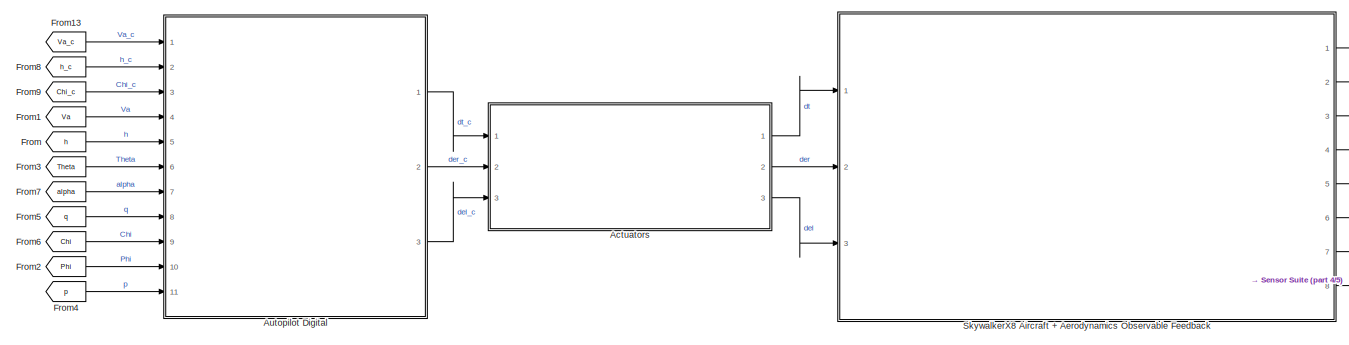
[diagram: root canvas - part 1/5, top center region]
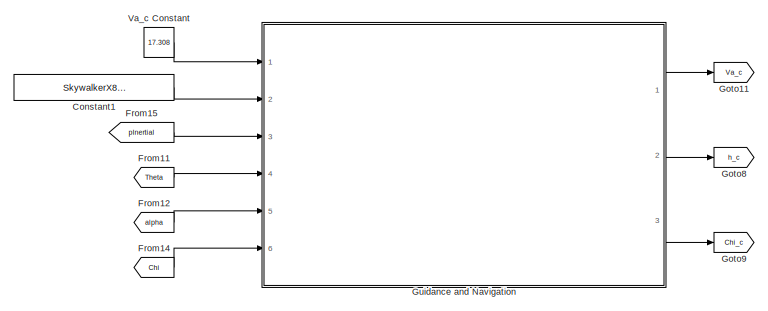
[diagram: root canvas - part 2/5, top left region]
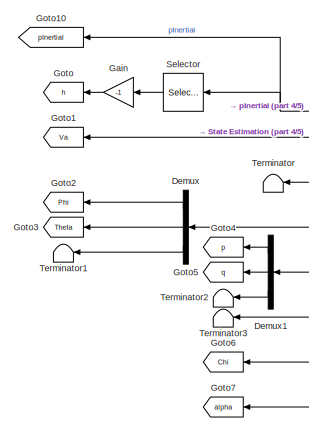
[diagram: root canvas - part 3/5, bottom left region]
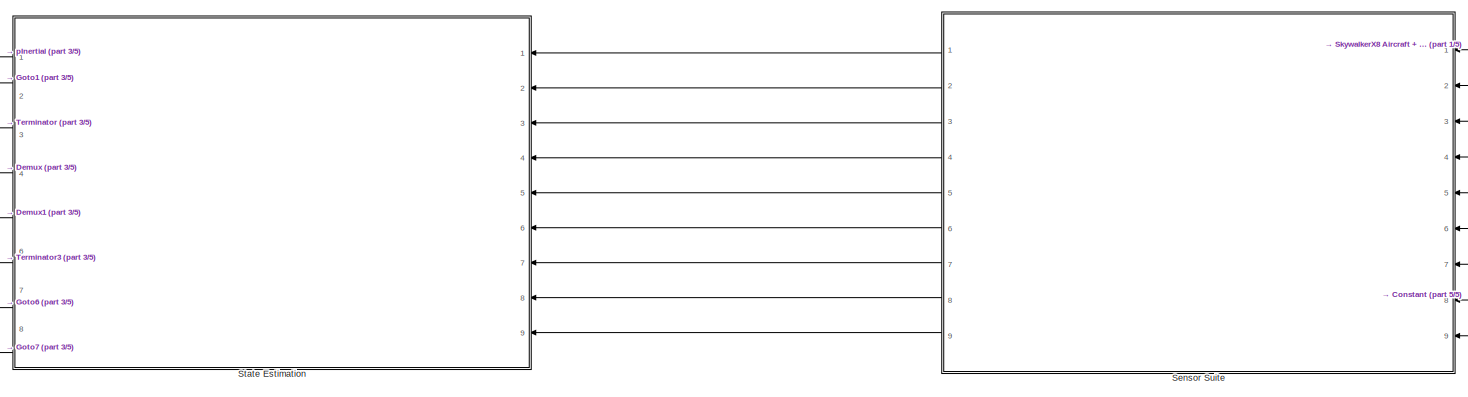
[diagram: root canvas - part 4/5, bottom center region]
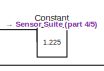
[diagram: root canvas - part 5/5, bottom right region]
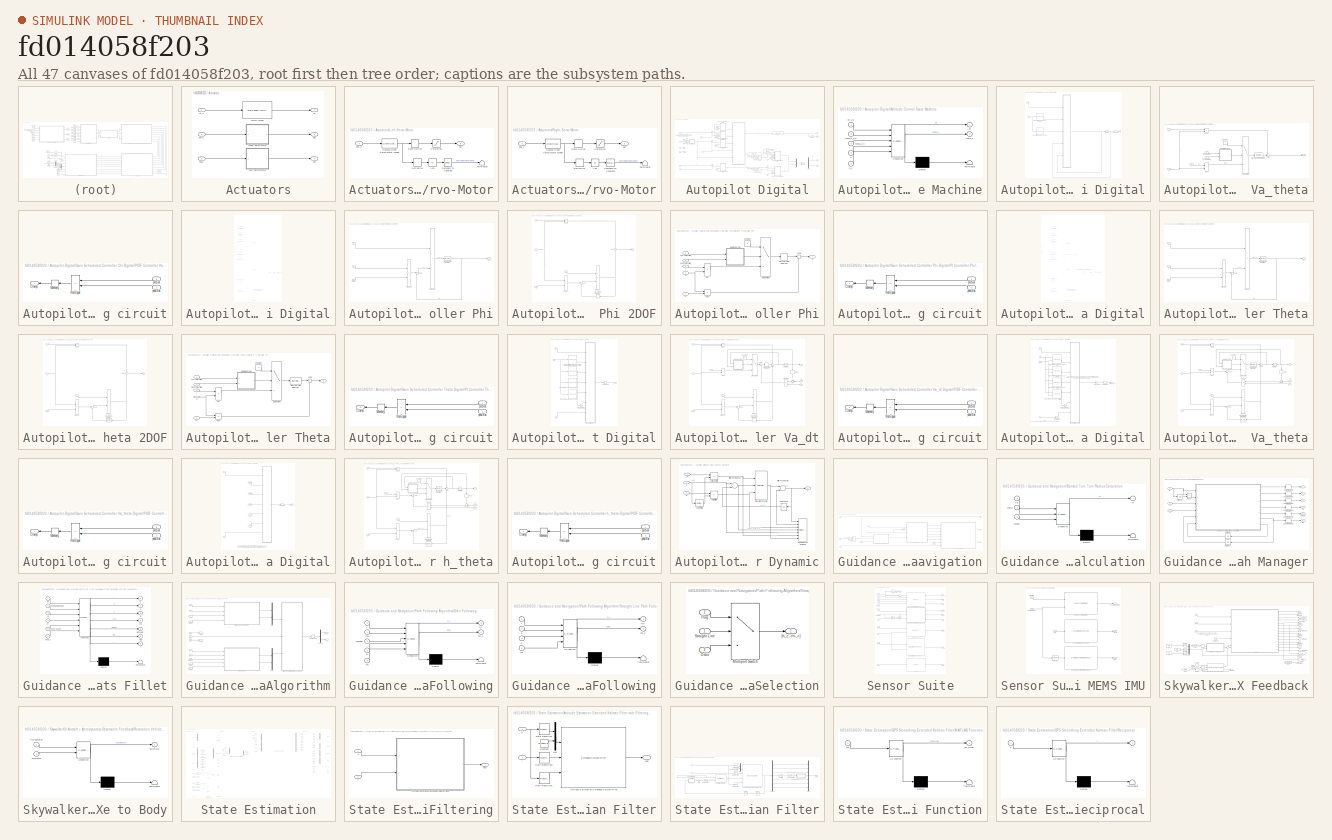
[diagram: thumbnail index - all 47 canvases of the model, root first then tree order]
MODEL slx_fd014058f203
KIND model
CONFIG AbsTol = auto
CONFIG EnableMultiTasking = off
CONFIG FixedStep = 0.001
CONFIG MaxStep = auto
CONFIG MinStep = auto
CONFIG RelTol = 1e-3
CONFIG SampleTimeConstraint = Unconstrained
CONFIG Solver = FixedStepAuto
CONFIG SolverName = FixedStepAuto
CONFIG StartTime = 0.0
CONFIG StopTime = 375
BLOCK [SubSystem] Actuators
  Ports = [3, 3]
  RequestExecContextInheritance = off
BLOCK [SubSystem] Actuators/Left Servo-Motor
  Ports = [1, 1]
  RequestExecContextInheritance = off
BLOCK [Abs] Actuators/Left Servo-Motor/Abs
  SaturateOnIntegerOverflow = off
BLOCK [Reference] Actuators/Left Servo-Motor/Compare To Constant  REF=simulink/Logic and Bit
Operations/Compare
To Constant
  Ports = [1, 1]
  SourceBlock = simulink/Logic and Bit\nOperations/Compare\nTo Constant
  SourceProductBaseCode = SL
  SourceProductName = Simulink
  SourceType = Compare To Constant
BLOCK [Derivative] Actuators/Left Servo-Motor/Derivative
BLOCK [RateLimiter] Actuators/Left Servo-Motor/Rate Limiter
  Commented = through
  FallingSlewLimit = -SkywalkerX8.Actuators.Servos.RateLimit
  InitialCondition = SkywalkerX8.InitialConditions.de*0.5 + SkywalkerX8.InitialConditions.da*0.5
  RisingSlewLimit = SkywalkerX8.Actuators.Servos.RateLimit
  SampleTimeMode = inherited
BLOCK [Saturate] Actuators/Left Servo-Motor/Saturation
  InputPortMap = u0
  LowerLimit = SkywalkerX8.Actuators.Servos.LowerSaturation
  Ports = [1, 1]
  UpperLimit = SkywalkerX8.Actuators.Servos.UpperSaturation
BLOCK [Reference] Actuators/Left Servo-Motor/Second Order Servo-Motor Model  REF=simulink_extras/Additional
Linear/State-Space
(with initial outputs)
  Ports = [1, 1]
  SourceBlock = simulink_extras/Additional\nLinear/State-Space\n(with initial outputs)
  SourceProductBaseCode = SL
  SourceProductName = Simulink
  SourceType = State-Space with Initial Outputs
BLOCK [Terminator] Actuators/Left Servo-Motor/Terminator
BLOCK [Outport] Actuators/Left Servo-Motor/del
  IconDisplay = Port number
BLOCK [Inport] Actuators/Left Servo-Motor/del_c
  IconDisplay = Port number
BLOCK [Reference] Actuators/Motor Model  REF=simulink_extras/Additional
Linear/State-Space
(with initial outputs)
  Ports = [1, 1]
  SourceBlock = simulink_extras/Additional\nLinear/State-Space\n(with initial outputs)
  SourceProductBaseCode = SL
  SourceProductName = Simulink
  SourceType = State-Space with Initial Outputs
BLOCK [SubSystem] Actuators/Right Servo-Motor
  Ports = [1, 1]
  RequestExecContextInheritance = off
BLOCK [Abs] Actuators/Right Servo-Motor/Abs
  SaturateOnIntegerOverflow = off
BLOCK [Reference] Actuators/Right Servo-Motor/Compare To Constant  REF=simulink/Logic and Bit
Operations/Compare
To Constant
  Ports = [1, 1]
  SourceBlock = simulink/Logic and Bit\nOperations/Compare\nTo Constant
  SourceProductBaseCode = SL
  SourceProductName = Simulink
  SourceType = Compare To Constant
BLOCK [Derivative] Actuators/Right Servo-Motor/Derivative
BLOCK [RateLimiter] Actuators/Right Servo-Motor/Rate Limiter
  Commented = through
  FallingSlewLimit = -SkywalkerX8.Actuators.Servos.RateLimit
  InitialCondition = SkywalkerX8.InitialConditions.de*0.5 - SkywalkerX8.InitialConditions.da*0.5
  RisingSlewLimit = SkywalkerX8.Actuators.Servos.RateLimit
  SampleTimeMode = inherited
BLOCK [Saturate] Actuators/Right Servo-Motor/Saturation
  InputPortMap = u0
  LowerLimit = SkywalkerX8.Actuators.Servos.LowerSaturation
  Ports = [1, 1]
  UpperLimit = SkywalkerX8.Actuators.Servos.UpperSaturation
BLOCK [Reference] Actuators/Right Servo-Motor/Second Order Servo-Motor Model  REF=simulink_extras/Additional
Linear/State-Space
(with initial outputs)
  Ports = [1, 1]
  SourceBlock = simulink_extras/Additional\nLinear/State-Space\n(with initial outputs)
  SourceProductBaseCode = SL
  SourceProductName = Simulink
  SourceType = State-Space with Initial Outputs
BLOCK [Terminator] Actuators/Right Servo-Motor/Terminator
BLOCK [Outport] Actuators/Right Servo-Motor/der
  IconDisplay = Port number
BLOCK [Inport] Actuators/Right Servo-Motor/der_c
  IconDisplay = Port number
BLOCK [Outport] Actuators/del
  IconDisplay = Port number
  Port = 3
BLOCK [Inport] Actuators/del_c
  IconDisplay = Port number
  Port = 3
BLOCK [Outport] Actuators/der
  IconDisplay = Port number
  Port = 2
BLOCK [Inport] Actuators/der_c
  IconDisplay = Port number
  Port = 2
BLOCK [Outport] Actuators/dt
  IconDisplay = Port number
BLOCK [Inport] Actuators/dt_c
  IconDisplay = Port number
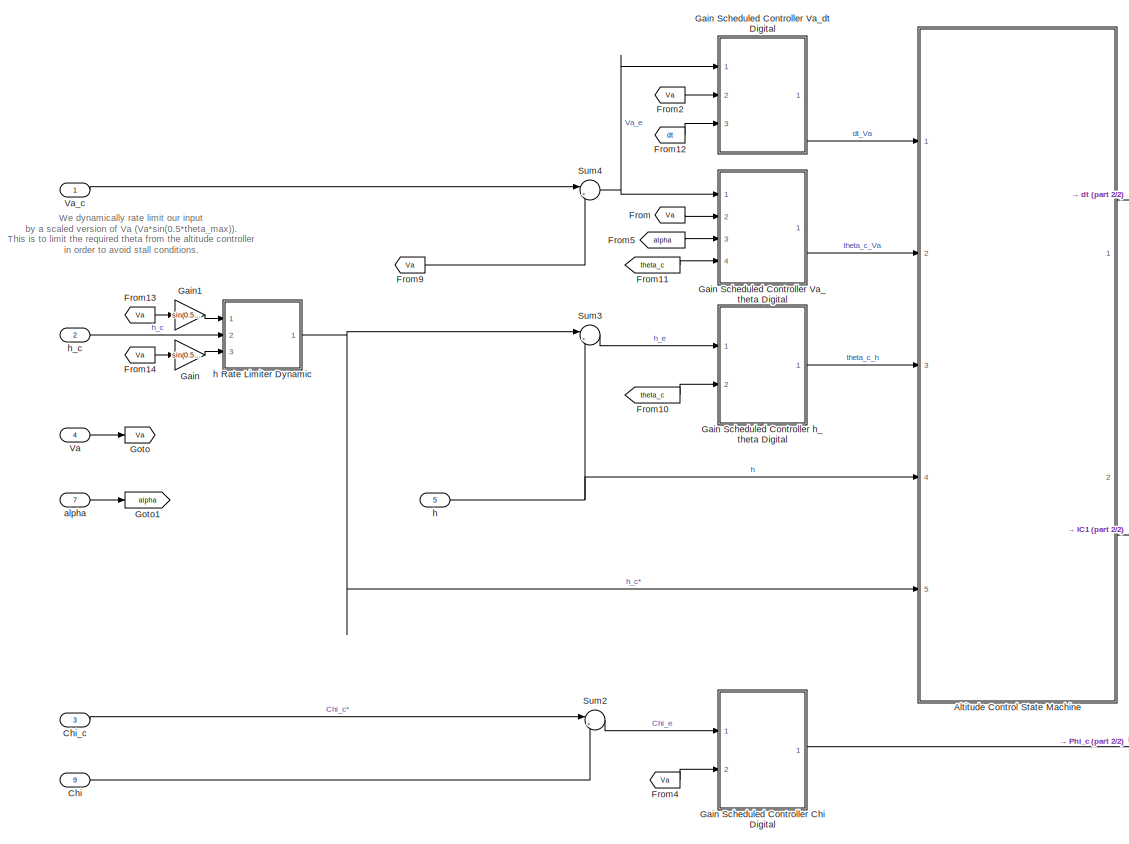
[diagram: Autopilot Digital - part 1/2, left side, full height]
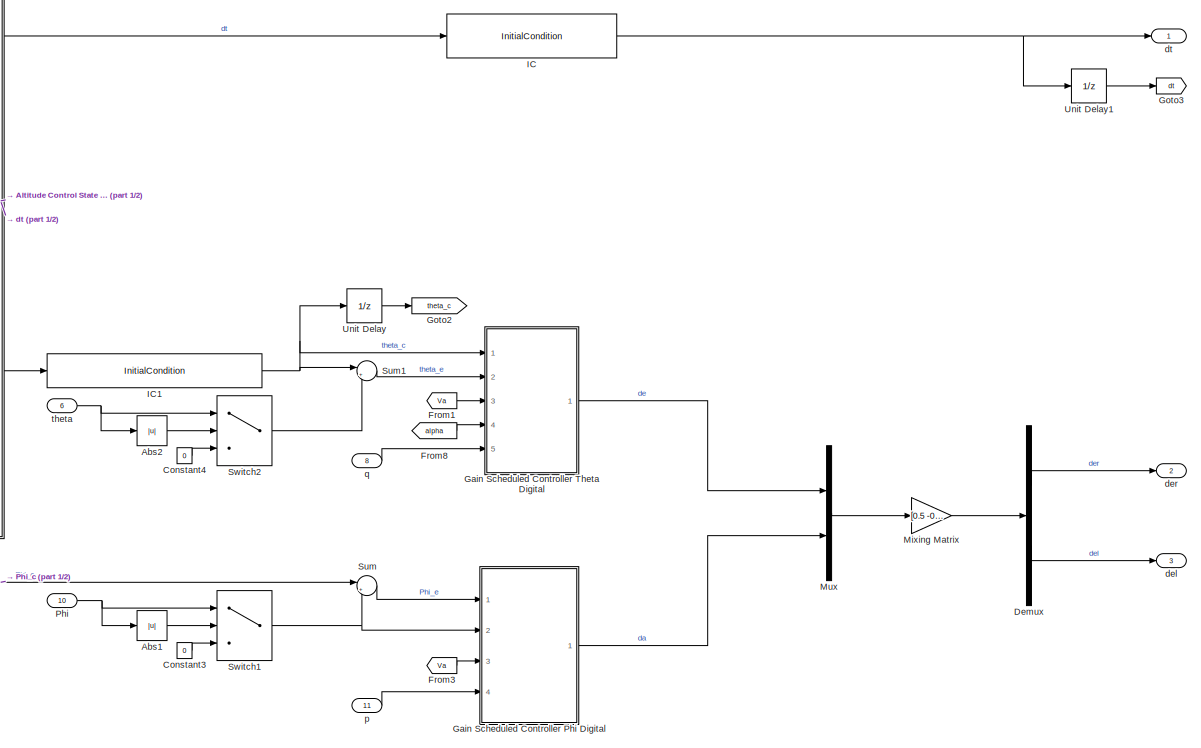
[diagram: Autopilot Digital - part 2/2, right side, full height]
BLOCK [SubSystem] Autopilot Digital
  Ports = [11, 3]
  RequestExecContextInheritance = off
BLOCK [Abs] Autopilot Digital/Abs1
  SaturateOnIntegerOverflow = off
BLOCK [Abs] Autopilot Digital/Abs2
  SaturateOnIntegerOverflow = off
BLOCK [SubSystem] Autopilot Digital/Altitude Control State Machine
  ErrorFcn = Stateflow.Translate.translate
  PermitHierarchicalResolution = ExplicitOnly
  Ports = [5, 2]
  RequestExecContextInheritance = off
  SFBlockType = Chart
  TreatAsAtomicUnit = on
BLOCK [Demux] Autopilot Digital/Altitude Control State Machine/ Demux 
  Outputs = 1
  Ports = [1, 1]
BLOCK [S-Function] Autopilot Digital/Altitude Control State Machine/ SFunction 
  EnableBusSupport = on
  FunctionName = sf_sfun
  Parameters = PreFlightBypass,h_hold,h_takeoff,hyst_frac,theta_c_takeoff
  PortCounts = [5 3]
  Ports = [5, 3]
  SFcnIsStateOwnerBlock = off
  SFunctionDeploymentMode = off
  Tag = Stateflow S-Function SkywalkerX8_GuidanceAndNavigation_Verification 3
BLOCK [Terminator] Autopilot Digital/Altitude Control State Machine/ Terminator 
BLOCK [Outport] Autopilot Digital/Altitude Control State Machine/dt
  IconDisplay = Port number
BLOCK [Inport] Autopilot Digital/Altitude Control State Machine/dt_Va
  IconDisplay = Port number
BLOCK [Inport] Autopilot Digital/Altitude Control State Machine/h
  IconDisplay = Port number
  Port = 4
BLOCK [Inport] Autopilot Digital/Altitude Control State Machine/h_c
  IconDisplay = Port number
  Port = 5
BLOCK [Outport] Autopilot Digital/Altitude Control State Machine/theta_c
  IconDisplay = Port number
  Port = 2
BLOCK [Inport] Autopilot Digital/Altitude Control State Machine/theta_c_Va
  IconDisplay = Port number
  Port = 2
BLOCK [Inport] Autopilot Digital/Altitude Control State Machine/theta_c_h
  IconDisplay = Port number
  Port = 3
BLOCK [Inport] Autopilot Digital/Chi
  IconDisplay = Port number
  Port = 9
BLOCK [Inport] Autopilot Digital/Chi_c
  IconDisplay = Port number
  Port = 3
BLOCK [Constant] Autopilot Digital/Constant3
  Value = 0
BLOCK [Constant] Autopilot Digital/Constant4
  Value = 0
BLOCK [Demux] Autopilot Digital/Demux
  DisplayOption = bar
  Outputs = 2
  Ports = [1, 2]
BLOCK [From] Autopilot Digital/From
  GotoTag = Va
BLOCK [From] Autopilot Digital/From1
  GotoTag = Va
BLOCK [From] Autopilot Digital/From10
  GotoTag = theta_c
BLOCK [From] Autopilot Digital/From11
  GotoTag = theta_c
BLOCK [From] Autopilot Digital/From12
  GotoTag = dt
BLOCK [From] Autopilot Digital/From13
  GotoTag = Va
BLOCK [From] Autopilot Digital/From14
  GotoTag = Va
BLOCK [From] Autopilot Digital/From2
  GotoTag = Va
BLOCK [From] Autopilot Digital/From3
  GotoTag = Va
BLOCK [From] Autopilot Digital/From4
  GotoTag = Va
BLOCK [From] Autopilot Digital/From5
  GotoTag = alpha
BLOCK [From] Autopilot Digital/From8
  GotoTag = alpha
BLOCK [From] Autopilot Digital/From9
  GotoTag = Va
BLOCK [Gain] Autopilot Digital/Gain
  Gain = sin(0.5*SkywalkerX8.Control.Longitudinal.altController.lowerSaturationThetaC)
  OutDataTypeStr = Inherit: Inherit via internal rule
  ParamDataTypeStr = Inherit: Inherit via internal rule
  SaturateOnIntegerOverflow = off
BLOCK [SubSystem] Autopilot Digital/Gain Scheduled Controller Chi Digital
  Ports = [2, 1]
  RequestExecContextInheritance = off
BLOCK [Inport] Autopilot Digital/Gain Scheduled Controller Chi Digital/Chi_e
  IconDisplay = Port number
BLOCK [Lookup_n-D] Autopilot Digital/Gain Scheduled Controller Chi Digital/PIDF Controller Chi Ki 2D Lookup Table
  BreakpointsForDimension1 = SkywalkerX8.Control.Lateral.SchedulingVariables.VaArray
  BreakpointsForDimension2 = SkywalkerX8.Control.Longitudinal.SchedulingVariables.alphaArray
  InternalRulePriority = Speed
  NumberOfTableDimensions = 1
  Ports = [1, 1]
  RndMeth = Simplest
  Table = SkywalkerX8.Control.Lateral.ChiController.Digital.KiChi
BLOCK [Lookup_n-D] Autopilot Digital/Gain Scheduled Controller Chi Digital/PIDF Controller Chi Kp 2D Lookup Table
  BreakpointsForDimension1 = SkywalkerX8.Control.Lateral.SchedulingVariables.VaArray
  BreakpointsForDimension2 = SkywalkerX8.Control.Longitudinal.SchedulingVariables.alphaArray
  InternalRulePriority = Speed
  NumberOfTableDimensions = 1
  Ports = [1, 1]
  RndMeth = Simplest
  Table = SkywalkerX8.Control.Lateral.ChiController.Digital.KpChi
BLOCK [SubSystem] Autopilot Digital/Gain Scheduled Controller Chi Digital/PIDF Controller Va_theta
  Ports = [5, 1]
  RequestExecContextInheritance = off
BLOCK [Switch] Autopilot Digital/Gain Scheduled Controller Chi Digital/PIDF Controller Va_theta/Clamp Switch
  Criteria = u2 ~= 0
  InputSameDT = off
  SaturateOnIntegerOverflow = off
BLOCK [SubSystem] Autopilot Digital/Gain Scheduled Controller Chi Digital/PIDF Controller Va_theta/Clamping circuit
  Ports = [2, 1]
  RequestExecContextInheritance = off
BLOCK [Outport] Autopilot Digital/Gain Scheduled Controller Chi Digital/PIDF Controller Va_theta/Clamping circuit/Clamp
  DisableCoverage = on
  IconDisplay = Port number
BLOCK [Memory] Autopilot Digital/Gain Scheduled Controller Chi Digital/PIDF Controller Va_theta/Clamping circuit/Memory
  DisableCoverage = on
BLOCK [RelationalOperator] Autopilot Digital/Gain Scheduled Controller Chi Digital/PIDF Controller Va_theta/Clamping circuit/NotEqual
  DisableCoverage = on
  Operator = ~=
  Ports = [2, 1]
BLOCK [Inport] Autopilot Digital/Gain Scheduled Controller Chi Digital/PIDF Controller Va_theta/Clamping circuit/postSat
  DisableCoverage = on
  IconDisplay = Port number
  Port = 2
BLOCK [Inport] Autopilot Digital/Gain Scheduled Controller Chi Digital/PIDF Controller Va_theta/Clamping circuit/preSat
  DisableCoverage = on
  IconDisplay = Port number
BLOCK [Constant] Autopilot Digital/Gain Scheduled Controller Chi Digital/PIDF Controller Va_theta/Constant
  Value = 0
BLOCK [DiscreteIntegrator] Autopilot Digital/Gain Scheduled Controller Chi Digital/PIDF Controller Va_theta/Discrete-Time Integrator
  ICPrevOutput = DiscIntNeverNeededParam
  ICPrevScaledInput = DiscIntNeverNeededParam
  InitialCondition = SkywalkerX8.InitialConditions.PhiThetaPsi(1)
  InitialConditionSetting = Auto
  IntegratorMethod = Integration: Trapezoidal
  Ports = [1, 1]
  SampleTime = SkywalkerX8.Control.Lateral.ChiController.Digital.SampleTime
BLOCK [Inport] Autopilot Digital/Gain Scheduled Controller Chi Digital/PIDF Controller Va_theta/I
  IconDisplay = Port number
  Port = 3
BLOCK [Product] Autopilot Digital/Gain Scheduled Controller Chi Digital/PIDF Controller Va_theta/IOut
  DisableCoverage = on
  InputSameDT = off
  OutDataTypeStr = Inherit: Inherit via internal rule
  Ports = [2, 1]
  RndMeth = Floor
  SaturateOnIntegerOverflow = off
BLOCK [Inport] Autopilot Digital/Gain Scheduled Controller Chi Digital/PIDF Controller Va_theta/P
  IconDisplay = Port number
  Port = 2
BLOCK [Product] Autopilot Digital/Gain Scheduled Controller Chi Digital/PIDF Controller Va_theta/POut
  InputSameDT = off
  OutDataTypeStr = Inherit: Inherit via internal rule
  Ports = [2, 1]
  RndMeth = Floor
  SaturateOnIntegerOverflow = off
BLOCK [Inport] Autopilot Digital/Gain Scheduled Controller Chi Digital/PIDF Controller Va_theta/Post-Saturation
  IconDisplay = Port number
  Port = 4
BLOCK [Inport] Autopilot Digital/Gain Scheduled Controller Chi Digital/PIDF Controller Va_theta/Pre-Saturation
  IconDisplay = Port number
  Port = 5
BLOCK [Sum] Autopilot Digital/Gain Scheduled Controller Chi Digital/PIDF Controller Va_theta/Sum2
  IconShape = round
  InputSameDT = off
  Inputs = ++|
  OutDataTypeStr = Inherit: Inherit via internal rule
  Ports = [2, 1]
  SaturateOnIntegerOverflow = off
BLOCK [Inport] Autopilot Digital/Gain Scheduled Controller Chi Digital/PIDF Controller Va_theta/u
  IconDisplay = Port number
BLOCK [Outport] Autopilot Digital/Gain Scheduled Controller Chi Digital/PIDF Controller Va_theta/y
  IconDisplay = Port number
  InitialOutput = 0
BLOCK [Outport] Autopilot Digital/Gain Scheduled Controller Chi Digital/Phi_c
  IconDisplay = Port number
BLOCK [Saturate] Autopilot Digital/Gain Scheduled Controller Chi Digital/Saturation
  InputPortMap = u0
  LowerLimit = SkywalkerX8.Control.Lateral.ChiController.lowerSaturationPhiC
  Ports = [1, 1]
  UpperLimit = SkywalkerX8.Control.Lateral.ChiController.upperSaturationPhiC
BLOCK [Inport] Autopilot Digital/Gain Scheduled Controller Chi Digital/Va
  IconDisplay = Port number
  Port = 2
BLOCK [ZeroOrderHold] Autopilot Digital/Gain Scheduled Controller Chi Digital/Zero-Order Hold
  SampleTime = SkywalkerX8.Control.Lateral.ChiController.Digital.SampleTime
BLOCK [SubSystem] Autopilot Digital/Gain Scheduled Controller Phi Digital
  Ports = [4, 1]
  RequestExecContextInheritance = off
BLOCK [SubSystem] Autopilot Digital/Gain Scheduled Controller Phi Digital/DF Controller Phi
  Ports = [3, 1]
  RequestExecContextInheritance = off
BLOCK [Inport] Autopilot Digital/Gain Scheduled Controller Phi Digital/DF Controller Phi/D
  IconDisplay = Port number
  Port = 2
BLOCK [DiscreteIntegrator] Autopilot Digital/Gain Scheduled Controller Phi Digital/DF Controller Phi/Discrete-Time Integrator
  ICPrevOutput = DiscIntNeverNeededParam
  ICPrevScaledInput = DiscIntNeverNeededParam
  InitialConditionSetting = Auto
  Ports = [1, 1]
  SampleTime = SkywalkerX8.Control.Lateral.PhiController.Digital.SampleTime
BLOCK [Inport] Autopilot Digital/Gain Scheduled Controller Phi Digital/DF Controller Phi/N
  IconDisplay = Port number
BLOCK [Product] Autopilot Digital/Gain Scheduled Controller Phi Digital/DF Controller Phi/Product
  InputSameDT = off
  OutDataTypeStr = Inherit: Inherit via internal rule
  Ports = [2, 1]
  RndMeth = Floor
  SaturateOnIntegerOverflow = off
BLOCK [Product] Autopilot Digital/Gain Scheduled Controller Phi Digital/DF Controller Phi/Product1
  InputSameDT = off
  OutDataTypeStr = Inherit: Inherit via internal rule
  Ports = [2, 1]
  RndMeth = Floor
  SaturateOnIntegerOverflow = off
BLOCK [Sum] Autopilot Digital/Gain Scheduled Controller Phi Digital/DF Controller Phi/Sum
  IconShape = round
  InputSameDT = off
  Inputs = |+-
  OutDataTypeStr = Inherit: Inherit via internal rule
  Ports = [2, 1]
  SaturateOnIntegerOverflow = off
BLOCK [Outport] Autopilot Digital/Gain Scheduled Controller Phi Digital/DF Controller Phi/da*
  IconDisplay = Port number
BLOCK [Inport] Autopilot Digital/Gain Scheduled Controller Phi Digital/DF Controller Phi/du//dt
  IconDisplay = Port number
  Port = 3
BLOCK [SubSystem] Autopilot Digital/Gain Scheduled Controller Phi Digital/PDF Controller Phi 2DOF
  Ports = [4, 1]
  RequestExecContextInheritance = off
BLOCK [Lookup_n-D] Autopilot Digital/Gain Scheduled Controller Phi Digital/PDF Controller Phi 2DOF Kd 2D Lookup Table
  BreakpointsForDimension1 = SkywalkerX8.Control.Lateral.SchedulingVariables.VaArray
  BreakpointsForDimension2 = SkywalkerX8.Control.Longitudinal.SchedulingVariables.alphaArray
  InternalRulePriority = Speed
  NumberOfTableDimensions = 1
  Ports = [1, 1]
  RndMeth = Simplest
  Table = SkywalkerX8.Control.Lateral.PhiController.Digital.KdPhi2DOF
BLOCK [Lookup_n-D] Autopilot Digital/Gain Scheduled Controller Phi Digital/PDF Controller Phi 2DOF Kp 2D Lookup Table
  BreakpointsForDimension1 = SkywalkerX8.Control.Lateral.SchedulingVariables.VaArray
  BreakpointsForDimension2 = SkywalkerX8.Control.Longitudinal.SchedulingVariables.alphaArray
  InternalRulePriority = Speed
  NumberOfTableDimensions = 1
  Ports = [1, 1]
  RndMeth = Simplest
  Table = SkywalkerX8.Control.Lateral.PhiController.Digital.KpPhi2DOF
BLOCK [Lookup_n-D] Autopilot Digital/Gain Scheduled Controller Phi Digital/PDF Controller Phi 2DOF N 2D Lookup Table
  BreakpointsForDimension1 = SkywalkerX8.Control.Lateral.SchedulingVariables.VaArray
  BreakpointsForDimension2 = SkywalkerX8.Control.Longitudinal.SchedulingVariables.alphaArray
  InternalRulePriority = Speed
  NumberOfTableDimensions = 1
  Ports = [1, 1]
  RndMeth = Simplest
  Table = SkywalkerX8.Control.Lateral.PhiController.Digital.NPhi2DOF
BLOCK [Inport] Autopilot Digital/Gain Scheduled Controller Phi Digital/PDF Controller Phi 2DOF/D
  IconDisplay = Port number
  Port = 3
BLOCK [DiscreteIntegrator] Autopilot Digital/Gain Scheduled Controller Phi Digital/PDF Controller Phi 2DOF/Discrete-Time Integrator
  ICPrevOutput = DiscIntNeverNeededParam
  ICPrevScaledInput = DiscIntNeverNeededParam
  InitialConditionSetting = Auto
  Ports = [1, 1]
  SampleTime = SkywalkerX8.Control.Lateral.PhiController.Digital.SampleTime
BLOCK [Inport] Autopilot Digital/Gain Scheduled Controller Phi Digital/PDF Controller Phi 2DOF/N
  IconDisplay = Port number
  Port = 4
BLOCK [Inport] Autopilot Digital/Gain Scheduled Controller Phi Digital/PDF Controller Phi 2DOF/P
  IconDisplay = Port number
  Port = 2
BLOCK [Product] Autopilot Digital/Gain Scheduled Controller Phi Digital/PDF Controller Phi 2DOF/POut
  InputSameDT = off
  OutDataTypeStr = Inherit: Inherit via internal rule
  Ports = [2, 1]
  RndMeth = Floor
  SaturateOnIntegerOverflow = off
BLOCK [Product] Autopilot Digital/Gain Scheduled Controller Phi Digital/PDF Controller Phi 2DOF/Product
  InputSameDT = off
  OutDataTypeStr = Inherit: Inherit via internal rule
  Ports = [2, 1]
  RndMeth = Floor
  SaturateOnIntegerOverflow = off
BLOCK [Product] Autopilot Digital/Gain Scheduled Controller Phi Digital/PDF Controller Phi 2DOF/Product1
  InputSameDT = off
  OutDataTypeStr = Inherit: Inherit via internal rule
  Ports = [2, 1]
  RndMeth = Floor
  SaturateOnIntegerOverflow = off
BLOCK [Sum] Autopilot Digital/Gain Scheduled Controller Phi Digital/PDF Controller Phi 2DOF/Sum
  IconShape = round
  InputSameDT = off
  Inputs = |+-
  OutDataTypeStr = Inherit: Inherit via internal rule
  Ports = [2, 1]
  SaturateOnIntegerOverflow = off
BLOCK [Sum] Autopilot Digital/Gain Scheduled Controller Phi Digital/PDF Controller Phi 2DOF/Sum2
  IconShape = round
  InputSameDT = off
  OutDataTypeStr = Inherit: Inherit via internal rule
  Ports = [2, 1]
  SaturateOnIntegerOverflow = off
BLOCK [Inport] Autopilot Digital/Gain Scheduled Controller Phi Digital/PDF Controller Phi 2DOF/u
  IconDisplay = Port number
BLOCK [Outport] Autopilot Digital/Gain Scheduled Controller Phi Digital/PDF Controller Phi 2DOF/y
  IconDisplay = Port number
  InitialOutput = 0
BLOCK [SubSystem] Autopilot Digital/Gain Scheduled Controller Phi Digital/PI Controller Phi
  Ports = [5, 1]
  RequestExecContextInheritance = off
BLOCK [Switch] Autopilot Digital/Gain Scheduled Controller Phi Digital/PI Controller Phi/Clamp Switch
  Criteria = u2 ~= 0
  InputSameDT = off
  SaturateOnIntegerOverflow = off
BLOCK [SubSystem] Autopilot Digital/Gain Scheduled Controller Phi Digital/PI Controller Phi/Clamping circuit
  Ports = [2, 1]
  RequestExecContextInheritance = off
BLOCK [Outport] Autopilot Digital/Gain Scheduled Controller Phi Digital/PI Controller Phi/Clamping circuit/Clamp
  DisableCoverage = on
  IconDisplay = Port number
BLOCK [Memory] Autopilot Digital/Gain Scheduled Controller Phi Digital/PI Controller Phi/Clamping circuit/Memory
  DisableCoverage = on
BLOCK [RelationalOperator] Autopilot Digital/Gain Scheduled Controller Phi Digital/PI Controller Phi/Clamping circuit/NotEqual
  DisableCoverage = on
  Operator = ~=
  Ports = [2, 1]
BLOCK [Inport] Autopilot Digital/Gain Scheduled Controller Phi Digital/PI Controller Phi/Clamping circuit/postSat
  DisableCoverage = on
  IconDisplay = Port number
  Port = 2
BLOCK [Inport] Autopilot Digital/Gain Scheduled Controller Phi Digital/PI Controller Phi/Clamping circuit/preSat
  DisableCoverage = on
  IconDisplay = Port number
BLOCK [Constant] Autopilot Digital/Gain Scheduled Controller Phi Digital/PI Controller Phi/Constant
  Value = 0
BLOCK [DiscreteIntegrator] Autopilot Digital/Gain Scheduled Controller Phi Digital/PI Controller Phi/Discrete-Time Integrator
  ICPrevOutput = DiscIntNeverNeededParam
  ICPrevScaledInput = DiscIntNeverNeededParam
  InitialCondition = SkywalkerX8.InitialConditions.da
  InitialConditionSetting = Auto
  IntegratorMethod = Integration: Trapezoidal
  Ports = [1, 1]
  SampleTime = SkywalkerX8.Control.Lateral.PhiController.Digital.SampleTime
BLOCK [Inport] Autopilot Digital/Gain Scheduled Controller Phi Digital/PI Controller Phi/I
  IconDisplay = Port number
  Port = 3
BLOCK [Product] Autopilot Digital/Gain Scheduled Controller Phi Digital/PI Controller Phi/IOut
  DisableCoverage = on
  InputSameDT = off
  OutDataTypeStr = Inherit: Inherit via internal rule
  Ports = [2, 1]
  RndMeth = Floor
  SaturateOnIntegerOverflow = off
BLOCK [Inport] Autopilot Digital/Gain Scheduled Controller Phi Digital/PI Controller Phi/P
  IconDisplay = Port number
  Port = 2
BLOCK [Product] Autopilot Digital/Gain Scheduled Controller Phi Digital/PI Controller Phi/POut
  InputSameDT = off
  OutDataTypeStr = Inherit: Inherit via internal rule
  Ports = [2, 1]
  RndMeth = Floor
  SaturateOnIntegerOverflow = off
BLOCK [Inport] Autopilot Digital/Gain Scheduled Controller Phi Digital/PI Controller Phi/Post-Saturation
  IconDisplay = Port number
  Port = 4
BLOCK [Inport] Autopilot Digital/Gain Scheduled Controller Phi Digital/PI Controller Phi/Pre-Saturation
  IconDisplay = Port number
  Port = 5
BLOCK [Sum] Autopilot Digital/Gain Scheduled Controller Phi Digital/PI Controller Phi/Sum2
  IconShape = round
  InputSameDT = off
  Inputs = |++
  OutDataTypeStr = Inherit: Inherit via internal rule
  Ports = [2, 1]
  SaturateOnIntegerOverflow = off
BLOCK [Inport] Autopilot Digital/Gain Scheduled Controller Phi Digital/PI Controller Phi/u
  IconDisplay = Port number
BLOCK [Outport] Autopilot Digital/Gain Scheduled Controller Phi Digital/PI Controller Phi/y
  IconDisplay = Port number
  InitialOutput = 0
BLOCK [Lookup_n-D] Autopilot Digital/Gain Scheduled Controller Phi Digital/PIDF Controller Phi Kd 2D Lookup Table
  BreakpointsForDimension1 = SkywalkerX8.Control.Lateral.SchedulingVariables.VaArray
  BreakpointsForDimension2 = SkywalkerX8.Control.Longitudinal.SchedulingVariables.alphaArray
  InternalRulePriority = Speed
  NumberOfTableDimensions = 1
  Ports = [1, 1]
  RndMeth = Simplest
  Table = SkywalkerX8.Control.Lateral.PhiController.Digital.KdPhi
BLOCK [Lookup_n-D] Autopilot Digital/Gain Scheduled Controller Phi Digital/PIDF Controller Phi Ki 2D Lookup Table
  BreakpointsForDimension1 = SkywalkerX8.Control.Lateral.SchedulingVariables.VaArray
  BreakpointsForDimension2 = SkywalkerX8.Control.Longitudinal.SchedulingVariables.alphaArray
  InternalRulePriority = Speed
  NumberOfTableDimensions = 1
  Ports = [1, 1]
  RndMeth = Simplest
  Table = SkywalkerX8.Control.Lateral.PhiController.Digital.KiPhi
BLOCK [Lookup_n-D] Autopilot Digital/Gain Scheduled Controller Phi Digital/PIDF Controller Phi Kp 2D Lookup Table
  BreakpointsForDimension1 = SkywalkerX8.Control.Lateral.SchedulingVariables.VaArray
  BreakpointsForDimension2 = SkywalkerX8.Control.Longitudinal.SchedulingVariables.alphaArray
  InternalRulePriority = Speed
  NumberOfTableDimensions = 1
  Ports = [1, 1]
  RndMeth = Simplest
  Table = SkywalkerX8.Control.Lateral.PhiController.Digital.KpPhi
BLOCK [Lookup_n-D] Autopilot Digital/Gain Scheduled Controller Phi Digital/PIDF Controller Phi N 2D Lookup Table
  BreakpointsForDimension1 = SkywalkerX8.Control.Lateral.SchedulingVariables.VaArray
  BreakpointsForDimension2 = SkywalkerX8.Control.Longitudinal.SchedulingVariables.alphaArray
  InternalRulePriority = Speed
  NumberOfTableDimensions = 1
  Ports = [1, 1]
  RndMeth = Simplest
  Table = SkywalkerX8.Control.Lateral.PhiController.Digital.NPhi
BLOCK [Inport] Autopilot Digital/Gain Scheduled Controller Phi Digital/Phi
  IconDisplay = Port number
  Port = 2
BLOCK [Inport] Autopilot Digital/Gain Scheduled Controller Phi Digital/Phi_e
  IconDisplay = Port number
BLOCK [Saturate] Autopilot Digital/Gain Scheduled Controller Phi Digital/Saturation
  InputPortMap = u0
  LowerLimit = SkywalkerX8.Control.Lateral.PhiController.lowerSaturationDa
  Ports = [1, 1]
  UpperLimit = SkywalkerX8.Control.Lateral.PhiController.upperSaturationDa
BLOCK [Sum] Autopilot Digital/Gain Scheduled Controller Phi Digital/Sum1
  IconShape = round
  InputSameDT = off
  Inputs = +++|
  OutDataTypeStr = Inherit: Inherit via internal rule
  Ports = [3, 1]
  SaturateOnIntegerOverflow = off
BLOCK [Inport] Autopilot Digital/Gain Scheduled Controller Phi Digital/Va
  IconDisplay = Port number
  Port = 3
BLOCK [ZeroOrderHold] Autopilot Digital/Gain Scheduled Controller Phi Digital/Zero-Order Hold
  SampleTime = SkywalkerX8.Control.Lateral.PhiController.Digital.SampleTime
BLOCK [Outport] Autopilot Digital/Gain Scheduled Controller Phi Digital/da
  IconDisplay = Port number
BLOCK [Inport] Autopilot Digital/Gain Scheduled Controller Phi Digital/p
  IconDisplay = Port number
  Port = 4
BLOCK [SubSystem] Autopilot Digital/Gain Scheduled Controller Theta Digital
  Ports = [5, 1]
  RequestExecContextInheritance = off
BLOCK [SubSystem] Autopilot Digital/Gain Scheduled Controller Theta Digital/DF Controller Theta
  Ports = [3, 1]
  RequestExecContextInheritance = off
BLOCK [Inport] Autopilot Digital/Gain Scheduled Controller Theta Digital/DF Controller Theta/D
  IconDisplay = Port number
  Port = 2
BLOCK [DiscreteIntegrator] Autopilot Digital/Gain Scheduled Controller Theta Digital/DF Controller Theta/Discrete-Time Integrator
  ICPrevOutput = DiscIntNeverNeededParam
  ICPrevScaledInput = DiscIntNeverNeededParam
  InitialConditionSetting = Auto
  Ports = [1, 1]
  SampleTime = SkywalkerX8.Control.Longitudinal.thetaController.Digital.SampleTime
BLOCK [Inport] Autopilot Digital/Gain Scheduled Controller Theta Digital/DF Controller Theta/N
  IconDisplay = Port number
BLOCK [Product] Autopilot Digital/Gain Scheduled Controller Theta Digital/DF Controller Theta/Product
  InputSameDT = off
  OutDataTypeStr = Inherit: Inherit via internal rule
  Ports = [2, 1]
  RndMeth = Floor
  SaturateOnIntegerOverflow = off
BLOCK [Product] Autopilot Digital/Gain Scheduled Controller Theta Digital/DF Controller Theta/Product1
  InputSameDT = off
  OutDataTypeStr = Inherit: Inherit via internal rule
  Ports = [2, 1]
  RndMeth = Floor
  SaturateOnIntegerOverflow = off
BLOCK [Sum] Autopilot Digital/Gain Scheduled Controller Theta Digital/DF Controller Theta/Sum
  IconShape = round
  InputSameDT = off
  Inputs = |+-
  OutDataTypeStr = Inherit: Inherit via internal rule
  Ports = [2, 1]
  SaturateOnIntegerOverflow = off
BLOCK [Outport] Autopilot Digital/Gain Scheduled Controller Theta Digital/DF Controller Theta/de*
  IconDisplay = Port number
BLOCK [Inport] Autopilot Digital/Gain Scheduled Controller Theta Digital/DF Controller Theta/du//dt
  IconDisplay = Port number
  Port = 3
BLOCK [SubSystem] Autopilot Digital/Gain Scheduled Controller Theta Digital/PDF Controller Theta 2DOF
  Ports = [4, 1]
  RequestExecContextInheritance = off
BLOCK [Inport] Autopilot Digital/Gain Scheduled Controller Theta Digital/PDF Controller Theta 2DOF/D
  IconDisplay = Port number
  Port = 3
BLOCK [DiscreteIntegrator] Autopilot Digital/Gain Scheduled Controller Theta Digital/PDF Controller Theta 2DOF/Discrete-Time Integrator
  ICPrevOutput = DiscIntNeverNeededParam
  ICPrevScaledInput = DiscIntNeverNeededParam
  InitialCondition = SkywalkerX8.InitialConditions.ThetaController.RefController.Derivative
  InitialConditionSetting = Auto
  Ports = [1, 1]
  SampleTime = SkywalkerX8.Control.Longitudinal.thetaController.Digital.SampleTime
BLOCK [Inport] Autopilot Digital/Gain Scheduled Controller Theta Digital/PDF Controller Theta 2DOF/N
  IconDisplay = Port number
  Port = 4
BLOCK [Inport] Autopilot Digital/Gain Scheduled Controller Theta Digital/PDF Controller Theta 2DOF/P
  IconDisplay = Port number
  Port = 2
BLOCK [Product] Autopilot Digital/Gain Scheduled Controller Theta Digital/PDF Controller Theta 2DOF/POut
  InputSameDT = off
  OutDataTypeStr = Inherit: Inherit via internal rule
  Ports = [2, 1]
  RndMeth = Floor
  SaturateOnIntegerOverflow = off
BLOCK [Product] Autopilot Digital/Gain Scheduled Controller Theta Digital/PDF Controller Theta 2DOF/Product
  InputSameDT = off
  OutDataTypeStr = Inherit: Inherit via internal rule
  Ports = [2, 1]
  RndMeth = Floor
  SaturateOnIntegerOverflow = off
BLOCK [Product] Autopilot Digital/Gain Scheduled Controller Theta Digital/PDF Controller Theta 2DOF/Product1
  InputSameDT = off
  OutDataTypeStr = Inherit: Inherit via internal rule
  Ports = [2, 1]
  RndMeth = Floor
  SaturateOnIntegerOverflow = off
BLOCK [Sum] Autopilot Digital/Gain Scheduled Controller Theta Digital/PDF Controller Theta 2DOF/Sum
  IconShape = round
  InputSameDT = off
  Inputs = |+-
  OutDataTypeStr = Inherit: Inherit via internal rule
  Ports = [2, 1]
  SaturateOnIntegerOverflow = off
BLOCK [Sum] Autopilot Digital/Gain Scheduled Controller Theta Digital/PDF Controller Theta 2DOF/Sum2
  IconShape = round
  InputSameDT = off
  OutDataTypeStr = Inherit: Inherit via internal rule
  Ports = [2, 1]
  SaturateOnIntegerOverflow = off
BLOCK [Inport] Autopilot Digital/Gain Scheduled Controller Theta Digital/PDF Controller Theta 2DOF/u
  IconDisplay = Port number
BLOCK [Outport] Autopilot Digital/Gain Scheduled Controller Theta Digital/PDF Controller Theta 2DOF/y
  IconDisplay = Port number
  InitialOutput = 0
BLOCK [Lookup_n-D] Autopilot Digital/Gain Scheduled Controller Theta Digital/PDF Controller theta 2DOF Kd 2D Lookup Table
  BeginIndexSearchUsingPreviousIndexResult = on
  BreakpointsForDimension1 = SkywalkerX8.Control.Longitudinal.SchedulingVariables.VaArray
  BreakpointsForDimension2 = SkywalkerX8.Control.Longitudinal.SchedulingVariables.alphaArray
  InternalRulePriority = Speed
  Ports = [2, 1]
  RndMeth = Simplest
  Table = SkywalkerX8.Control.Longitudinal.thetaController.Digital.KdTheta2DOF
BLOCK [Lookup_n-D] Autopilot Digital/Gain Scheduled Controller Theta Digital/PDF Controller theta 2DOF Kp 2D Lookup Table
  BreakpointsForDimension1 = SkywalkerX8.Control.Longitudinal.SchedulingVariables.VaArray
  BreakpointsForDimension2 = SkywalkerX8.Control.Longitudinal.SchedulingVariables.alphaArray
  InternalRulePriority = Speed
  Ports = [2, 1]
  RndMeth = Simplest
  Table = SkywalkerX8.Control.Longitudinal.thetaController.Digital.KpTheta2DOF
BLOCK [Lookup_n-D] Autopilot Digital/Gain Scheduled Controller Theta Digital/PDF Controller theta 2DOF N 2D Lookup Table
  BreakpointsForDimension1 = SkywalkerX8.Control.Longitudinal.SchedulingVariables.VaArray
  BreakpointsForDimension2 = SkywalkerX8.Control.Longitudinal.SchedulingVariables.alphaArray
  InternalRulePriority = Speed
  Ports = [2, 1]
  RndMeth = Simplest
  Table = SkywalkerX8.Control.Longitudinal.thetaController.Digital.NTheta2DOF
BLOCK [SubSystem] Autopilot Digital/Gain Scheduled Controller Theta Digital/PI Controller Theta
  Ports = [5, 1]
  RequestExecContextInheritance = off
BLOCK [Switch] Autopilot Digital/Gain Scheduled Controller Theta Digital/PI Controller Theta/Clamp Switch
  Criteria = u2 ~= 0
  InputSameDT = off
  SaturateOnIntegerOverflow = off
BLOCK [SubSystem] Autopilot Digital/Gain Scheduled Controller Theta Digital/PI Controller Theta/Clamping circuit
  Ports = [2, 1]
  RequestExecContextInheritance = off
BLOCK [Outport] Autopilot Digital/Gain Scheduled Controller Theta Digital/PI Controller Theta/Clamping circuit/Clamp
  DisableCoverage = on
  IconDisplay = Port number
BLOCK [Memory] Autopilot Digital/Gain Scheduled Controller Theta Digital/PI Controller Theta/Clamping circuit/Memory
  DisableCoverage = on
BLOCK [RelationalOperator] Autopilot Digital/Gain Scheduled Controller Theta Digital/PI Controller Theta/Clamping circuit/NotEqual
  DisableCoverage = on
  Operator = ~=
  Ports = [2, 1]
BLOCK [Inport] Autopilot Digital/Gain Scheduled Controller Theta Digital/PI Controller Theta/Clamping circuit/postSat
  DisableCoverage = on
  IconDisplay = Port number
  Port = 2
BLOCK [Inport] Autopilot Digital/Gain Scheduled Controller Theta Digital/PI Controller Theta/Clamping circuit/preSat
  DisableCoverage = on
  IconDisplay = Port number
BLOCK [Constant] Autopilot Digital/Gain Scheduled Controller Theta Digital/PI Controller Theta/Constant
  Value = 0
BLOCK [DiscreteIntegrator] Autopilot Digital/Gain Scheduled Controller Theta Digital/PI Controller Theta/Discrete-Time Integrator
  ICPrevOutput = DiscIntNeverNeededParam
  ICPrevScaledInput = DiscIntNeverNeededParam
  InitialCondition = SkywalkerX8.InitialConditions.ThetaController.Integrator
  InitialConditionSetting = Auto
  IntegratorMethod = Integration: Trapezoidal
  Ports = [1, 1]
  SampleTime = SkywalkerX8.Control.Longitudinal.thetaController.Digital.SampleTime
BLOCK [Inport] Autopilot Digital/Gain Scheduled Controller Theta Digital/PI Controller Theta/I
  IconDisplay = Port number
  Port = 3
BLOCK [Product] Autopilot Digital/Gain Scheduled Controller Theta Digital/PI Controller Theta/IOut
  DisableCoverage = on
  InputSameDT = off
  OutDataTypeStr = Inherit: Inherit via internal rule
  Ports = [2, 1]
  RndMeth = Floor
  SaturateOnIntegerOverflow = off
BLOCK [Inport] Autopilot Digital/Gain Scheduled Controller Theta Digital/PI Controller Theta/P
  IconDisplay = Port number
  Port = 2
BLOCK [Product] Autopilot Digital/Gain Scheduled Controller Theta Digital/PI Controller Theta/POut
  InputSameDT = off
  OutDataTypeStr = Inherit: Inherit via internal rule
  Ports = [2, 1]
  RndMeth = Floor
  SaturateOnIntegerOverflow = off
BLOCK [Inport] Autopilot Digital/Gain Scheduled Controller Theta Digital/PI Controller Theta/Post-Saturation
  IconDisplay = Port number
  Port = 4
BLOCK [Inport] Autopilot Digital/Gain Scheduled Controller Theta Digital/PI Controller Theta/Pre-Saturation
  IconDisplay = Port number
  Port = 5
BLOCK [Sum] Autopilot Digital/Gain Scheduled Controller Theta Digital/PI Controller Theta/Sum2
  IconShape = round
  InputSameDT = off
  Inputs = |++
  OutDataTypeStr = Inherit: Inherit via internal rule
  Ports = [2, 1]
  SaturateOnIntegerOverflow = off
BLOCK [Inport] Autopilot Digital/Gain Scheduled Controller Theta Digital/PI Controller Theta/u
  IconDisplay = Port number
BLOCK [Outport] Autopilot Digital/Gain Scheduled Controller Theta Digital/PI Controller Theta/y
  IconDisplay = Port number
  InitialOutput = 0
BLOCK [Lookup_n-D] Autopilot Digital/Gain Scheduled Controller Theta Digital/PIDF Controller theta Kd 2D Lookup Table
  BreakpointsForDimension1 = SkywalkerX8.Control.Longitudinal.SchedulingVariables.VaArray
  BreakpointsForDimension2 = SkywalkerX8.Control.Longitudinal.SchedulingVariables.alphaArray
  InternalRulePriority = Speed
  Ports = [2, 1]
  RndMeth = Simplest
  Table = SkywalkerX8.Control.Longitudinal.thetaController.Digital.KdTheta
BLOCK [Lookup_n-D] Autopilot Digital/Gain Scheduled Controller Theta Digital/PIDF Controller theta Ki 2D Lookup Table
  BreakpointsForDimension1 = SkywalkerX8.Control.Longitudinal.SchedulingVariables.VaArray
  BreakpointsForDimension2 = SkywalkerX8.Control.Longitudinal.SchedulingVariables.alphaArray
  InternalRulePriority = Speed
  Ports = [2, 1]
  RndMeth = Simplest
  Table = SkywalkerX8.Control.Longitudinal.thetaController.Digital.KiTheta
BLOCK [Lookup_n-D] Autopilot Digital/Gain Scheduled Controller Theta Digital/PIDF Controller theta Kp 2D Lookup Table
  BreakpointsForDimension1 = SkywalkerX8.Control.Longitudinal.SchedulingVariables.VaArray
  BreakpointsForDimension2 = SkywalkerX8.Control.Longitudinal.SchedulingVariables.alphaArray
  InternalRulePriority = Speed
  Ports = [2, 1]
  RndMeth = Simplest
  Table = SkywalkerX8.Control.Longitudinal.thetaController.Digital.KpTheta
BLOCK [Lookup_n-D] Autopilot Digital/Gain Scheduled Controller Theta Digital/PIDF Controller theta N 2D Lookup Table
  BreakpointsForDimension1 = SkywalkerX8.Control.Longitudinal.SchedulingVariables.VaArray
  BreakpointsForDimension2 = SkywalkerX8.Control.Longitudinal.SchedulingVariables.alphaArray
  InternalRulePriority = Speed
  Ports = [2, 1]
  RndMeth = Simplest
  Table = SkywalkerX8.Control.Longitudinal.thetaController.Digital.NTheta
BLOCK [Inport] Autopilot Digital/Gain Scheduled Controller Theta Digital/Ref
  IconDisplay = Port number
BLOCK [Saturate] Autopilot Digital/Gain Scheduled Controller Theta Digital/Saturation
  InputPortMap = u0
  LowerLimit = SkywalkerX8.Control.Longitudinal.thetaController.Digital.lowerSaturationNegativeDe
  Ports = [1, 1]
  UpperLimit = SkywalkerX8.Control.Longitudinal.thetaController.Digital.upperSaturationNegativeDe
BLOCK [Gain] Autopilot Digital/Gain Scheduled Controller Theta Digital/Sign Inversion
  Gain = -1
  OutDataTypeStr = Inherit: Inherit via internal rule
  ParamDataTypeStr = Inherit: Inherit via internal rule
  SaturateOnIntegerOverflow = off
BLOCK [Sum] Autopilot Digital/Gain Scheduled Controller Theta Digital/Sum1
  IconShape = round
  InputSameDT = off
  Inputs = +++|
  OutDataTypeStr = Inherit: Inherit via internal rule
  Ports = [3, 1]
  SaturateOnIntegerOverflow = off
BLOCK [Inport] Autopilot Digital/Gain Scheduled Controller Theta Digital/Va
  IconDisplay = Port number
  Port = 3
BLOCK [ZeroOrderHold] Autopilot Digital/Gain Scheduled Controller Theta Digital/Zero-Order Hold
  SampleTime = SkywalkerX8.Control.Longitudinal.thetaController.Digital.SampleTime
BLOCK [Inport] Autopilot Digital/Gain Scheduled Controller Theta Digital/alpha
  IconDisplay = Port number
  Port = 4
BLOCK [Outport] Autopilot Digital/Gain Scheduled Controller Theta Digital/de
  IconDisplay = Port number
BLOCK [Inport] Autopilot Digital/Gain Scheduled Controller Theta Digital/q
  IconDisplay = Port number
  Port = 5
BLOCK [Inport] Autopilot Digital/Gain Scheduled Controller Theta Digital/theta_e
  IconDisplay = Port number
  Port = 2
BLOCK [SubSystem] Autopilot Digital/Gain Scheduled Controller Va_dt Digital
  Ports = [3, 1]
  RequestExecContextInheritance = off
BLOCK [SubSystem] Autopilot Digital/Gain Scheduled Controller Va_dt Digital/PIDF Controller Va_dt
  Ports = [7, 1]
  RequestExecContextInheritance = off
BLOCK [Lookup_n-D] Autopilot Digital/Gain Scheduled Controller Va_dt Digital/PIDF Controller Va_dt Kd Lookup Table
  BreakpointsForDimension1 = SkywalkerX8.Control.Longitudinal.SchedulingVariables.VaArray
  BreakpointsForDimension2 = [1 2 3 4 5]
  InternalRulePriority = Speed
  NumberOfTableDimensions = 1
  Ports = [1, 1]
  RndMeth = Simplest
  Table = SkywalkerX8.Control.Longitudinal.VaDtController.Digital.KdVaDt
BLOCK [Lookup_n-D] Autopilot Digital/Gain Scheduled Controller Va_dt Digital/PIDF Controller Va_dt Ki Lookup Table
  BreakpointsForDimension1 = SkywalkerX8.Control.Longitudinal.SchedulingVariables.VaArray
  BreakpointsForDimension2 = [1 2 3 4 5]
  InternalRulePriority = Speed
  NumberOfTableDimensions = 1
  Ports = [1, 1]
  RndMeth = Simplest
  Table = SkywalkerX8.Control.Longitudinal.VaDtController.Digital.KiVaDt
BLOCK [Lookup_n-D] Autopilot Digital/Gain Scheduled Controller Va_dt Digital/PIDF Controller Va_dt Kp Lookup Table
  BreakpointsForDimension1 = SkywalkerX8.Control.Longitudinal.SchedulingVariables.VaArray
  BreakpointsForDimension2 = [1 2 3 4 5]
  InternalRulePriority = Speed
  NumberOfTableDimensions = 1
  Ports = [1, 1]
  RndMeth = Simplest
  Table = SkywalkerX8.Control.Longitudinal.VaDtController.Digital.KpVaDt
BLOCK [Gain] Autopilot Digital/Gain Scheduled Controller Va_dt Digital/PIDF Controller Va_dt Kt Tracking Gain Scalar
  Gain = SkywalkerX8.Control.Longitudinal.VaDtController.KtScalar
  OutDataTypeStr = Inherit: Inherit via internal rule
  ParamDataTypeStr = Inherit: Inherit via internal rule
  SaturateOnIntegerOverflow = off
BLOCK [Lookup_n-D] Autopilot Digital/Gain Scheduled Controller Va_dt Digital/PIDF Controller Va_dt N Lookup Table
  BreakpointsForDimension1 = SkywalkerX8.Control.Longitudinal.SchedulingVariables.VaArray
  BreakpointsForDimension2 = [1 2 3 4 5]
  InternalRulePriority = Speed
  NumberOfTableDimensions = 1
  Ports = [1, 1]
  RndMeth = Simplest
  Table = SkywalkerX8.Control.Longitudinal.VaDtController.Digital.NVaDt
BLOCK [Switch] Autopilot Digital/Gain Scheduled Controller Va_dt Digital/PIDF Controller Va_dt/Clamp Switch
  Criteria = u2 ~= 0
  InputSameDT = off
  SaturateOnIntegerOverflow = off
BLOCK [SubSystem] Autopilot Digital/Gain Scheduled Controller Va_dt Digital/PIDF Controller Va_dt/Clamping circuit
  Ports = [2, 1]
  RequestExecContextInheritance = off
BLOCK [Outport] Autopilot Digital/Gain Scheduled Controller Va_dt Digital/PIDF Controller Va_dt/Clamping circuit/Clamp
  DisableCoverage = on
  IconDisplay = Port number
BLOCK [Memory] Autopilot Digital/Gain Scheduled Controller Va_dt Digital/PIDF Controller Va_dt/Clamping circuit/Memory
  DisableCoverage = on
BLOCK [RelationalOperator] Autopilot Digital/Gain Scheduled Controller Va_dt Digital/PIDF Controller Va_dt/Clamping circuit/NotEqual
  DisableCoverage = on
  Operator = ~=
  Ports = [2, 1]
BLOCK [Inport] Autopilot Digital/Gain Scheduled Controller Va_dt Digital/PIDF Controller Va_dt/Clamping circuit/postSat
  DisableCoverage = on
  IconDisplay = Port number
  Port = 2
BLOCK [Inport] Autopilot Digital/Gain Scheduled Controller Va_dt Digital/PIDF Controller Va_dt/Clamping circuit/preSat
  DisableCoverage = on
  IconDisplay = Port number
BLOCK [Constant] Autopilot Digital/Gain Scheduled Controller Va_dt Digital/PIDF Controller Va_dt/Constant
  Value = 0
BLOCK [Inport] Autopilot Digital/Gain Scheduled Controller Va_dt Digital/PIDF Controller Va_dt/D
  IconDisplay = Port number
  Port = 4
BLOCK [Delay] Autopilot Digital/Gain Scheduled Controller Va_dt Digital/PIDF Controller Va_dt/Delay
  DelayLength = 1
  InitialCondition = SkywalkerX8.InitialConditions.dt
  InputPortMap = u0
  Ports = [1, 1]
BLOCK [DiscreteIntegrator] Autopilot Digital/Gain Scheduled Controller Va_dt Digital/PIDF Controller Va_dt/Discrete-Time Integrator
  ICPrevOutput = DiscIntNeverNeededParam
  ICPrevScaledInput = DiscIntNeverNeededParam
  InitialCondition = SkywalkerX8.InitialConditions.dt
  InitialConditionSetting = Auto
  IntegratorMethod = Integration: Trapezoidal
  Ports = [1, 1]
  SampleTime = SkywalkerX8.Control.Longitudinal.VaDtController.Digital.SampleTime
BLOCK [DiscreteIntegrator] Autopilot Digital/Gain Scheduled Controller Va_dt Digital/PIDF Controller Va_dt/Discrete-Time Integrator1
  ICPrevOutput = DiscIntNeverNeededParam
  ICPrevScaledInput = DiscIntNeverNeededParam
  InitialConditionSetting = Auto
  Ports = [1, 1]
  SampleTime = SkywalkerX8.Control.Longitudinal.VaDtController.Digital.SampleTime
BLOCK [Inport] Autopilot Digital/Gain Scheduled Controller Va_dt Digital/PIDF Controller Va_dt/I
  IconDisplay = Port number
  Port = 3
BLOCK [Product] Autopilot Digital/Gain Scheduled Controller Va_dt Digital/PIDF Controller Va_dt/IOut
  DisableCoverage = on
  InputSameDT = off
  OutDataTypeStr = Inherit: Inherit via internal rule
  Ports = [2, 1]
  RndMeth = Floor
  SaturateOnIntegerOverflow = off
BLOCK [Inport] Autopilot Digital/Gain Scheduled Controller Va_dt Digital/PIDF Controller Va_dt/Kt
  IconDisplay = Port number
  Port = 6
BLOCK [Inport] Autopilot Digital/Gain Scheduled Controller Va_dt Digital/PIDF Controller Va_dt/N
  IconDisplay = Port number
  Port = 5
BLOCK [Inport] Autopilot Digital/Gain Scheduled Controller Va_dt Digital/PIDF Controller Va_dt/P
  IconDisplay = Port number
  Port = 2
BLOCK [Product] Autopilot Digital/Gain Scheduled Controller Va_dt Digital/PIDF Controller Va_dt/POut
  InputSameDT = off
  OutDataTypeStr = Inherit: Inherit via internal rule
  Ports = [2, 1]
  RndMeth = Floor
  SaturateOnIntegerOverflow = off
BLOCK [Product] Autopilot Digital/Gain Scheduled Controller Va_dt Digital/PIDF Controller Va_dt/Product
  InputSameDT = off
  OutDataTypeStr = Inherit: Inherit via internal rule
  Ports = [2, 1]
  RndMeth = Floor
  SaturateOnIntegerOverflow = off
BLOCK [Product] Autopilot Digital/Gain Scheduled Controller Va_dt Digital/PIDF Controller Va_dt/Product1
  InputSameDT = off
  OutDataTypeStr = Inherit: Inherit via internal rule
  Ports = [2, 1]
  RndMeth = Floor
  SaturateOnIntegerOverflow = off
BLOCK [Saturate] Autopilot Digital/Gain Scheduled Controller Va_dt Digital/PIDF Controller Va_dt/Saturation
  InputPortMap = u0
  LowerLimit = SkywalkerX8.Control.Longitudinal.VaDtController.lowerSaturationDt
  Ports = [1, 1]
  UpperLimit = SkywalkerX8.Control.Longitudinal.VaDtController.upperSaturationDt
BLOCK [Sum] Autopilot Digital/Gain Scheduled Controller Va_dt Digital/PIDF Controller Va_dt/Sum
  IconShape = round
  InputSameDT = off
  Inputs = |+-
  OutDataTypeStr = Inherit: Inherit via internal rule
  Ports = [2, 1]
  SaturateOnIntegerOverflow = off
BLOCK [Sum] Autopilot Digital/Gain Scheduled Controller Va_dt Digital/PIDF Controller Va_dt/Sum1
  IconShape = round
  InputSameDT = off
  Inputs = |++
  OutDataTypeStr = Inherit: Inherit via internal rule
  Ports = [2, 1]
  SaturateOnIntegerOverflow = off
BLOCK [Sum] Autopilot Digital/Gain Scheduled Controller Va_dt Digital/PIDF Controller Va_dt/Sum2
  IconShape = round
  InputSameDT = off
  Inputs = +++
  OutDataTypeStr = Inherit: Inherit via internal rule
  Ports = [3, 1]
  SaturateOnIntegerOverflow = off
BLOCK [Sum] Autopilot Digital/Gain Scheduled Controller Va_dt Digital/PIDF Controller Va_dt/Sum3
  IconShape = round
  InputSameDT = off
  Inputs = -+|
  OutDataTypeStr = Inherit: Inherit via internal rule
  Ports = [2, 1]
  SaturateOnIntegerOverflow = off
BLOCK [Inport] Autopilot Digital/Gain Scheduled Controller Va_dt Digital/PIDF Controller Va_dt/TR
  IconDisplay = Port number
  Port = 7
BLOCK [Product] Autopilot Digital/Gain Scheduled Controller Va_dt Digital/PIDF Controller Va_dt/Tracking
  DisableCoverage = on
  InputSameDT = off
  OutDataTypeStr = Inherit: Inherit via internal rule
  Ports = [2, 1]
  RndMeth = Floor
  SaturateOnIntegerOverflow = off
BLOCK [Inport] Autopilot Digital/Gain Scheduled Controller Va_dt Digital/PIDF Controller Va_dt/u
  IconDisplay = Port number
BLOCK [Outport] Autopilot Digital/Gain Scheduled Controller Va_dt Digital/PIDF Controller Va_dt/y
  IconDisplay = Port number
  InitialOutput = 0
BLOCK [Inport] Autopilot Digital/Gain Scheduled Controller Va_dt Digital/TR
  IconDisplay = Port number
  Port = 3
BLOCK [Inport] Autopilot Digital/Gain Scheduled Controller Va_dt Digital/Va
  IconDisplay = Port number
  Port = 2
BLOCK [Inport] Autopilot Digital/Gain Scheduled Controller Va_dt Digital/Va_e
  IconDisplay = Port number
BLOCK [ZeroOrderHold] Autopilot Digital/Gain Scheduled Controller Va_dt Digital/Zero-Order Hold
  SampleTime = SkywalkerX8.Control.Longitudinal.VaDtController.Digital.SampleTime
BLOCK [Outport] Autopilot Digital/Gain Scheduled Controller Va_dt Digital/dt
  IconDisplay = Port number
BLOCK [SubSystem] Autopilot Digital/Gain Scheduled Controller Va_theta Digital
  Ports = [4, 1]
  RequestExecContextInheritance = off
BLOCK [SubSystem] Autopilot Digital/Gain Scheduled Controller Va_theta Digital/PIDF Controller Va_theta
  Ports = [7, 1]
  RequestExecContextInheritance = off
BLOCK [Lookup_n-D] Autopilot Digital/Gain Scheduled Controller Va_theta Digital/PIDF Controller Va_theta Kd 2D Lookup Table
  BreakpointsForDimension1 = SkywalkerX8.Control.Longitudinal.SchedulingVariables.VaArray
  BreakpointsForDimension2 = SkywalkerX8.Control.Longitudinal.SchedulingVariables.alphaArray
  InternalRulePriority = Speed
  Ports = [2, 1]
  RndMeth = Simplest
  Table = SkywalkerX8.Control.Longitudinal.VaThetaController.Digital.KdVaTheta
BLOCK [Lookup_n-D] Autopilot Digital/Gain Scheduled Controller Va_theta Digital/PIDF Controller Va_theta Ki 2D Lookup Table
  BreakpointsForDimension1 = SkywalkerX8.Control.Longitudinal.SchedulingVariables.VaArray
  BreakpointsForDimension2 = SkywalkerX8.Control.Longitudinal.SchedulingVariables.alphaArray
  InternalRulePriority = Speed
  Ports = [2, 1]
  RndMeth = Simplest
  Table = SkywalkerX8.Control.Longitudinal.VaThetaController.Digital.KiVaTheta
BLOCK [Lookup_n-D] Autopilot Digital/Gain Scheduled Controller Va_theta Digital/PIDF Controller Va_theta Kp 2D Lookup Table
  BreakpointsForDimension1 = SkywalkerX8.Control.Longitudinal.SchedulingVariables.VaArray
  BreakpointsForDimension2 = SkywalkerX8.Control.Longitudinal.SchedulingVariables.alphaArray
  InternalRulePriority = Speed
  Ports = [2, 1]
  RndMeth = Simplest
  Table = SkywalkerX8.Control.Longitudinal.VaThetaController.Digital.KpVaTheta
BLOCK [Gain] Autopilot Digital/Gain Scheduled Controller Va_theta Digital/PIDF Controller Va_theta Kt Tracking Gain Scalar
  Gain = SkywalkerX8.Control.Longitudinal.VaThetaController.KtScalar
  OutDataTypeStr = Inherit: Inherit via internal rule
  ParamDataTypeStr = Inherit: Inherit via internal rule
  SaturateOnIntegerOverflow = off
BLOCK [Lookup_n-D] Autopilot Digital/Gain Scheduled Controller Va_theta Digital/PIDF Controller Va_theta N 2D Lookup Table
  BreakpointsForDimension1 = SkywalkerX8.Control.Longitudinal.SchedulingVariables.VaArray
  BreakpointsForDimension2 = SkywalkerX8.Control.Longitudinal.SchedulingVariables.alphaArray
  InternalRulePriority = Speed
  Ports = [2, 1]
  RndMeth = Simplest
  Table = SkywalkerX8.Control.Longitudinal.VaThetaController.Digital.NVaTheta
BLOCK [Switch] Autopilot Digital/Gain Scheduled Controller Va_theta Digital/PIDF Controller Va_theta/Clamp Switch
  Criteria = u2 ~= 0
  InputSameDT = off
  SaturateOnIntegerOverflow = off
BLOCK [SubSystem] Autopilot Digital/Gain Scheduled Controller Va_theta Digital/PIDF Controller Va_theta/Clamping circuit
  Ports = [2, 1]
  RequestExecContextInheritance = off
BLOCK [Outport] Autopilot Digital/Gain Scheduled Controller Va_theta Digital/PIDF Controller Va_theta/Clamping circuit/Clamp
  DisableCoverage = on
  IconDisplay = Port number
BLOCK [Memory] Autopilot Digital/Gain Scheduled Controller Va_theta Digital/PIDF Controller Va_theta/Clamping circuit/Memory
  DisableCoverage = on
BLOCK [RelationalOperator] Autopilot Digital/Gain Scheduled Controller Va_theta Digital/PIDF Controller Va_theta/Clamping circuit/NotEqual
  DisableCoverage = on
  Operator = ~=
  Ports = [2, 1]
BLOCK [Inport] Autopilot Digital/Gain Scheduled Controller Va_theta Digital/PIDF Controller Va_theta/Clamping circuit/postSat
  DisableCoverage = on
  IconDisplay = Port number
  Port = 2
BLOCK [Inport] Autopilot Digital/Gain Scheduled Controller Va_theta Digital/PIDF Controller Va_theta/Clamping circuit/preSat
  DisableCoverage = on
  IconDisplay = Port number
BLOCK [Constant] Autopilot Digital/Gain Scheduled Controller Va_theta Digital/PIDF Controller Va_theta/Constant
  Value = 0
BLOCK [Inport] Autopilot Digital/Gain Scheduled Controller Va_theta Digital/PIDF Controller Va_theta/D
  IconDisplay = Port number
  Port = 4
BLOCK [Delay] Autopilot Digital/Gain Scheduled Controller Va_theta Digital/PIDF Controller Va_theta/Delay
  DelayLength = 1
  InitialCondition = -SkywalkerX8.InitialConditions.PhiThetaPsi(2)
  InputPortMap = u0
  Ports = [1, 1]
BLOCK [DiscreteIntegrator] Autopilot Digital/Gain Scheduled Controller Va_theta Digital/PIDF Controller Va_theta/Discrete-Time Integrator
  ICPrevOutput = DiscIntNeverNeededParam
  ICPrevScaledInput = DiscIntNeverNeededParam
  InitialCondition = -SkywalkerX8.InitialConditions.PhiThetaPsi(2)
  InitialConditionSetting = Auto
  IntegratorMethod = Integration: Trapezoidal
  Ports = [1, 1]
  SampleTime = SkywalkerX8.Control.Longitudinal.VaThetaController.Digital.SampleTime
BLOCK [DiscreteIntegrator] Autopilot Digital/Gain Scheduled Controller Va_theta Digital/PIDF Controller Va_theta/Discrete-Time Integrator1
  ICPrevOutput = DiscIntNeverNeededParam
  ICPrevScaledInput = DiscIntNeverNeededParam
  InitialConditionSetting = Auto
  Ports = [1, 1]
  SampleTime = SkywalkerX8.Control.Longitudinal.VaThetaController.Digital.SampleTime
BLOCK [Inport] Autopilot Digital/Gain Scheduled Controller Va_theta Digital/PIDF Controller Va_theta/I
  IconDisplay = Port number
  Port = 3
BLOCK [Product] Autopilot Digital/Gain Scheduled Controller Va_theta Digital/PIDF Controller Va_theta/IOut
  DisableCoverage = on
  InputSameDT = off
  OutDataTypeStr = Inherit: Inherit via internal rule
  Ports = [2, 1]
  RndMeth = Floor
  SaturateOnIntegerOverflow = off
BLOCK [Inport] Autopilot Digital/Gain Scheduled Controller Va_theta Digital/PIDF Controller Va_theta/Kt
  IconDisplay = Port number
  Port = 6
BLOCK [Inport] Autopilot Digital/Gain Scheduled Controller Va_theta Digital/PIDF Controller Va_theta/N
  IconDisplay = Port number
  Port = 5
BLOCK [Inport] Autopilot Digital/Gain Scheduled Controller Va_theta Digital/PIDF Controller Va_theta/P
  IconDisplay = Port number
  Port = 2
BLOCK [Product] Autopilot Digital/Gain Scheduled Controller Va_theta Digital/PIDF Controller Va_theta/POut
  InputSameDT = off
  OutDataTypeStr = Inherit: Inherit via internal rule
  Ports = [2, 1]
  RndMeth = Floor
  SaturateOnIntegerOverflow = off
BLOCK [Product] Autopilot Digital/Gain Scheduled Controller Va_theta Digital/PIDF Controller Va_theta/Product
  InputSameDT = off
  OutDataTypeStr = Inherit: Inherit via internal rule
  Ports = [2, 1]
  RndMeth = Floor
  SaturateOnIntegerOverflow = off
BLOCK [Product] Autopilot Digital/Gain Scheduled Controller Va_theta Digital/PIDF Controller Va_theta/Product1
  InputSameDT = off
  OutDataTypeStr = Inherit: Inherit via internal rule
  Ports = [2, 1]
  RndMeth = Floor
  SaturateOnIntegerOverflow = off
BLOCK [Saturate] Autopilot Digital/Gain Scheduled Controller Va_theta Digital/PIDF Controller Va_theta/Saturation
  InputPortMap = u0
  LowerLimit = SkywalkerX8.Control.Longitudinal.VaThetaController.lowerSaturationThetaC
  Ports = [1, 1]
  UpperLimit = SkywalkerX8.Control.Longitudinal.VaThetaController.upperSaturationThetaC
BLOCK [Sum] Autopilot Digital/Gain Scheduled Controller Va_theta Digital/PIDF Controller Va_theta/Sum
  IconShape = round
  InputSameDT = off
  Inputs = |+-
  OutDataTypeStr = Inherit: Inherit via internal rule
  Ports = [2, 1]
  SaturateOnIntegerOverflow = off
BLOCK [Sum] Autopilot Digital/Gain Scheduled Controller Va_theta Digital/PIDF Controller Va_theta/Sum1
  IconShape = round
  InputSameDT = off
  Inputs = |++
  OutDataTypeStr = Inherit: Inherit via internal rule
  Ports = [2, 1]
  SaturateOnIntegerOverflow = off
BLOCK [Sum] Autopilot Digital/Gain Scheduled Controller Va_theta Digital/PIDF Controller Va_theta/Sum2
  IconShape = round
  InputSameDT = off
  Inputs = +++
  OutDataTypeStr = Inherit: Inherit via internal rule
  Ports = [3, 1]
  SaturateOnIntegerOverflow = off
BLOCK [Sum] Autopilot Digital/Gain Scheduled Controller Va_theta Digital/PIDF Controller Va_theta/Sum3
  IconShape = round
  InputSameDT = off
  Inputs = -+|
  OutDataTypeStr = Inherit: Inherit via internal rule
  Ports = [2, 1]
  SaturateOnIntegerOverflow = off
BLOCK [Inport] Autopilot Digital/Gain Scheduled Controller Va_theta Digital/PIDF Controller Va_theta/TR
  IconDisplay = Port number
  Port = 7
BLOCK [Product] Autopilot Digital/Gain Scheduled Controller Va_theta Digital/PIDF Controller Va_theta/Tracking
  DisableCoverage = on
  InputSameDT = off
  OutDataTypeStr = Inherit: Inherit via internal rule
  Ports = [2, 1]
  RndMeth = Floor
  SaturateOnIntegerOverflow = off
BLOCK [Inport] Autopilot Digital/Gain Scheduled Controller Va_theta Digital/PIDF Controller Va_theta/u
  IconDisplay = Port number
BLOCK [Outport] Autopilot Digital/Gain Scheduled Controller Va_theta Digital/PIDF Controller Va_theta/y
  IconDisplay = Port number
  InitialOutput = 0
BLOCK [Gain] Autopilot Digital/Gain Scheduled Controller Va_theta Digital/Sign Inversion
  Gain = -1
  OutDataTypeStr = Inherit: Inherit via internal rule
  ParamDataTypeStr = Inherit: Inherit via internal rule
  SaturateOnIntegerOverflow = off
BLOCK [Inport] Autopilot Digital/Gain Scheduled Controller Va_theta Digital/TR
  IconDisplay = Port number
  Port = 4
BLOCK [Gain] Autopilot Digital/Gain Scheduled Controller Va_theta Digital/Tracking Sign Inversion
  Gain = -1
  OutDataTypeStr = Inherit: Inherit via internal rule
  ParamDataTypeStr = Inherit: Inherit via internal rule
  SaturateOnIntegerOverflow = off
BLOCK [Inport] Autopilot Digital/Gain Scheduled Controller Va_theta Digital/Va
  IconDisplay = Port number
  Port = 2
BLOCK [Inport] Autopilot Digital/Gain Scheduled Controller Va_theta Digital/Va_e
  IconDisplay = Port number
BLOCK [ZeroOrderHold] Autopilot Digital/Gain Scheduled Controller Va_theta Digital/Zero-Order Hold
  SampleTime = SkywalkerX8.Control.Longitudinal.altController.Digital.SampleTime
BLOCK [Inport] Autopilot Digital/Gain Scheduled Controller Va_theta Digital/alpha
  IconDisplay = Port number
  Port = 3
BLOCK [Outport] Autopilot Digital/Gain Scheduled Controller Va_theta Digital/theta_c_Va
  IconDisplay = Port number
BLOCK [SubSystem] Autopilot Digital/Gain Scheduled Controller h_theta Digital
  Ports = [2, 1]
  RequestExecContextInheritance = off
BLOCK [Constant] Autopilot Digital/Gain Scheduled Controller h_theta Digital/Kd
  Value = SkywalkerX8.Control.Longitudinal.altController.Digital.KdAlt(5, 3)
BLOCK [Constant] Autopilot Digital/Gain Scheduled Controller h_theta Digital/Ki
  Value = SkywalkerX8.Control.Longitudinal.altController.Digital.KiAlt(5, 3)
BLOCK [Constant] Autopilot Digital/Gain Scheduled Controller h_theta Digital/Kp
  Value = SkywalkerX8.Control.Longitudinal.altController.Digital.KpAlt(5, 3)
BLOCK [Constant] Autopilot Digital/Gain Scheduled Controller h_theta Digital/Kt
  Value = SkywalkerX8.Control.Longitudinal.altController.KtScalar*SkywalkerX8.Control.Longitudinal.altController.Digital.KiAlt(5, 3)
BLOCK [Constant] Autopilot Digital/Gain Scheduled Controller h_theta Digital/N
  Value = SkywalkerX8.Control.Longitudinal.altController.Digital.NAlt(5, 3)
BLOCK [SubSystem] Autopilot Digital/Gain Scheduled Controller h_theta Digital/PIDF Controller h_theta
  Ports = [7, 1]
  RequestExecContextInheritance = off
BLOCK [Switch] Autopilot Digital/Gain Scheduled Controller h_theta Digital/PIDF Controller h_theta/Clamp Switch
  Criteria = u2 ~= 0
  InputSameDT = off
  SaturateOnIntegerOverflow = off
BLOCK [SubSystem] Autopilot Digital/Gain Scheduled Controller h_theta Digital/PIDF Controller h_theta/Clamping circuit
  Ports = [2, 1]
  RequestExecContextInheritance = off
BLOCK [Outport] Autopilot Digital/Gain Scheduled Controller h_theta Digital/PIDF Controller h_theta/Clamping circuit/Clamp
  DisableCoverage = on
  IconDisplay = Port number
BLOCK [Memory] Autopilot Digital/Gain Scheduled Controller h_theta Digital/PIDF Controller h_theta/Clamping circuit/Memory
  DisableCoverage = on
BLOCK [RelationalOperator] Autopilot Digital/Gain Scheduled Controller h_theta Digital/PIDF Controller h_theta/Clamping circuit/NotEqual
  DisableCoverage = on
  Operator = ~=
  Ports = [2, 1]
BLOCK [Inport] Autopilot Digital/Gain Scheduled Controller h_theta Digital/PIDF Controller h_theta/Clamping circuit/postSat
  DisableCoverage = on
  IconDisplay = Port number
  Port = 2
BLOCK [Inport] Autopilot Digital/Gain Scheduled Controller h_theta Digital/PIDF Controller h_theta/Clamping circuit/preSat
  DisableCoverage = on
  IconDisplay = Port number
BLOCK [Constant] Autopilot Digital/Gain Scheduled Controller h_theta Digital/PIDF Controller h_theta/Constant
  Value = 0
BLOCK [Inport] Autopilot Digital/Gain Scheduled Controller h_theta Digital/PIDF Controller h_theta/D
  IconDisplay = Port number
  Port = 4
BLOCK [Delay] Autopilot Digital/Gain Scheduled Controller h_theta Digital/PIDF Controller h_theta/Delay
  DelayLength = 1
  InitialCondition = SkywalkerX8.InitialConditions.PhiThetaPsi(2)
  InputPortMap = u0
  Ports = [1, 1]
BLOCK [DiscreteIntegrator] Autopilot Digital/Gain Scheduled Controller h_theta Digital/PIDF Controller h_theta/Discrete-Time Integrator
  ICPrevOutput = DiscIntNeverNeededParam
  ICPrevScaledInput = DiscIntNeverNeededParam
  InitialCondition = SkywalkerX8.InitialConditions.PhiThetaPsi(2)
  InitialConditionSetting = Auto
  IntegratorMethod = Integration: Trapezoidal
  Ports = [1, 1]
  SampleTime = SkywalkerX8.Control.Longitudinal.altController.Digital.SampleTime
BLOCK [DiscreteIntegrator] Autopilot Digital/Gain Scheduled Controller h_theta Digital/PIDF Controller h_theta/Discrete-Time Integrator1
  ICPrevOutput = DiscIntNeverNeededParam
  ICPrevScaledInput = DiscIntNeverNeededParam
  InitialConditionSetting = Auto
  Ports = [1, 1]
  SampleTime = SkywalkerX8.Control.Longitudinal.altController.Digital.SampleTime
BLOCK [Inport] Autopilot Digital/Gain Scheduled Controller h_theta Digital/PIDF Controller h_theta/I
  IconDisplay = Port number
  Port = 3
BLOCK [Product] Autopilot Digital/Gain Scheduled Controller h_theta Digital/PIDF Controller h_theta/IOut
  DisableCoverage = on
  InputSameDT = off
  OutDataTypeStr = Inherit: Inherit via internal rule
  Ports = [2, 1]
  RndMeth = Floor
  SaturateOnIntegerOverflow = off
BLOCK [Inport] Autopilot Digital/Gain Scheduled Controller h_theta Digital/PIDF Controller h_theta/Kt
  IconDisplay = Port number
  Port = 6
BLOCK [Inport] Autopilot Digital/Gain Scheduled Controller h_theta Digital/PIDF Controller h_theta/N
  IconDisplay = Port number
  Port = 5
BLOCK [Inport] Autopilot Digital/Gain Scheduled Controller h_theta Digital/PIDF Controller h_theta/P
  IconDisplay = Port number
  Port = 2
BLOCK [Product] Autopilot Digital/Gain Scheduled Controller h_theta Digital/PIDF Controller h_theta/POut
  InputSameDT = off
  OutDataTypeStr = Inherit: Inherit via internal rule
  Ports = [2, 1]
  RndMeth = Floor
  SaturateOnIntegerOverflow = off
BLOCK [Product] Autopilot Digital/Gain Scheduled Controller h_theta Digital/PIDF Controller h_theta/Product
  InputSameDT = off
  OutDataTypeStr = Inherit: Inherit via internal rule
  Ports = [2, 1]
  RndMeth = Floor
  SaturateOnIntegerOverflow = off
BLOCK [Product] Autopilot Digital/Gain Scheduled Controller h_theta Digital/PIDF Controller h_theta/Product1
  InputSameDT = off
  OutDataTypeStr = Inherit: Inherit via internal rule
  Ports = [2, 1]
  RndMeth = Floor
  SaturateOnIntegerOverflow = off
BLOCK [Saturate] Autopilot Digital/Gain Scheduled Controller h_theta Digital/PIDF Controller h_theta/Saturation
  InputPortMap = u0
  LowerLimit = SkywalkerX8.Control.Longitudinal.altController.lowerSaturationThetaC
  Ports = [1, 1]
  UpperLimit = SkywalkerX8.Control.Longitudinal.altController.upperSaturationThetaC
BLOCK [Sum] Autopilot Digital/Gain Scheduled Controller h_theta Digital/PIDF Controller h_theta/Sum
  IconShape = round
  InputSameDT = off
  Inputs = |+-
  OutDataTypeStr = Inherit: Inherit via internal rule
  Ports = [2, 1]
  SaturateOnIntegerOverflow = off
BLOCK [Sum] Autopilot Digital/Gain Scheduled Controller h_theta Digital/PIDF Controller h_theta/Sum1
  IconShape = round
  InputSameDT = off
  Inputs = |++
  OutDataTypeStr = Inherit: Inherit via internal rule
  Ports = [2, 1]
  SaturateOnIntegerOverflow = off
BLOCK [Sum] Autopilot Digital/Gain Scheduled Controller h_theta Digital/PIDF Controller h_theta/Sum2
  IconShape = round
  InputSameDT = off
  Inputs = +++
  OutDataTypeStr = Inherit: Inherit via internal rule
  Ports = [3, 1]
  SaturateOnIntegerOverflow = off
BLOCK [Sum] Autopilot Digital/Gain Scheduled Controller h_theta Digital/PIDF Controller h_theta/Sum3
  IconShape = round
  InputSameDT = off
  Inputs = -+|
  OutDataTypeStr = Inherit: Inherit via internal rule
  Ports = [2, 1]
  SaturateOnIntegerOverflow = off
BLOCK [Inport] Autopilot Digital/Gain Scheduled Controller h_theta Digital/PIDF Controller h_theta/TR
  IconDisplay = Port number
  Port = 7
BLOCK [Product] Autopilot Digital/Gain Scheduled Controller h_theta Digital/PIDF Controller h_theta/Tracking
  DisableCoverage = on
  InputSameDT = off
  OutDataTypeStr = Inherit: Inherit via internal rule
  Ports = [2, 1]
  RndMeth = Floor
  SaturateOnIntegerOverflow = off
BLOCK [Inport] Autopilot Digital/Gain Scheduled Controller h_theta Digital/PIDF Controller h_theta/u
  IconDisplay = Port number
BLOCK [Outport] Autopilot Digital/Gain Scheduled Controller h_theta Digital/PIDF Controller h_theta/y
  IconDisplay = Port number
  InitialOutput = 0
BLOCK [Inport] Autopilot Digital/Gain Scheduled Controller h_theta Digital/TR
  IconDisplay = Port number
  Port = 2
BLOCK [ZeroOrderHold] Autopilot Digital/Gain Scheduled Controller h_theta Digital/Zero-Order Hold
  SampleTime = SkywalkerX8.Control.Longitudinal.altController.Digital.SampleTime
BLOCK [Inport] Autopilot Digital/Gain Scheduled Controller h_theta Digital/h_e
  IconDisplay = Port number
BLOCK [Outport] Autopilot Digital/Gain Scheduled Controller h_theta Digital/theta_c_h
  IconDisplay = Port number
BLOCK [Gain] Autopilot Digital/Gain1
  Gain = sin(0.5*SkywalkerX8.Control.Longitudinal.altController.upperSaturationThetaC)
  OutDataTypeStr = Inherit: Inherit via internal rule
  ParamDataTypeStr = Inherit: Inherit via internal rule
  SaturateOnIntegerOverflow = off
BLOCK [Goto] Autopilot Digital/Goto
  GotoTag = Va
BLOCK [Goto] Autopilot Digital/Goto1
  GotoTag = alpha
BLOCK [Goto] Autopilot Digital/Goto2
  GotoTag = theta_c
BLOCK [Goto] Autopilot Digital/Goto3
  GotoTag = dt
BLOCK [InitialCondition] Autopilot Digital/IC
  Value = SkywalkerX8.InitialConditions.dt
BLOCK [InitialCondition] Autopilot Digital/IC1
  Value = SkywalkerX8.InitialConditions.PhiThetaPsi(2)
BLOCK [Gain] Autopilot Digital/Mixing Matrix
  Gain = [0.5 -0.5;0.5 0.5]
  Multiplication = Matrix(K*u)
  OutDataTypeStr = Inherit: Inherit via internal rule
  ParamDataTypeStr = Inherit: Inherit via internal rule
  SaturateOnIntegerOverflow = off
BLOCK [Mux] Autopilot Digital/Mux
  DisplayOption = bar
  Inputs = 2
  Ports = [2, 1]
BLOCK [Inport] Autopilot Digital/Phi
  IconDisplay = Port number
  Port = 10
BLOCK [Sum] Autopilot Digital/Sum
  IconShape = round
  InputSameDT = off
  Inputs = |+-
  OutDataTypeStr = Inherit: Inherit via internal rule
  Ports = [2, 1]
  SaturateOnIntegerOverflow = off
BLOCK [Sum] Autopilot Digital/Sum1
  IconShape = round
  InputSameDT = off
  Inputs = |+-
  OutDataTypeStr = Inherit: Inherit via internal rule
  Ports = [2, 1]
  SaturateOnIntegerOverflow = off
BLOCK [Sum] Autopilot Digital/Sum2
  IconShape = round
  InputSameDT = off
  Inputs = |+-
  OutDataTypeStr = Inherit: Inherit via internal rule
  Ports = [2, 1]
  SaturateOnIntegerOverflow = off
BLOCK [Sum] Autopilot Digital/Sum3
  IconShape = round
  InputSameDT = off
  Inputs = |+-
  OutDataTypeStr = Inherit: Inherit via internal rule
  Ports = [2, 1]
  SaturateOnIntegerOverflow = off
BLOCK [Sum] Autopilot Digital/Sum4
  IconShape = round
  InputSameDT = off
  Inputs = |+-
  OutDataTypeStr = Inherit: Inherit via internal rule
  Ports = [2, 1]
  SaturateOnIntegerOverflow = off
BLOCK [Switch] Autopilot Digital/Switch1
  Criteria = u2 > Threshold
  InputSameDT = off
  SaturateOnIntegerOverflow = off
  Threshold = deg2rad(0.1)
BLOCK [Switch] Autopilot Digital/Switch2
  Criteria = u2 > Threshold
  InputSameDT = off
  SaturateOnIntegerOverflow = off
  Threshold = deg2rad(0.1)
BLOCK [UnitDelay] Autopilot Digital/Unit Delay
  InitialCondition = SkywalkerX8.InitialConditions.PhiThetaPsi(2)
  InputProcessing = Elements as channels (sample based)
  SampleTime = SkywalkerX8.Control.Longitudinal.thetaController.Digital.SampleTime
BLOCK [UnitDelay] Autopilot Digital/Unit Delay1
  InitialCondition = SkywalkerX8.InitialConditions.dt
  InputProcessing = Elements as channels (sample based)
  SampleTime = SkywalkerX8.Control.Longitudinal.VaDtController.Digital.SampleTime
BLOCK [Inport] Autopilot Digital/Va
  IconDisplay = Port number
  Port = 4
BLOCK [Inport] Autopilot Digital/Va_c
  IconDisplay = Port number
BLOCK [Inport] Autopilot Digital/alpha
  IconDisplay = Port number
  Port = 7
BLOCK [Outport] Autopilot Digital/del
  IconDisplay = Port number
  Port = 3
BLOCK [Outport] Autopilot Digital/der
  IconDisplay = Port number
  Port = 2
BLOCK [Outport] Autopilot Digital/dt
  IconDisplay = Port number
BLOCK [Inport] Autopilot Digital/h
  IconDisplay = Port number
  Port = 5
BLOCK [SubSystem] Autopilot Digital/h Rate Limiter Dynamic
  Ports = [3, 1]
  RequestExecContextInheritance = off
BLOCK [UnitDelay] Autopilot Digital/h Rate Limiter Dynamic/Delay Input2
  Description = Store in Global RAM
  DisableCoverage = on
  InitialCondition = initOutput
  SampleTime = -1
BLOCK [Sum] Autopilot Digital/h Rate Limiter Dynamic/Difference Inputs1
  Description = Add in CPU
  DisableCoverage = on
  InputSameDT = off
  Inputs = +-
  OutDataTypeStr = Inherit: Inherit via back propagation
  Ports = [2, 1]
  SaturateOnIntegerOverflow = off
BLOCK [Sum] Autopilot Digital/h Rate Limiter Dynamic/Difference Inputs2
  Description = Add in CPU
  InputSameDT = off
  OutDataTypeStr = Inherit: Inherit via back propagation
  Ports = [2, 1]
  SaturateOnIntegerOverflow = off
BLOCK [DataTypeDuplicate] Autopilot Digital/h Rate Limiter Dynamic/FixPt Data Type Duplicate
  DisableCoverage = on
  NumInputPorts = 7
  Ports = [7]
BLOCK [Reference] Autopilot Digital/h Rate Limiter Dynamic/Saturation Dynamic  REF=simulink/Discontinuities/Saturation
Dynamic
  Ports = [3, 1]
  SourceBlock = simulink/Discontinuities/Saturation\nDynamic
  SourceProductBaseCode = SL
  SourceProductName = Simulink
  SourceType = Saturation Dynamic
BLOCK [Outport] Autopilot Digital/h Rate Limiter Dynamic/Y
  IconDisplay = Port number
  InitialOutput = 0
BLOCK [Product] Autopilot Digital/h Rate Limiter Dynamic/delta fall limit
  DisableCoverage = on
  InputSameDT = off
  Inputs = **
  OutDataTypeStr = Inherit: Inherit via back propagation
  Ports = [2, 1]
  RndMeth = Floor
BLOCK [Product] Autopilot Digital/h Rate Limiter Dynamic/delta rise limit
  DisableCoverage = on
  InputSameDT = off
  Inputs = **
  OutDataTypeStr = Inherit: Inherit via back propagation
  Ports = [2, 1]
  RndMeth = Floor
BLOCK [Inport] Autopilot Digital/h Rate Limiter Dynamic/lo
  IconDisplay = Port number
  Port = 3
BLOCK [SampleTimeMath] Autopilot Digital/h Rate Limiter Dynamic/sample time
  DisableCoverage = on
  TsampMathOp = Ts Only
  weightValue = 1
BLOCK [Inport] Autopilot Digital/h Rate Limiter Dynamic/u
  IconDisplay = Port number
  Port = 2
BLOCK [Inport] Autopilot Digital/h Rate Limiter Dynamic/up
  IconDisplay = Port number
BLOCK [Inport] Autopilot Digital/h_c
  IconDisplay = Port number
  Port = 2
BLOCK [Inport] Autopilot Digital/p
  IconDisplay = Port number
  Port = 11
BLOCK [Inport] Autopilot Digital/q
  IconDisplay = Port number
  Port = 8
BLOCK [Inport] Autopilot Digital/theta
  IconDisplay = Port number
  Port = 6
BLOCK [Constant] Constant
  Value = 1.225
BLOCK [Constant] Constant1
  Value = SkywalkerX8.Test.Waypoints
BLOCK [Demux] Demux
  DisplayOption = bar
  Outputs = 3
  Ports = [1, 3]
BLOCK [Demux] Demux1
  DisplayOption = bar
  Outputs = 3
  Ports = [1, 3]
BLOCK [From] From
  GotoTag = h
BLOCK [From] From1
  GotoTag = Va
BLOCK [From] From11
  GotoTag = Theta
BLOCK [From] From12
  GotoTag = alpha
BLOCK [From] From13
  GotoTag = Va_c
BLOCK [From] From14
  GotoTag = Chi
BLOCK [From] From15
  GotoTag = pInertial
BLOCK [From] From2
  GotoTag = Phi
BLOCK [From] From3
  GotoTag = Theta
BLOCK [From] From4
  GotoTag = p
BLOCK [From] From5
  GotoTag = q
BLOCK [From] From6
  GotoTag = Chi
BLOCK [From] From7
  GotoTag = alpha
BLOCK [From] From8
  GotoTag = h_c
BLOCK [From] From9
  GotoTag = Chi_c
BLOCK [Gain] Gain
  Gain = -1
  OutDataTypeStr = Inherit: Inherit via internal rule
  ParamDataTypeStr = Inherit: Inherit via internal rule
  SaturateOnIntegerOverflow = off
BLOCK [Goto] Goto
  GotoTag = h
BLOCK [Goto] Goto1
  GotoTag = Va
BLOCK [Goto] Goto10
  GotoTag = pInertial
BLOCK [Goto] Goto11
  GotoTag = Va_c
BLOCK [Goto] Goto2
  GotoTag = Phi
BLOCK [Goto] Goto3
  GotoTag = Theta
BLOCK [Goto] Goto4
  GotoTag = p
BLOCK [Goto] Goto5
  GotoTag = q
BLOCK [Goto] Goto6
  GotoTag = Chi
BLOCK [Goto] Goto7
  GotoTag = alpha
BLOCK [Goto] Goto8
  GotoTag = h_c
BLOCK [Goto] Goto9
  GotoTag = Chi_c
BLOCK [SubSystem] Guidance and Navigation
  Ports = [6, 3]
  RequestExecContextInheritance = off
BLOCK [Abs] Guidance and Navigation/Abs2
  SaturateOnIntegerOverflow = off
BLOCK [SubSystem] Guidance and Navigation/Banked Turn Turn Radius Calculation
  ErrorFcn = Stateflow.Translate.translate
  PermitHierarchicalResolution = ExplicitOnly
  Ports = [3, 1]
  RequestExecContextInheritance = off
  SFBlockType = MATLAB Function
  TreatAsAtomicUnit = on
BLOCK [Demux] Guidance and Navigation/Banked Turn Turn Radius Calculation/ Demux 
  Outputs = 1
  Ports = [1, 1]
BLOCK [S-Function] Guidance and Navigation/Banked Turn Turn Radius Calculation/ SFunction 
  EnableBusSupport = on
  FunctionName = sf_sfun
  Parameters = SF,g,phi_max
  PortCounts = [3 2]
  Ports = [3, 2]
  SFcnIsStateOwnerBlock = off
  SFunctionDeploymentMode = off
  Tag = Stateflow S-Function SkywalkerX8_GuidanceAndNavigation_Verification 7
BLOCK [Terminator] Guidance and Navigation/Banked Turn Turn Radius Calculation/ Terminator 
BLOCK [Outport] Guidance and Navigation/Banked Turn Turn Radius Calculation/R
  IconDisplay = Port number
BLOCK [Inport] Guidance and Navigation/Banked Turn Turn Radius Calculation/Vg
  IconDisplay = Port number
BLOCK [Inport] Guidance and Navigation/Banked Turn Turn Radius Calculation/alpha
  IconDisplay = Port number
  Port = 3
BLOCK [Inport] Guidance and Navigation/Banked Turn Turn Radius Calculation/theta
  IconDisplay = Port number
  Port = 2
BLOCK [Inport] Guidance and Navigation/Chi
  IconDisplay = Port number
  Port = 6
BLOCK [Outport] Guidance and Navigation/Chi_c
  IconDisplay = Port number
  Port = 3
BLOCK [Constant] Guidance and Navigation/Constant4
  Value = 0
BLOCK [SubSystem] Guidance and Navigation/Fillet Path Manager
  Ports = [3, 6]
  RequestExecContextInheritance = off
BLOCK [RelationalOperator] Guidance and Navigation/Fillet Path Manager/Equal
  InputSameDT = off
  Operator = ==
  OutDataTypeStr = boolean
  Ports = [2, 1]
  RndMeth = Simplest
BLOCK [SubSystem] Guidance and Navigation/Fillet Path Manager/Path Manager Follow Waypoints Fillet
  ErrorFcn = Stateflow.Translate.translate
  PermitHierarchicalResolution = ExplicitOnly
  Ports = [6, 7]
  RequestExecContextInheritance = off
  SFBlockType = MATLAB Function
  TreatAsAtomicUnit = on
BLOCK [Demux] Guidance and Navigation/Fillet Path Manager/Path Manager Follow Waypoints Fillet/ Demux 
  Outputs = 1
  Ports = [1, 1]
BLOCK [S-Function] Guidance and Navigation/Fillet Path Manager/Path Manager Follow Waypoints Fillet/ SFunction 
  EnableBusSupport = on
  FunctionName = sf_sfun
  PortCounts = [6 8]
  Ports = [6, 8]
  SFcnIsStateOwnerBlock = off
  SFunctionDeploymentMode = off
  Tag = Stateflow S-Function SkywalkerX8_GuidanceAndNavigation_Verification 6
BLOCK [Terminator] Guidance and Navigation/Fillet Path Manager/Path Manager Follow Waypoints Fillet/ Terminator 
BLOCK [Inport] Guidance and Navigation/Fillet Path Manager/Path Manager Follow Waypoints Fillet/R
  IconDisplay = Port number
  Port = 4
BLOCK [Inport] Guidance and Navigation/Fillet Path Manager/Path Manager Follow Waypoints Fillet/W
  IconDisplay = Port number
BLOCK [Inport] Guidance and Navigation/Fillet Path Manager/Path Manager Follow Waypoints Fillet/WChangeCheck
  IconDisplay = Port number
  Port = 2
BLOCK [Outport] Guidance and Navigation/Fillet Path Manager/Path Manager Follow Waypoints Fillet/c
  IconDisplay = Port number
  Port = 3
BLOCK [Outport] Guidance and Navigation/Fillet Path Manager/Path Manager Follow Waypoints Fillet/flag
  IconDisplay = Port number
  Port = 6
BLOCK [Outport] Guidance and Navigation/Fillet Path Manager/Path Manager Follow Waypoints Fillet/i
  IconDisplay = Port number
  Port = 7
BLOCK [Outport] Guidance and Navigation/Fillet Path Manager/Path Manager Follow Waypoints Fillet/lambda
  IconDisplay = Port number
  Port = 5
BLOCK [Inport] Guidance and Navigation/Fillet Path Manager/Path Manager Follow Waypoints Fillet/p
  IconDisplay = Port number
  Port = 3
BLOCK [Inport] Guidance and Navigation/Fillet Path Manager/Path Manager Follow Waypoints Fillet/prev_i
  IconDisplay = Port number
  Port = 6
BLOCK [Inport] Guidance and Navigation/Fillet Path Manager/Path Manager Follow Waypoints Fillet/prev_state
  IconDisplay = Port number
  Port = 5
BLOCK [Outport] Guidance and Navigation/Fillet Path Manager/Path Manager Follow Waypoints Fillet/q
  IconDisplay = Port number
  Port = 2
BLOCK [Outport] Guidance and Navigation/Fillet Path Manager/Path Manager Follow Waypoints Fillet/r
  IconDisplay = Port number
BLOCK [Outport] Guidance and Navigation/Fillet Path Manager/Path Manager Follow Waypoints Fillet/rho
  IconDisplay = Port number
  Port = 4
BLOCK [Inport] Guidance and Navigation/Fillet Path Manager/R
  IconDisplay = Port number
  Port = 3
BLOCK [UnitDelay] Guidance and Navigation/Fillet Path Manager/Unit Delay
  InitialCondition = 2
  InputProcessing = Elements as channels (sample based)
  SampleTime = SampleTime
BLOCK [UnitDelay] Guidance and Navigation/Fillet Path Manager/Unit Delay1
  InitialCondition = 1
  InputProcessing = Elements as channels (sample based)
  SampleTime = SampleTime
BLOCK [UnitDelay] Guidance and Navigation/Fillet Path Manager/Unit Delay3
  InitialCondition = SkywalkerX8.Test.Waypoints
  InputProcessing = Elements as channels (sample based)
  SampleTime = SampleTime
BLOCK [Inport] Guidance and Navigation/Fillet Path Manager/W
  IconDisplay = Port number
BLOCK [ZeroOrderHold] Guidance and Navigation/Fillet Path Manager/Zero-Order Hold
  SampleTime = SampleTime
BLOCK [ZeroOrderHold] Guidance and Navigation/Fillet Path Manager/Zero-Order Hold1
  SampleTime = SampleTime
BLOCK [ZeroOrderHold] Guidance and Navigation/Fillet Path Manager/Zero-Order Hold2
  SampleTime = SampleTime
BLOCK [ZeroOrderHold] Guidance and Navigation/Fillet Path Manager/Zero-Order Hold3
  SampleTime = SampleTime
BLOCK [ZeroOrderHold] Guidance and Navigation/Fillet Path Manager/Zero-Order Hold4
  SampleTime = SampleTime
BLOCK [ZeroOrderHold] Guidance and Navigation/Fillet Path Manager/Zero-Order Hold5
  SampleTime = SampleTime
BLOCK [Outport] Guidance and Navigation/Fillet Path Manager/c
  IconDisplay = Port number
  Port = 3
BLOCK [Outport] Guidance and Navigation/Fillet Path Manager/flag
  IconDisplay = Port number
  Port = 6
BLOCK [Outport] Guidance and Navigation/Fillet Path Manager/lambda
  IconDisplay = Port number
  Port = 5
BLOCK [Inport] Guidance and Navigation/Fillet Path Manager/p
  IconDisplay = Port number
  Port = 2
BLOCK [Outport] Guidance and Navigation/Fillet Path Manager/q
  IconDisplay = Port number
  Port = 2
BLOCK [Outport] Guidance and Navigation/Fillet Path Manager/r
  IconDisplay = Port number
BLOCK [Outport] Guidance and Navigation/Fillet Path Manager/rho
  IconDisplay = Port number
  Port = 4
BLOCK [From] Guidance and Navigation/From11
  GotoTag = pInertial
BLOCK [Goto] Guidance and Navigation/Goto
  GotoTag = pInertial
BLOCK [SubSystem] Guidance and Navigation/Path Following Algorithm
  Ports = [8, 2]
  RequestExecContextInheritance = off
BLOCK [Inport] Guidance and Navigation/Path Following Algorithm/Chi
  IconDisplay = Port number
  Port = 8
BLOCK [Demux] Guidance and Navigation/Path Following Algorithm/Demux
  DisplayOption = bar
  Outputs = 2
  Ports = [1, 2]
BLOCK [From] Guidance and Navigation/Path Following Algorithm/From
  GotoTag = p
BLOCK [From] Guidance and Navigation/Path Following Algorithm/From1
  GotoTag = p
BLOCK [From] Guidance and Navigation/Path Following Algorithm/From2
  GotoTag = Chi
BLOCK [From] Guidance and Navigation/Path Following Algorithm/From3
  GotoTag = Chi
BLOCK [Goto] Guidance and Navigation/Path Following Algorithm/Goto
  GotoTag = p
BLOCK [Goto] Guidance and Navigation/Path Following Algorithm/Goto1
  GotoTag = Chi
BLOCK [Mux] Guidance and Navigation/Path Following Algorithm/Mux
  DisplayOption = bar
  Inputs = 2
  Ports = [2, 1]
BLOCK [Mux] Guidance and Navigation/Path Following Algorithm/Mux1
  DisplayOption = bar
  Inputs = 2
  Ports = [2, 1]
BLOCK [SubSystem] Guidance and Navigation/Path Following Algorithm/Orbit Following
  ErrorFcn = Stateflow.Translate.translate
  PermitHierarchicalResolution = ExplicitOnly
  Ports = [5, 2]
  RequestExecContextInheritance = off
  SFBlockType = MATLAB Function
  TreatAsAtomicUnit = on
BLOCK [Demux] Guidance and Navigation/Path Following Algorithm/Orbit Following/ Demux 
  Outputs = 1
  Ports = [1, 1]
BLOCK [S-Function] Guidance and Navigation/Path Following Algorithm/Orbit Following/ SFunction 
  EnableBusSupport = on
  FunctionName = sf_sfun
  Parameters = korbit
  PortCounts = [5 3]
  Ports = [5, 3]
  SFcnIsStateOwnerBlock = off
  SFunctionDeploymentMode = off
  Tag = Stateflow S-Function SkywalkerX8_GuidanceAndNavigation_Verification 1
BLOCK [Terminator] Guidance and Navigation/Path Following Algorithm/Orbit Following/ Terminator 
BLOCK [Inport] Guidance and Navigation/Path Following Algorithm/Orbit Following/c
  IconDisplay = Port number
BLOCK [Inport] Guidance and Navigation/Path Following Algorithm/Orbit Following/chi
  IconDisplay = Port number
  Port = 5
BLOCK [Outport] Guidance and Navigation/Path Following Algorithm/Orbit Following/chi_c
  IconDisplay = Port number
  Port = 2
BLOCK [Outport] Guidance and Navigation/Path Following Algorithm/Orbit Following/h_c
  IconDisplay = Port number
BLOCK [Inport] Guidance and Navigation/Path Following Algorithm/Orbit Following/lambda
  IconDisplay = Port number
  Port = 3
BLOCK [Inport] Guidance and Navigation/Path Following Algorithm/Orbit Following/p
  IconDisplay = Port number
  Port = 4
BLOCK [Inport] Guidance and Navigation/Path Following Algorithm/Orbit Following/rho
  IconDisplay = Port number
  Port = 2
BLOCK [SubSystem] Guidance and Navigation/Path Following Algorithm/Straight Line Path Following
  ErrorFcn = Stateflow.Translate.translate
  PermitHierarchicalResolution = ExplicitOnly
  Ports = [4, 2]
  RequestExecContextInheritance = off
  SFBlockType = MATLAB Function
  TreatAsAtomicUnit = on
BLOCK [Demux] Guidance and Navigation/Path Following Algorithm/Straight Line Path Following/ Demux 
  Outputs = 1
  Ports = [1, 1]
BLOCK [S-Function] Guidance and Navigation/Path Following Algorithm/Straight Line Path Following/ SFunction 
  EnableBusSupport = on
  FunctionName = sf_sfun
  Parameters = chi_inf,kpath
  PortCounts = [4 3]
  Ports = [4, 3]
  SFcnIsStateOwnerBlock = off
  SFunctionDeploymentMode = off
  Tag = Stateflow S-Function SkywalkerX8_GuidanceAndNavigation_Verification 5
BLOCK [Terminator] Guidance and Navigation/Path Following Algorithm/Straight Line Path Following/ Terminator 
BLOCK [Inport] Guidance and Navigation/Path Following Algorithm/Straight Line Path Following/chi
  IconDisplay = Port number
  Port = 4
BLOCK [Outport] Guidance and Navigation/Path Following Algorithm/Straight Line Path Following/chi_c
  IconDisplay = Port number
  Port = 2
BLOCK [Outport] Guidance and Navigation/Path Following Algorithm/Straight Line Path Following/h_c
  IconDisplay = Port number
BLOCK [Inport] Guidance and Navigation/Path Following Algorithm/Straight Line Path Following/p
  IconDisplay = Port number
  Port = 3
BLOCK [Inport] Guidance and Navigation/Path Following Algorithm/Straight Line Path Following/q
  IconDisplay = Port number
  Port = 2
BLOCK [Inport] Guidance and Navigation/Path Following Algorithm/Straight Line Path Following/r
  IconDisplay = Port number
BLOCK [SubSystem] Guidance and Navigation/Path Following Algorithm/Straight Line//Orbit Following Selection
  Ports = [3, 1]
  RequestExecContextInheritance = off
BLOCK [Inport] Guidance and Navigation/Path Following Algorithm/Straight Line//Orbit Following Selection/Flag
  IconDisplay = Port number
  Port = 2
BLOCK [MultiPortSwitch] Guidance and Navigation/Path Following Algorithm/Straight Line//Orbit Following Selection/Multiport Switch
  DiagnosticForDefault = Warning
  InputSameDT = off
  Inputs = 2
  Ports = [3, 1]
  SaturateOnIntegerOverflow = off
BLOCK [Inport] Guidance and Navigation/Path Following Algorithm/Straight Line//Orbit Following Selection/Orbit
  IconDisplay = Port number
  Port = 3
BLOCK [Inport] Guidance and Navigation/Path Following Algorithm/Straight Line//Orbit Following Selection/Straight Line
  IconDisplay = Port number
BLOCK [Outport] Guidance and Navigation/Path Following Algorithm/Straight Line//Orbit Following Selection/[h_c, chi_c]
  IconDisplay = Port number
BLOCK [ZeroOrderHold] Guidance and Navigation/Path Following Algorithm/Zero-Order Hold
  SampleTime = SampleTime
BLOCK [Inport] Guidance and Navigation/Path Following Algorithm/c
  IconDisplay = Port number
  Port = 3
BLOCK [Outport] Guidance and Navigation/Path Following Algorithm/chi_c
  IconDisplay = Port number
  Port = 2
BLOCK [Inport] Guidance and Navigation/Path Following Algorithm/flag
  IconDisplay = Port number
  Port = 6
BLOCK [Outport] Guidance and Navigation/Path Following Algorithm/h_c
  IconDisplay = Port number
BLOCK [Inport] Guidance and Navigation/Path Following Algorithm/lambda
  IconDisplay = Port number
  Port = 5
BLOCK [Inport] Guidance and Navigation/Path Following Algorithm/p
  IconDisplay = Port number
  Port = 7
BLOCK [Inport] Guidance and Navigation/Path Following Algorithm/q
  IconDisplay = Port number
  Port = 2
BLOCK [Inport] Guidance and Navigation/Path Following Algorithm/r
  IconDisplay = Port number
BLOCK [Inport] Guidance and Navigation/Path Following Algorithm/rho
  IconDisplay = Port number
  Port = 4
BLOCK [Switch] Guidance and Navigation/Switch2
  Criteria = u2 > Threshold
  InputSameDT = off
  SaturateOnIntegerOverflow = off
  Threshold = deg2rad(0.1)
BLOCK [Outport] Guidance and Navigation/Va_c
  IconDisplay = Port number
BLOCK [Inport] Guidance and Navigation/Va_c*
  IconDisplay = Port number
BLOCK [Inport] Guidance and Navigation/W
  IconDisplay = Port number
  Port = 2
BLOCK [Inport] Guidance and Navigation/alpha
  IconDisplay = Port number
  Port = 5
BLOCK [Outport] Guidance and Navigation/h_c
  IconDisplay = Port number
  Port = 2
BLOCK [Inport] Guidance and Navigation/p
  IconDisplay = Port number
  Port = 3
BLOCK [Inport] Guidance and Navigation/theta
  IconDisplay = Port number
  Port = 4
BLOCK [Selector] Selector
  IndexOptions = Index vector (dialog)
  Indices = 3
  InputPortWidth = 3
  OutputSizes = 1
  Ports = [1, 1]
BLOCK [SubSystem] Sensor Suite
  Ports = [9, 9]
  RequestExecContextInheritance = off
BLOCK [SubSystem] Sensor Suite/9-Axis MEMS IMU
  Ports = [3, 3]
  RequestExecContextInheritance = off
BLOCK [Reference] Sensor Suite/9-Axis MEMS IMU/3-Axis Accelerometer  REF=sensors/3-Axis Accelerometer  (lib defined in slx_03e243f1d19c, slx_0ec61ea8f7b5, +8 more)
  Ports = [2, 1]
  SourceBlock = sensors/3-Axis Accelerometer
BLOCK [Reference] Sensor Suite/9-Axis MEMS IMU/3-Axis MEMS Gyroscope  REF=sensors/3-Axis MEMS Gyroscope  (lib defined in slx_03e243f1d19c, slx_0ec61ea8f7b5, +8 more)
  Ports = [1, 1]
  SourceBlock = sensors/3-Axis MEMS Gyroscope
BLOCK [Reference] Sensor Suite/9-Axis MEMS IMU/3-Axis Magnetometer Compass  REF=sensors/3-Axis Magnetometer Compass  (lib defined in slx_03e243f1d19c, slx_0ec61ea8f7b5, +8 more)
  Ports = [1, 1]
  SourceBlock = sensors/3-Axis Magnetometer Compass
BLOCK [Inport] Sensor Suite/9-Axis MEMS IMU/PhiThetaPsi
  IconDisplay = Port number
  Port = 2
BLOCK [Selector] Sensor Suite/9-Axis MEMS IMU/Selector
  IndexOptions = Index vector (dialog)
  Indices = 3
  InputPortWidth = 3
  OutputSizes = 1
  Ports = [1, 1]
BLOCK [Inport] Sensor Suite/9-Axis MEMS IMU/ainertial
  IconDisplay = Port number
BLOCK [Inport] Sensor Suite/9-Axis MEMS IMU/pqr
  IconDisplay = Port number
  Port = 3
BLOCK [Outport] Sensor Suite/9-Axis MEMS IMU/yAccelerometer
  IconDisplay = Port number
BLOCK [Outport] Sensor Suite/9-Axis MEMS IMU/yGyro
  IconDisplay = Port number
  Port = 2
BLOCK [Outport] Sensor Suite/9-Axis MEMS IMU/yPsi
  IconDisplay = Port number
  Port = 3
BLOCK [Reference] Sensor Suite/Airspeed Sensor  REF=sensors/Airspeed Sensor  (lib defined in slx_03e243f1d19c, slx_0ec61ea8f7b5, +8 more)
  Ports = [2, 1]
  SourceBlock = sensors/Airspeed Sensor
BLOCK [Reference] Sensor Suite/AoA Sensor  REF=sensors/AoA Sensor  (lib defined in slx_03e243f1d19c, slx_0ec61ea8f7b5, +8 more)
  Ports = [1, 1]
  SourceBlock = sensors/AoA Sensor
BLOCK [Reference] Sensor Suite/Barometric Altitude Pressure Sensor  REF=sensors/Barometric Altitude Pressure Sensor  (lib defined in slx_03e243f1d19c, slx_0ec61ea8f7b5, +8 more)
  Ports = [2, 1]
  SourceBlock = sensors/Barometric Altitude Pressure Sensor
BLOCK [Inport] Sensor Suite/Chi
  IconDisplay = Port number
  Port = 3
BLOCK [From] Sensor Suite/From
  GotoTag = Psi
BLOCK [From] Sensor Suite/From1
  GotoTag = Va
BLOCK [From] Sensor Suite/From2
  GotoTag = h
BLOCK [Reference] Sensor Suite/GPS Sensor  REF=sensors/GPS Sensor  (lib defined in slx_03e243f1d19c, slx_0ec61ea8f7b5, +8 more)
  Ports = [5, 3]
  SourceBlock = sensors/GPS Sensor
BLOCK [Gain] Sensor Suite/Gain
  Gain = -1
  OutDataTypeStr = Inherit: Inherit via internal rule
  ParamDataTypeStr = Inherit: Inherit via internal rule
  SaturateOnIntegerOverflow = off
BLOCK [Goto] Sensor Suite/Goto
  GotoTag = Psi
BLOCK [Goto] Sensor Suite/Goto1
  GotoTag = Va
BLOCK [Goto] Sensor Suite/Goto2
  GotoTag = h
BLOCK [Inport] Sensor Suite/PhiThetaPsi
  IconDisplay = Port number
  Port = 6
BLOCK [Selector] Sensor Suite/Selector
  IndexOptions = Index vector (dialog)
  Indices = 3
  InputPortWidth = 3
  OutputSizes = 1
  Ports = [1, 1]
BLOCK [Selector] Sensor Suite/Selector1
  IndexOptions = Index vector (dialog)
  Indices = 3
  InputPortWidth = 3
  OutputSizes = 1
  Ports = [1, 1]
BLOCK [Inport] Sensor Suite/Va
  IconDisplay = Port number
  Port = 2
BLOCK [Inport] Sensor Suite/[ax, ay, az]
  IconDisplay = Port number
  Port = 5
BLOCK [Inport] Sensor Suite/[pn, pe, pd]
  IconDisplay = Port number
BLOCK [Inport] Sensor Suite/[wn, we, wd]
  IconDisplay = Port number
  Port = 4
BLOCK [Outport] Sensor Suite/[yAccX, yAccY, yAccZ]
  IconDisplay = Port number
  Port = 4
BLOCK [Outport] Sensor Suite/[yn, ye, yh]
  IconDisplay = Port number
BLOCK [Outport] Sensor Suite/[yp, yq, yr]
  IconDisplay = Port number
  Port = 5
BLOCK [Inport] Sensor Suite/alpha
  IconDisplay = Port number
  Port = 9
BLOCK [Inport] Sensor Suite/pqr
  IconDisplay = Port number
  Port = 7
BLOCK [Inport] Sensor Suite/rho
  IconDisplay = Port number
  Port = 8
BLOCK [Outport] Sensor Suite/yChi
  IconDisplay = Port number
  Port = 3
BLOCK [Outport] Sensor Suite/yPAbsAlt
  IconDisplay = Port number
  Port = 8
BLOCK [Outport] Sensor Suite/yPsi
  IconDisplay = Port number
  Port = 6
BLOCK [Outport] Sensor Suite/yVg
  IconDisplay = Port number
  Port = 2
BLOCK [Outport] Sensor Suite/yalpha
  IconDisplay = Port number
  Port = 9
BLOCK [Outport] Sensor Suite/ydPVa
  IconDisplay = Port number
  Port = 7
BLOCK [SubSystem] SkywalkerX8 Aircraft + Aerodynamics Observable Feedback
  Ports = [3, 8]
  RequestExecContextInheritance = off
BLOCK [Outport] SkywalkerX8 Aircraft + Aerodynamics Observable Feedback/Chi
  IconDisplay = Port number
  Port = 6
BLOCK [Constant] SkywalkerX8 Aircraft + Aerodynamics Observable Feedback/Constant
  Value = 0
BLOCK [Delay] SkywalkerX8 Aircraft + Aerodynamics Observable Feedback/Delay
  DelayLength = 1
  InitialCondition = SkywalkerX8.InitialConditions.PhiThetaPsi
  InputPortMap = u0
  Ports = [1, 1]
BLOCK [Delay] SkywalkerX8 Aircraft + Aerodynamics Observable Feedback/Delay1
  DelayLength = 1
  InitialCondition = sqrt(SkywalkerX8.InitialConditions.uvw*SkywalkerX8.InitialConditions.uvw')
  InputPortMap = u0
  Ports = [1, 1]
BLOCK [Delay] SkywalkerX8 Aircraft + Aerodynamics Observable Feedback/Delay2
  DelayLength = 1
  InitialCondition = zeros(3, 3)
  InputPortMap = u0
  Ports = [1, 1]
BLOCK [Reference] SkywalkerX8 Aircraft + Aerodynamics Observable Feedback/Dryden Wind Turbulence Model (Continuous (+q +r))  REF=aerolibwind2/Dryden Wind Turbulence Model 
(Continuous (+q -r))
  Ports = [3, 2]
  SourceBlock = aerolibwind2/Dryden Wind Turbulence Model \n(Continuous (+q -r))
  SourceProductBaseCode = AE
  SourceProductName = Aerospace Blockset
  SourceType = Wind Turbulence Model
BLOCK [From] SkywalkerX8 Aircraft + Aerodynamics Observable Feedback/From
  GotoTag = PhiThetaPsi
BLOCK [From] SkywalkerX8 Aircraft + Aerodynamics Observable Feedback/From1
  GotoTag = PhiThetaPsi
BLOCK [From] SkywalkerX8 Aircraft + Aerodynamics Observable Feedback/From2
  GotoTag = Va
BLOCK [From] SkywalkerX8 Aircraft + Aerodynamics Observable Feedback/From3
  GotoTag = DCM
BLOCK [Goto] SkywalkerX8 Aircraft + Aerodynamics Observable Feedback/Goto
  GotoTag = PhiThetaPsi
BLOCK [Goto] SkywalkerX8 Aircraft + Aerodynamics Observable Feedback/Goto1
  GotoTag = Va
BLOCK [Goto] SkywalkerX8 Aircraft + Aerodynamics Observable Feedback/Goto2
  GotoTag = DCM
BLOCK [Constant] SkywalkerX8 Aircraft + Aerodynamics Observable Feedback/ISA Air Density
  Value = 1.225
BLOCK [Integrator] SkywalkerX8 Aircraft + Aerodynamics Observable Feedback/Integrator
  LimitOutput = on
  LowerSaturationLimit = (SkywalkerX8.Ambient.Wind.wnwewd(1)<0)*SkywalkerX8.Ambient.Wind.wnwewd(1)-1E-06
  Ports = [1, 1]
  UpperSaturationLimit = (SkywalkerX8.Ambient.Wind.wnwewd(1)>0)*SkywalkerX8.Ambient.Wind.wnwewd(1)+1E-06
BLOCK [Integrator] SkywalkerX8 Aircraft + Aerodynamics Observable Feedback/Integrator1
  LimitOutput = on
  LowerSaturationLimit = (SkywalkerX8.Ambient.Wind.wnwewd(2)<0)*SkywalkerX8.Ambient.Wind.wnwewd(2)-1E-06
  Ports = [1, 1]
  UpperSaturationLimit = (SkywalkerX8.Ambient.Wind.wnwewd(2)>0)*SkywalkerX8.Ambient.Wind.wnwewd(2)+1E-06
BLOCK [Integrator] SkywalkerX8 Aircraft + Aerodynamics Observable Feedback/Integrator2
  LimitOutput = on
  LowerSaturationLimit = (SkywalkerX8.Ambient.Wind.wnwewd(3)<0)*SkywalkerX8.Ambient.Wind.wnwewd(3)-1E-06
  Ports = [1, 1]
  UpperSaturationLimit = (SkywalkerX8.Ambient.Wind.wnwewd(3)>0)*SkywalkerX8.Ambient.Wind.wnwewd(3)+1E-06
BLOCK [Mux] SkywalkerX8 Aircraft + Aerodynamics Observable Feedback/Mux
  DisplayOption = bar
  Inputs = 3
  Ports = [3, 1]
BLOCK [Outport] SkywalkerX8 Aircraft + Aerodynamics Observable Feedback/PhiThetaPsi
  IconDisplay = Port number
  Port = 3
BLOCK [SubSystem] SkywalkerX8 Aircraft + Aerodynamics Observable Feedback/Rotatation Vehicle to Body
  ErrorFcn = Stateflow.Translate.translate
  PermitHierarchicalResolution = ExplicitOnly
  Ports = [2, 1]
  RequestExecContextInheritance = off
  SFBlockType = MATLAB Function
  TreatAsAtomicUnit = on
BLOCK [Demux] SkywalkerX8 Aircraft + Aerodynamics Observable Feedback/Rotatation Vehicle to Body/ Demux 
  Outputs = 1
  Ports = [1, 1]
BLOCK [S-Function] SkywalkerX8 Aircraft + Aerodynamics Observable Feedback/Rotatation Vehicle to Body/ SFunction 
  EnableBusSupport = on
  FunctionName = sf_sfun
  PortCounts = [2 2]
  Ports = [2, 2]
  SFcnIsStateOwnerBlock = off
  SFunctionDeploymentMode = off
  Tag = Stateflow S-Function SkywalkerX8_GuidanceAndNavigation_Verification 2
BLOCK [Terminator] SkywalkerX8 Aircraft + Aerodynamics Observable Feedback/Rotatation Vehicle to Body/ Terminator 
BLOCK [Inport] SkywalkerX8 Aircraft + Aerodynamics Observable Feedback/Rotatation Vehicle to Body/PhiThetaPsi
  IconDisplay = Port number
BLOCK [Outport] SkywalkerX8 Aircraft + Aerodynamics Observable Feedback/Rotatation Vehicle to Body/uwvwww
  IconDisplay = Port number
BLOCK [Inport] SkywalkerX8 Aircraft + Aerodynamics Observable Feedback/Rotatation Vehicle to Body/wnwewd
  IconDisplay = Port number
  Port = 2
BLOCK [ModelReference] SkywalkerX8 Aircraft + Aerodynamics Observable Feedback/SkywalkerX8
  ModelNameDialog = SkywalkerX8_AircraftModel
  ModelReferenceVersion = 1.367
  Ports = [5, 15]
BLOCK [Sum] SkywalkerX8 Aircraft + Aerodynamics Observable Feedback/Sum
  IconShape = round
  InputSameDT = off
  Inputs = |++
  OutDataTypeStr = Inherit: Inherit via internal rule
  Ports = [2, 1]
  SaturateOnIntegerOverflow = off
BLOCK [Terminator] SkywalkerX8 Aircraft + Aerodynamics Observable Feedback/Terminator
BLOCK [Terminator] SkywalkerX8 Aircraft + Aerodynamics Observable Feedback/Terminator1
BLOCK [Terminator] SkywalkerX8 Aircraft + Aerodynamics Observable Feedback/Terminator11
BLOCK [Terminator] SkywalkerX8 Aircraft + Aerodynamics Observable Feedback/Terminator12
BLOCK [Terminator] SkywalkerX8 Aircraft + Aerodynamics Observable Feedback/Terminator14
BLOCK [Terminator] SkywalkerX8 Aircraft + Aerodynamics Observable Feedback/Terminator2
BLOCK [Terminator] SkywalkerX8 Aircraft + Aerodynamics Observable Feedback/Terminator3
BLOCK [Terminator] SkywalkerX8 Aircraft + Aerodynamics Observable Feedback/Terminator4
BLOCK [Terminator] SkywalkerX8 Aircraft + Aerodynamics Observable Feedback/Terminator5
BLOCK [Outport] SkywalkerX8 Aircraft + Aerodynamics Observable Feedback/Va
  IconDisplay = Port number
  Port = 7
BLOCK [Outport] SkywalkerX8 Aircraft + Aerodynamics Observable Feedback/[pn, pe, pd]
  IconDisplay = Port number
  Port = 8
BLOCK [Outport] SkywalkerX8 Aircraft + Aerodynamics Observable Feedback/alpha
  IconDisplay = Port number
BLOCK [Outport] SkywalkerX8 Aircraft + Aerodynamics Observable Feedback/axayaz
  IconDisplay = Port number
  Port = 4
BLOCK [Inport] SkywalkerX8 Aircraft + Aerodynamics Observable Feedback/del
  IconDisplay = Port number
  Port = 3
BLOCK [Inport] SkywalkerX8 Aircraft + Aerodynamics Observable Feedback/der
  IconDisplay = Port number
  Port = 2
BLOCK [Inport] SkywalkerX8 Aircraft + Aerodynamics Observable Feedback/dt
  IconDisplay = Port number
BLOCK [Outport] SkywalkerX8 Aircraft + Aerodynamics Observable Feedback/pqr
  IconDisplay = Port number
  Port = 2
BLOCK [Constant] SkywalkerX8 Aircraft + Aerodynamics Observable Feedback/wd
  Value = 1/2
BLOCK [Constant] SkywalkerX8 Aircraft + Aerodynamics Observable Feedback/we
  Value = 1/2
BLOCK [Constant] SkywalkerX8 Aircraft + Aerodynamics Observable Feedback/wn
  Value = 1/2
BLOCK [Outport] SkywalkerX8 Aircraft + Aerodynamics Observable Feedback/wnwewd
  IconDisplay = Port number
  Port = 5
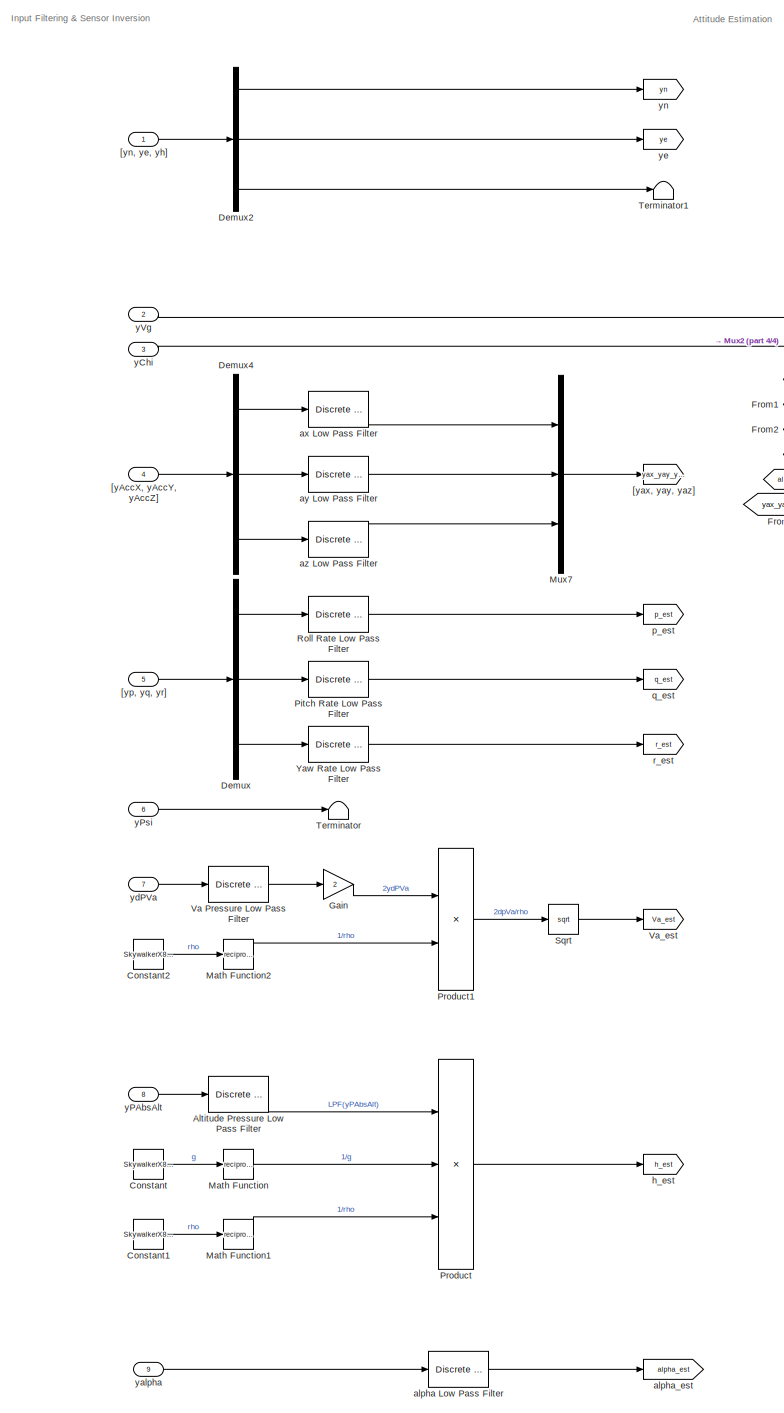
[diagram: State Estimation - part 1/4, left side, full height]
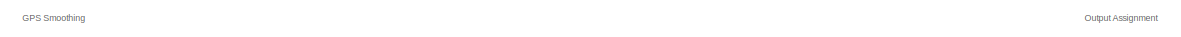
[diagram: State Estimation - part 2/4, top center region]
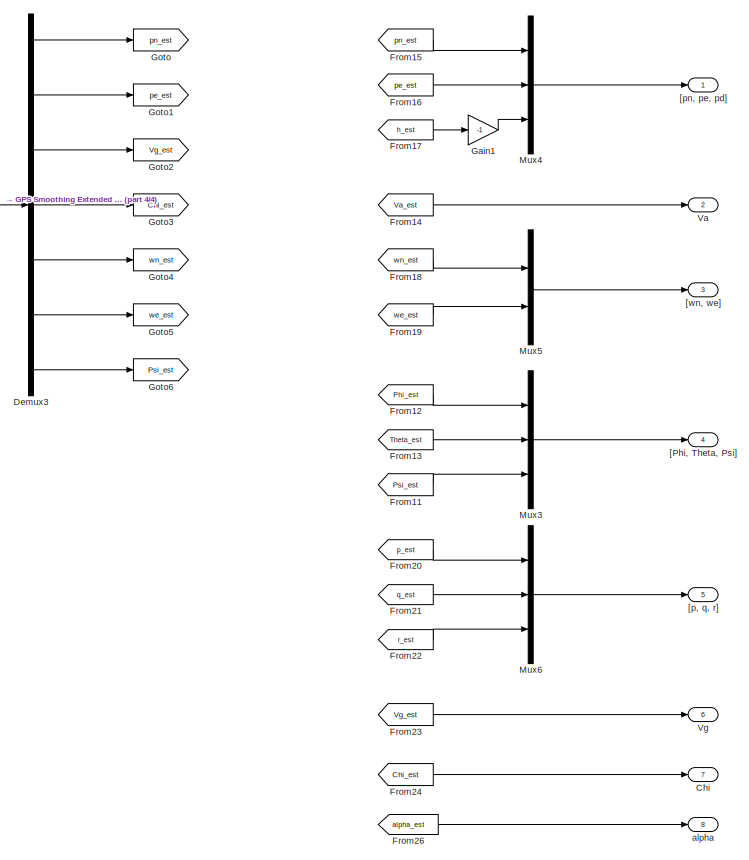
[diagram: State Estimation - part 3/4, middle right region]
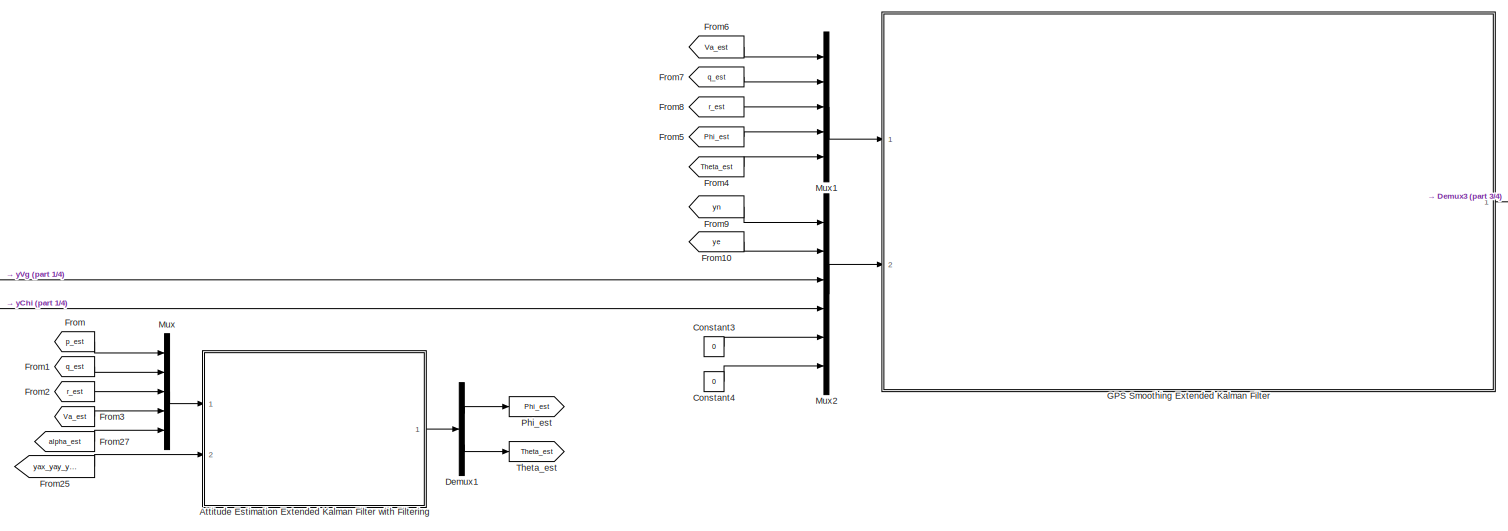
[diagram: State Estimation - part 4/4, top center region]
BLOCK [SubSystem] State Estimation
  Ports = [9, 8]
  RequestExecContextInheritance = off
BLOCK [Reference] State Estimation/Altitude Pressure Low Pass Filter  REF=simulink_extras/Additional
Discrete/Discrete
Transfer Fcn
(with initial outputs)
  Ports = [1, 1]
  SourceBlock = simulink_extras/Additional\nDiscrete/Discrete\nTransfer Fcn\n(with initial outputs)
  SourceProductBaseCode = SL
  SourceProductName = Simulink
  SourceType = Discrete Transfer Function with Initial Outputs
BLOCK [SubSystem] State Estimation/Attitude Estimation Extended Kalman Filter with Filtering
  Ports = [2, 1]
  RequestExecContextInheritance = off
BLOCK [SubSystem] State Estimation/Attitude Estimation Extended Kalman Filter with Filtering/Attitude Estimation Extended Kalman Filter
  Ports = [2, 1]
  RequestExecContextInheritance = off
BLOCK [Reference] State Estimation/Attitude Estimation Extended Kalman Filter with Filtering/Attitude Estimation Extended Kalman Filter/Attitude Estimation Extended Kalman Filter  REF=sharedTrackingLibrary/Extended Kalman Filter
  Ports = [3, 1]
  SourceBlock = sharedTrackingLibrary/Extended Kalman Filter
  SourceProductBaseCode = CT
  SourceProductName = Control System Toolbox
  SourceType = Extended Kalman Filter
BLOCK [Constant] State Estimation/Attitude Estimation Extended Kalman Filter with Filtering/Attitude Estimation Extended Kalman Filter/Constant
  Value = SkywalkerX8.Sensors.EKF.Attitude.StateTransitionSampleTime
BLOCK [Mux] State Estimation/Attitude Estimation Extended Kalman Filter with Filtering/Attitude Estimation Extended Kalman Filter/Mux
  DisplayOption = bar
  Inputs = 2
  Ports = [2, 1]
BLOCK [RateTransition] State Estimation/Attitude Estimation Extended Kalman Filter with Filtering/Attitude Estimation Extended Kalman Filter/Rate Transition
  InitialCondition = SkywalkerX8.Sensors.EKF.Attitude.InitialInput
  OutPortSampleTime = SkywalkerX8.Sensors.EKF.Attitude.StateTransitionSampleTime
BLOCK [RateTransition] State Estimation/Attitude Estimation Extended Kalman Filter with Filtering/Attitude Estimation Extended Kalman Filter/Rate Transition1
  InitialCondition = SkywalkerX8.Sensors.EKF.Attitude.InitialInput
  OutPortSampleTime = SkywalkerX8.Sensors.EKF.Attitude.MeasurementSampleTime
BLOCK [RateTransition] State Estimation/Attitude Estimation Extended Kalman Filter with Filtering/Attitude Estimation Extended Kalman Filter/Rate Transition2
  InitialCondition = SkywalkerX8.Sensors.EKF.Attitude.InitialMeasurement
  OutPortSampleTime = SkywalkerX8.Sensors.EKF.Attitude.MeasurementSampleTime
BLOCK [Inport] State Estimation/Attitude Estimation Extended Kalman Filter with Filtering/Attitude Estimation Extended Kalman Filter/u
  IconDisplay = Port number
BLOCK [Outport] State Estimation/Attitude Estimation Extended Kalman Filter with Filtering/Attitude Estimation Extended Kalman Filter/xhat
  IconDisplay = Port number
BLOCK [Inport] State Estimation/Attitude Estimation Extended Kalman Filter with Filtering/Attitude Estimation Extended Kalman Filter/y
  IconDisplay = Port number
  Port = 2
BLOCK [Inport] State Estimation/Attitude Estimation Extended Kalman Filter with Filtering/u
  IconDisplay = Port number
BLOCK [Outport] State Estimation/Attitude Estimation Extended Kalman Filter with Filtering/xest
  IconDisplay = Port number
BLOCK [Inport] State Estimation/Attitude Estimation Extended Kalman Filter with Filtering/y
  IconDisplay = Port number
  Port = 2
BLOCK [Outport] State Estimation/Chi
  IconDisplay = Port number
  Port = 7
BLOCK [Constant] State Estimation/Constant
  Value = SkywalkerX8.Sensors.StateEstimate.SensorInversion.AltitudePressure.Gravity
BLOCK [Constant] State Estimation/Constant1
  Value = SkywalkerX8.Sensors.StateEstimate.SensorInversion.AltitudePressure.Density
BLOCK [Constant] State Estimation/Constant2
  Value = SkywalkerX8.Sensors.StateEstimate.SensorInversion.AltitudePressure.Density
BLOCK [Constant] State Estimation/Constant3
  Value = 0
BLOCK [Constant] State Estimation/Constant4
  Value = 0
BLOCK [Demux] State Estimation/Demux
  DisplayOption = bar
  Outputs = 3
  Ports = [1, 3]
BLOCK [Demux] State Estimation/Demux1
  DisplayOption = bar
  Outputs = 2
  Ports = [1, 2]
BLOCK [Demux] State Estimation/Demux2
  DisplayOption = bar
  Outputs = 3
  Ports = [1, 3]
BLOCK [Demux] State Estimation/Demux3
  DisplayOption = bar
  Outputs = 7
  Ports = [1, 7]
BLOCK [Demux] State Estimation/Demux4
  DisplayOption = bar
  Outputs = 3
  Ports = [1, 3]
BLOCK [From] State Estimation/From
  GotoTag = p_est
BLOCK [From] State Estimation/From1
  GotoTag = q_est
BLOCK [From] State Estimation/From10
  GotoTag = ye
BLOCK [From] State Estimation/From11
  GotoTag = Psi_est
BLOCK [From] State Estimation/From12
  GotoTag = Phi_est
BLOCK [From] State Estimation/From13
  GotoTag = Theta_est
BLOCK [From] State Estimation/From14
  GotoTag = Va_est
BLOCK [From] State Estimation/From15
  GotoTag = pn_est
BLOCK [From] State Estimation/From16
  GotoTag = pe_est
BLOCK [From] State Estimation/From17
  GotoTag = h_est
BLOCK [From] State Estimation/From18
  GotoTag = wn_est
BLOCK [From] State Estimation/From19
  GotoTag = we_est
BLOCK [From] State Estimation/From2
  GotoTag = r_est
BLOCK [From] State Estimation/From20
  GotoTag = p_est
BLOCK [From] State Estimation/From21
  GotoTag = q_est
BLOCK [From] State Estimation/From22
  GotoTag = r_est
BLOCK [From] State Estimation/From23
  GotoTag = Vg_est
BLOCK [From] State Estimation/From24
  GotoTag = Chi_est
BLOCK [From] State Estimation/From25
  GotoTag = yax_yay_yaz
BLOCK [From] State Estimation/From26
  GotoTag = alpha_est
BLOCK [From] State Estimation/From27
  GotoTag = alpha_est
BLOCK [From] State Estimation/From3
  GotoTag = Va_est
BLOCK [From] State Estimation/From4
  GotoTag = Theta_est
BLOCK [From] State Estimation/From5
  GotoTag = Phi_est
BLOCK [From] State Estimation/From6
  GotoTag = Va_est
BLOCK [From] State Estimation/From7
  GotoTag = q_est
BLOCK [From] State Estimation/From8
  GotoTag = r_est
BLOCK [From] State Estimation/From9
  GotoTag = yn
BLOCK [SubSystem] State Estimation/GPS Smoothing Extended Kalman Filter
  Ports = [2, 1]
  RequestExecContextInheritance = off
BLOCK [Reference] State Estimation/GPS Smoothing Extended Kalman Filter/Chi Low Pass Filter  REF=simulink_extras/Additional
Discrete/Discrete
Transfer Fcn
(with initial outputs)
  Ports = [1, 1]
  SourceBlock = simulink_extras/Additional\nDiscrete/Discrete\nTransfer Fcn\n(with initial outputs)
  SourceProductBaseCode = SL
  SourceProductName = Simulink
  SourceType = Discrete Transfer Function with Initial Outputs
BLOCK [Constant] State Estimation/GPS Smoothing Extended Kalman Filter/Constant
  Value = SkywalkerX8.Sensors.EKF.GPSSmoothing.MeasurementCovarianceMatrix
BLOCK [Constant] State Estimation/GPS Smoothing Extended Kalman Filter/Constant1
  Value = SkywalkerX8.Sensors.EKF.GPSSmoothing.StateTransitionSampleTime
BLOCK [Demux] State Estimation/GPS Smoothing Extended Kalman Filter/Demux3
  DisplayOption = bar
  Outputs = 7
  Ports = [1, 7]
BLOCK [Reference] State Estimation/GPS Smoothing Extended Kalman Filter/GPS Smoothing Extended Kalman Filter  REF=sharedTrackingLibrary/Extended Kalman Filter
  Ports = [4, 1]
  SourceBlock = sharedTrackingLibrary/Extended Kalman Filter
  SourceProductBaseCode = CT
  SourceProductName = Control System Toolbox
  SourceType = Extended Kalman Filter
BLOCK [Gain] State Estimation/GPS Smoothing Extended Kalman Filter/Gain
  Gain = SkywalkerX8.Sensors.GPS.Velocity.StdDev
  OutDataTypeStr = Inherit: Inherit via internal rule
  ParamDataTypeStr = Inherit: Inherit via internal rule
  SaturateOnIntegerOverflow = off
BLOCK [SubSystem] State Estimation/GPS Smoothing Extended Kalman Filter/MATLAB Function
  ErrorFcn = Stateflow.Translate.translate
  PermitHierarchicalResolution = ExplicitOnly
  Ports = [1, 1]
  RequestExecContextInheritance = off
  SFBlockType = MATLAB Function
  TreatAsAtomicUnit = on
BLOCK [Demux] State Estimation/GPS Smoothing Extended Kalman Filter/MATLAB Function/ Demux 
  Outputs = 1
  Ports = [1, 1]
BLOCK [S-Function] State Estimation/GPS Smoothing Extended Kalman Filter/MATLAB Function/ SFunction 
  EnableBusSupport = on
  FunctionName = sf_sfun
  PortCounts = [1 2]
  Ports = [1, 2]
  SFcnIsStateOwnerBlock = off
  SFunctionDeploymentMode = off
  Tag = Stateflow S-Function SkywalkerX8_GuidanceAndNavigation_Verification 8
BLOCK [Terminator] State Estimation/GPS Smoothing Extended Kalman Filter/MATLAB Function/ Terminator 
BLOCK [Inport] State Estimation/GPS Smoothing Extended Kalman Filter/MATLAB Function/chi
  IconDisplay = Port number
BLOCK [Outport] State Estimation/GPS Smoothing Extended Kalman Filter/MATLAB Function/chi_wrap
  IconDisplay = Port number
BLOCK [Math] State Estimation/GPS Smoothing Extended Kalman Filter/Math Function1
  Operator = magnitude^2
  Ports = [1, 1]
BLOCK [Mux] State Estimation/GPS Smoothing Extended Kalman Filter/Mux
  DisplayOption = bar
  Inputs = 2
  Ports = [2, 1]
BLOCK [Mux] State Estimation/GPS Smoothing Extended Kalman Filter/Mux1
  DisplayOption = bar
  Inputs = 7
  Ports = [7, 1]
BLOCK [Reference] State Estimation/GPS Smoothing Extended Kalman Filter/Overwrite Chi Variance  REF=dspmtrx3/Overwrite Values
  Ports = [2, 1]
  SourceBlock = dspmtrx3/Overwrite Values
  SourceProductBaseCode = DS
  SourceProductName = DSP System Toolbox
  SourceType = Overwrite Values
BLOCK [RateTransition] State Estimation/GPS Smoothing Extended Kalman Filter/Rate Transition
  InitialCondition = SkywalkerX8.Sensors.EKF.GPSSmoothing.InitialInput
  OutPortSampleTime = SkywalkerX8.Sensors.EKF.GPSSmoothing.StateTransitionSampleTime
BLOCK [RateTransition] State Estimation/GPS Smoothing Extended Kalman Filter/Rate Transition1
  InitialCondition = SkywalkerX8.Sensors.EKF.GPSSmoothing.InitialInput
  OutPortSampleTime = SkywalkerX8.Sensors.EKF.GPSSmoothing.MeasurementSampleTime
BLOCK [RateTransition] State Estimation/GPS Smoothing Extended Kalman Filter/Rate Transition2
  InitialCondition = SkywalkerX8.Sensors.EKF.GPSSmoothing.InitialMeasurement
  OutPortSampleTime = SkywalkerX8.Sensors.EKF.GPSSmoothing.MeasurementSampleTime
BLOCK [SubSystem] State Estimation/GPS Smoothing Extended Kalman Filter/Reciprocal
  ErrorFcn = Stateflow.Translate.translate
  PermitHierarchicalResolution = ExplicitOnly
  Ports = [1, 1]
  RequestExecContextInheritance = off
  SFBlockType = MATLAB Function
  TreatAsAtomicUnit = on
BLOCK [Demux] State Estimation/GPS Smoothing Extended Kalman Filter/Reciprocal/ Demux 
  Outputs = 1
  Ports = [1, 1]
BLOCK [S-Function] State Estimation/GPS Smoothing Extended Kalman Filter/Reciprocal/ SFunction 
  EnableBusSupport = on
  FunctionName = sf_sfun
  PortCounts = [1 2]
  Ports = [1, 2]
  SFcnIsStateOwnerBlock = off
  SFunctionDeploymentMode = off
  Tag = Stateflow S-Function SkywalkerX8_GuidanceAndNavigation_Verification 4
BLOCK [Terminator] State Estimation/GPS Smoothing Extended Kalman Filter/Reciprocal/ Terminator 
BLOCK [Inport] State Estimation/GPS Smoothing Extended Kalman Filter/Reciprocal/u
  IconDisplay = Port number
BLOCK [Outport] State Estimation/GPS Smoothing Extended Kalman Filter/Reciprocal/y
  IconDisplay = Port number
BLOCK [Selector] State Estimation/GPS Smoothing Extended Kalman Filter/Selector
  IndexOptions = Index vector (dialog)
  Indices = 3
  InputPortWidth = 7
  OutputSizes = 1
  Ports = [1, 1]
BLOCK [UnitDelay] State Estimation/GPS Smoothing Extended Kalman Filter/Unit Delay
  InitialCondition = SkywalkerX8.Sensors.EKF.GPSSmoothing.InitialState(3)
  InputProcessing = Elements as channels (sample based)
  SampleTime = SkywalkerX8.Sensors.EKF.GPSSmoothing.MeasurementSampleTime
BLOCK [Reference] State Estimation/GPS Smoothing Extended Kalman Filter/Unwrap  REF=dspsigops/Unwrap
  Ports = [1, 1]
  SourceBlock = dspsigops/Unwrap
  SourceProductBaseCode = DS
  SourceProductName = DSP System Toolbox
  SourceType = Unwrap
  UserDataPersistent = on
BLOCK [Inport] State Estimation/GPS Smoothing Extended Kalman Filter/u
  IconDisplay = Port number
  PortDimensions = 5
BLOCK [Outport] State Estimation/GPS Smoothing Extended Kalman Filter/xhat
  IconDisplay = Port number
BLOCK [Inport] State Estimation/GPS Smoothing Extended Kalman Filter/y
  IconDisplay = Port number
  Port = 2
  PortDimensions = 6
BLOCK [Gain] State Estimation/Gain
  Gain = 2
  OutDataTypeStr = Inherit: Inherit via internal rule
  ParamDataTypeStr = Inherit: Inherit via internal rule
  SaturateOnIntegerOverflow = off
BLOCK [Gain] State Estimation/Gain1
  Gain = -1
  OutDataTypeStr = Inherit: Inherit via internal rule
  ParamDataTypeStr = Inherit: Inherit via internal rule
  SaturateOnIntegerOverflow = off
BLOCK [Goto] State Estimation/Goto
  GotoTag = pn_est
BLOCK [Goto] State Estimation/Goto1
  GotoTag = pe_est
BLOCK [Goto] State Estimation/Goto2
  GotoTag = Vg_est
BLOCK [Goto] State Estimation/Goto3
  GotoTag = Chi_est
BLOCK [Goto] State Estimation/Goto4
  GotoTag = wn_est
BLOCK [Goto] State Estimation/Goto5
  GotoTag = we_est
BLOCK [Goto] State Estimation/Goto6
  GotoTag = Psi_est
BLOCK [Math] State Estimation/Math Function
  Operator = reciprocal
  Ports = [1, 1]
BLOCK [Math] State Estimation/Math Function1
  Operator = reciprocal
  Ports = [1, 1]
BLOCK [Math] State Estimation/Math Function2
  Operator = reciprocal
  Ports = [1, 1]
BLOCK [Mux] State Estimation/Mux
  DisplayOption = bar
  Inputs = 5
  Ports = [5, 1]
BLOCK [Mux] State Estimation/Mux1
  DisplayOption = bar
  Inputs = 5
  Ports = [5, 1]
BLOCK [Mux] State Estimation/Mux2
  DisplayOption = bar
  Inputs = 6
  Ports = [6, 1]
BLOCK [Mux] State Estimation/Mux3
  DisplayOption = bar
  Inputs = 3
  Ports = [3, 1]
BLOCK [Mux] State Estimation/Mux4
  DisplayOption = bar
  Inputs = 3
  Ports = [3, 1]
BLOCK [Mux] State Estimation/Mux5
  DisplayOption = bar
  Inputs = 2
  Ports = [2, 1]
BLOCK [Mux] State Estimation/Mux6
  DisplayOption = bar
  Inputs = 3
  Ports = [3, 1]
BLOCK [Mux] State Estimation/Mux7
  DisplayOption = bar
  Inputs = 3
  Ports = [3, 1]
BLOCK [Goto] State Estimation/Phi_est
  GotoTag = Phi_est
BLOCK [Reference] State Estimation/Pitch Rate Low Pass Filter  REF=simulink_extras/Additional
Discrete/Discrete
Transfer Fcn
(with initial outputs)
  Ports = [1, 1]
  SourceBlock = simulink_extras/Additional\nDiscrete/Discrete\nTransfer Fcn\n(with initial outputs)
  SourceProductBaseCode = SL
  SourceProductName = Simulink
  SourceType = Discrete Transfer Function with Initial Outputs
BLOCK [Product] State Estimation/Product
  InputSameDT = off
  Inputs = 3
  OutDataTypeStr = Inherit: Inherit via internal rule
  Ports = [3, 1]
  RndMeth = Floor
  SaturateOnIntegerOverflow = off
BLOCK [Product] State Estimation/Product1
  InputSameDT = off
  OutDataTypeStr = Inherit: Inherit via internal rule
  Ports = [2, 1]
  RndMeth = Floor
  SaturateOnIntegerOverflow = off
BLOCK [Reference] State Estimation/Roll Rate Low Pass Filter  REF=simulink_extras/Additional
Discrete/Discrete
Transfer Fcn
(with initial outputs)
  Ports = [1, 1]
  SourceBlock = simulink_extras/Additional\nDiscrete/Discrete\nTransfer Fcn\n(with initial outputs)
  SourceProductBaseCode = SL
  SourceProductName = Simulink
  SourceType = Discrete Transfer Function with Initial Outputs
BLOCK [Sqrt] State Estimation/Sqrt
BLOCK [Terminator] State Estimation/Terminator
BLOCK [Terminator] State Estimation/Terminator1
BLOCK [Goto] State Estimation/Theta_est
  GotoTag = Theta_est
BLOCK [Outport] State Estimation/Va
  IconDisplay = Port number
  Port = 2
BLOCK [Reference] State Estimation/Va Pressure Low Pass Filter  REF=simulink_extras/Additional
Discrete/Discrete
Transfer Fcn
(with initial outputs)
  Ports = [1, 1]
  SourceBlock = simulink_extras/Additional\nDiscrete/Discrete\nTransfer Fcn\n(with initial outputs)
  SourceProductBaseCode = SL
  SourceProductName = Simulink
  SourceType = Discrete Transfer Function with Initial Outputs
BLOCK [Goto] State Estimation/Va_est
  GotoTag = Va_est
BLOCK [Outport] State Estimation/Vg
  IconDisplay = Port number
  Port = 6
BLOCK [Reference] State Estimation/Yaw Rate Low Pass Filter  REF=simulink_extras/Additional
Discrete/Discrete
Transfer Fcn
(with initial outputs)
  Ports = [1, 1]
  SourceBlock = simulink_extras/Additional\nDiscrete/Discrete\nTransfer Fcn\n(with initial outputs)
  SourceProductBaseCode = SL
  SourceProductName = Simulink
  SourceType = Discrete Transfer Function with Initial Outputs
BLOCK [Outport] State Estimation/[Phi, Theta, Psi]
  IconDisplay = Port number
  Port = 4
BLOCK [Outport] State Estimation/[p, q, r]
  IconDisplay = Port number
  Port = 5
BLOCK [Outport] State Estimation/[pn, pe, pd]
  IconDisplay = Port number
BLOCK [Outport] State Estimation/[wn, we]
  IconDisplay = Port number
  Port = 3
BLOCK [Inport] State Estimation/[yAccX, yAccY, yAccZ]
  IconDisplay = Port number
  Port = 4
  PortDimensions = 3
BLOCK [Goto] State Estimation/[yax, yay, yaz]
  GotoTag = yax_yay_yaz
BLOCK [Inport] State Estimation/[yn, ye, yh]
  IconDisplay = Port number
  PortDimensions = 3
BLOCK [Inport] State Estimation/[yp, yq, yr]
  IconDisplay = Port number
  Port = 5
  PortDimensions = 3
BLOCK [Outport] State Estimation/alpha
  IconDisplay = Port number
  Port = 8
BLOCK [Reference] State Estimation/alpha Low Pass Filter  REF=simulink_extras/Additional
Discrete/Discrete
Transfer Fcn
(with initial outputs)
  Ports = [1, 1]
  SourceBlock = simulink_extras/Additional\nDiscrete/Discrete\nTransfer Fcn\n(with initial outputs)
  SourceProductBaseCode = SL
  SourceProductName = Simulink
  SourceType = Discrete Transfer Function with Initial Outputs
BLOCK [Goto] State Estimation/alpha_est
  GotoTag = alpha_est
BLOCK [Reference] State Estimation/ax Low Pass Filter  REF=simulink_extras/Additional
Discrete/Discrete
Transfer Fcn
(with initial outputs)
  Ports = [1, 1]
  SourceBlock = simulink_extras/Additional\nDiscrete/Discrete\nTransfer Fcn\n(with initial outputs)
  SourceProductBaseCode = SL
  SourceProductName = Simulink
  SourceType = Discrete Transfer Function with Initial Outputs
BLOCK [Reference] State Estimation/ay Low Pass Filter  REF=simulink_extras/Additional
Discrete/Discrete
Transfer Fcn
(with initial outputs)
  Ports = [1, 1]
  SourceBlock = simulink_extras/Additional\nDiscrete/Discrete\nTransfer Fcn\n(with initial outputs)
  SourceProductBaseCode = SL
  SourceProductName = Simulink
  SourceType = Discrete Transfer Function with Initial Outputs
BLOCK [Reference] State Estimation/az Low Pass Filter  REF=simulink_extras/Additional
Discrete/Discrete
Transfer Fcn
(with initial outputs)
  Ports = [1, 1]
  SourceBlock = simulink_extras/Additional\nDiscrete/Discrete\nTransfer Fcn\n(with initial outputs)
  SourceProductBaseCode = SL
  SourceProductName = Simulink
  SourceType = Discrete Transfer Function with Initial Outputs
BLOCK [Goto] State Estimation/h_est
  GotoTag = h_est
BLOCK [Goto] State Estimation/p_est
  GotoTag = p_est
BLOCK [Goto] State Estimation/q_est
  GotoTag = q_est
BLOCK [Goto] State Estimation/r_est
  GotoTag = r_est
BLOCK [Inport] State Estimation/yChi
  IconDisplay = Port number
  Port = 3
BLOCK [Inport] State Estimation/yPAbsAlt
  IconDisplay = Port number
  Port = 8
BLOCK [Inport] State Estimation/yPsi
  IconDisplay = Port number
  Port = 6
BLOCK [Inport] State Estimation/yVg
  IconDisplay = Port number
  Port = 2
BLOCK [Inport] State Estimation/yalpha
  IconDisplay = Port number
  Port = 9
BLOCK [Inport] State Estimation/ydPVa
  IconDisplay = Port number
  Port = 7
BLOCK [Goto] State Estimation/ye
  GotoTag = ye
BLOCK [Goto] State Estimation/yn
  GotoTag = yn
BLOCK [Terminator] Terminator
BLOCK [Terminator] Terminator1
BLOCK [Terminator] Terminator2
BLOCK [Terminator] Terminator3
BLOCK [Constant] Va_c Constant
  Value = 17.308
ANNOTATION Autopilot Digital: We dynamically rate limit our input by a scaled version of Va (Va*sin(0.5*theta_max)). This is to limit the required theta from the altitude controller in order to avoid stall conditions.
ANNOTATION Autopilot Digital/Gain Scheduled Controller Phi Digital: Since we already essentially have dphi/dt, we can use it directly and create a PIDF controller with PI acting on theta and the "DF" (filtered derivative) simply being a filtered p
ANNOTATION Autopilot Digital/Gain Scheduled Controller Theta Digital: Since we already essentially have dtheta/dt, we can use it directly and create a PIDF controller with PI acting on theta and the "DF" (filtered derivative) simply being a filtered q
ANNOTATION Autopilot Digital/Gain Scheduled Controller Theta Digital: We know that negative de results in a positive moment, which results in positive q and positive theta - so we know we need to invert our sign. We do this here so that tuning can be constrained to positive gains where possible.
ANNOTATION Autopilot Digital/Gain Scheduled Controller Theta Digital: We know that the aircraft in wings-level trim has an elevator setting. As such, we know that we require an integrator in the theta loop to hold this elevator setting state in trim in order to minimize actuator power requirements.
ANNOTATION Autopilot Digital/Gain Scheduled Controller Va_theta Digital: Because we sign invert the output, we need to sign invert the tracking value
ANNOTATION Autopilot Digital/Gain Scheduled Controller Va_theta Digital: We know that negative theta results in positive Va (as we'll start losing altitude) and vice versa as we gain altitude. In order to keep our controller gains positive we do the sign inversion seperately.
ANNOTATION Autopilot Digital/Gain Scheduled Controller h_theta Digital: We know that wings-level trim has the aircraft with a pitch angle. As such, we know that at a minimum this controller has to be a PI controller, because otherwise we have no state to hold the required steady state theta command.
ANNOTATION Autopilot Digital/h Rate Limiter Dynamic: U(k)
ANNOTATION Autopilot Digital/h Rate Limiter Dynamic: Y(k)
ANNOTATION SkywalkerX8 Aircraft + Aerodynamics Observable Feedback: Given that we are constrained by law to <122 m altitude, density can be assumed constant
ANNOTATION State Estimation: Attitude Estimation
ANNOTATION State Estimation: GPS Smoothing
ANNOTATION State Estimation: Input Filtering & Sensor Inversion
ANNOTATION State Estimation: Output Assignment
LINE Actuators/Left Servo-Motor/Abs:1 -> Actuators/Left Servo-Motor/Compare To Constant:1
LINE Actuators/Left Servo-Motor/Compare To Constant:1 -> Actuators/Left Servo-Motor/Terminator:1
LINE Actuators/Left Servo-Motor/Derivative:1 -> Actuators/Left Servo-Motor/Abs:1
LINE Actuators/Left Servo-Motor/Rate Limiter:1 -> Actuators/Left Servo-Motor/Saturation:1
LINE Actuators/Left Servo-Motor/Saturation:1 -> Actuators/Left Servo-Motor/del:1
NET Actuators/Left Servo-Motor/Second Order Servo-Motor Model:1 -> Actuators/Left Servo-Motor/Derivative:1, Actuators/Left Servo-Motor/Rate Limiter:1
LINE Actuators/Left Servo-Motor/del_c:1 -> Actuators/Left Servo-Motor/Second Order Servo-Motor Model:1
LINE Actuators/Left Servo-Motor:1 -> Actuators/del:1
LINE Actuators/Motor Model:1 -> Actuators/dt:1
LINE Actuators/Right Servo-Motor/Abs:1 -> Actuators/Right Servo-Motor/Compare To Constant:1
LINE Actuators/Right Servo-Motor/Compare To Constant:1 -> Actuators/Right Servo-Motor/Terminator:1
LINE Actuators/Right Servo-Motor/Derivative:1 -> Actuators/Right Servo-Motor/Abs:1
LINE Actuators/Right Servo-Motor/Rate Limiter:1 -> Actuators/Right Servo-Motor/Saturation:1
LINE Actuators/Right Servo-Motor/Saturation:1 -> Actuators/Right Servo-Motor/der:1
NET Actuators/Right Servo-Motor/Second Order Servo-Motor Model:1 -> Actuators/Right Servo-Motor/Derivative:1, Actuators/Right Servo-Motor/Rate Limiter:1
LINE Actuators/Right Servo-Motor/der_c:1 -> Actuators/Right Servo-Motor/Second Order Servo-Motor Model:1
LINE Actuators/Right Servo-Motor:1 -> Actuators/der:1
LINE Actuators/del_c:1 -> Actuators/Left Servo-Motor:1
LINE Actuators/der_c:1 -> Actuators/Right Servo-Motor:1
LINE Actuators/dt_c:1 -> Actuators/Motor Model:1
LINE Actuators:1 -> SkywalkerX8 Aircraft + Aerodynamics Observable Feedback:1
LINE Actuators:2 -> SkywalkerX8 Aircraft + Aerodynamics Observable Feedback:2
LINE Actuators:3 -> SkywalkerX8 Aircraft + Aerodynamics Observable Feedback:3
LINE Autopilot Digital/Abs1:1 -> Autopilot Digital/Switch1:2
LINE Autopilot Digital/Abs2:1 -> Autopilot Digital/Switch2:2
LINE Autopilot Digital/Altitude Control State Machine:1 -> Autopilot Digital/IC:1
LINE Autopilot Digital/Altitude Control State Machine:2 -> Autopilot Digital/IC1:1
LINE Autopilot Digital/Chi:1 -> Autopilot Digital/Sum2:2
LINE Autopilot Digital/Chi_c:1 -> Autopilot Digital/Sum2:1
LINE Autopilot Digital/Constant3:1 -> Autopilot Digital/Switch1:3
LINE Autopilot Digital/Constant4:1 -> Autopilot Digital/Switch2:3
LINE Autopilot Digital/Demux:1 -> Autopilot Digital/der:1
LINE Autopilot Digital/Demux:2 -> Autopilot Digital/del:1
LINE Autopilot Digital/From10:1 -> Autopilot Digital/Gain Scheduled Controller h_theta Digital:2
LINE Autopilot Digital/From11:1 -> Autopilot Digital/Gain Scheduled Controller Va_theta Digital:4
LINE Autopilot Digital/From12:1 -> Autopilot Digital/Gain Scheduled Controller Va_dt Digital:3
LINE Autopilot Digital/From13:1 -> Autopilot Digital/Gain1:1
LINE Autopilot Digital/From14:1 -> Autopilot Digital/Gain:1
LINE Autopilot Digital/From1:1 -> Autopilot Digital/Gain Scheduled Controller Theta Digital:3
LINE Autopilot Digital/From2:1 -> Autopilot Digital/Gain Scheduled Controller Va_dt Digital:2
LINE Autopilot Digital/From3:1 -> Autopilot Digital/Gain Scheduled Controller Phi Digital:3
LINE Autopilot Digital/From4:1 -> Autopilot Digital/Gain Scheduled Controller Chi Digital:2
LINE Autopilot Digital/From5:1 -> Autopilot Digital/Gain Scheduled Controller Va_theta Digital:3
LINE Autopilot Digital/From8:1 -> Autopilot Digital/Gain Scheduled Controller Theta Digital:4
LINE Autopilot Digital/From9:1 -> Autopilot Digital/Sum4:2
LINE Autopilot Digital/From:1 -> Autopilot Digital/Gain Scheduled Controller Va_theta Digital:2
LINE Autopilot Digital/Gain Scheduled Controller Chi Digital/Chi_e:1 -> Autopilot Digital/Gain Scheduled Controller Chi Digital/PIDF Controller Va_theta:1
LINE Autopilot Digital/Gain Scheduled Controller Chi Digital/PIDF Controller Chi Ki 2D Lookup Table:1 -> Autopilot Digital/Gain Scheduled Controller Chi Digital/PIDF Controller Va_theta:3
LINE Autopilot Digital/Gain Scheduled Controller Chi Digital/PIDF Controller Chi Kp 2D Lookup Table:1 -> Autopilot Digital/Gain Scheduled Controller Chi Digital/PIDF Controller Va_theta:2
LINE Autopilot Digital/Gain Scheduled Controller Chi Digital/PIDF Controller Va_theta/Clamp Switch:1 -> Autopilot Digital/Gain Scheduled Controller Chi Digital/PIDF Controller Va_theta/Discrete-Time Integrator:1
LINE Autopilot Digital/Gain Scheduled Controller Chi Digital/PIDF Controller Va_theta/Clamping circuit/Memory:1 -> Autopilot Digital/Gain Scheduled Controller Chi Digital/PIDF Controller Va_theta/Clamping circuit/Clamp:1
LINE Autopilot Digital/Gain Scheduled Controller Chi Digital/PIDF Controller Va_theta/Clamping circuit/NotEqual:1 -> Autopilot Digital/Gain Scheduled Controller Chi Digital/PIDF Controller Va_theta/Clamping circuit/Memory:1
LINE Autopilot Digital/Gain Scheduled Controller Chi Digital/PIDF Controller Va_theta/Clamping circuit/postSat:1 -> Autopilot Digital/Gain Scheduled Controller Chi Digital/PIDF Controller Va_theta/Clamping circuit/NotEqual:2
LINE Autopilot Digital/Gain Scheduled Controller Chi Digital/PIDF Controller Va_theta/Clamping circuit/preSat:1 -> Autopilot Digital/Gain Scheduled Controller Chi Digital/PIDF Controller Va_theta/Clamping circuit/NotEqual:1
LINE Autopilot Digital/Gain Scheduled Controller Chi Digital/PIDF Controller Va_theta/Clamping circuit:1 -> Autopilot Digital/Gain Scheduled Controller Chi Digital/PIDF Controller Va_theta/Clamp Switch:2
LINE Autopilot Digital/Gain Scheduled Controller Chi Digital/PIDF Controller Va_theta/Constant:1 -> Autopilot Digital/Gain Scheduled Controller Chi Digital/PIDF Controller Va_theta/Clamp Switch:1
LINE Autopilot Digital/Gain Scheduled Controller Chi Digital/PIDF Controller Va_theta/Discrete-Time Integrator:1 -> Autopilot Digital/Gain Scheduled Controller Chi Digital/PIDF Controller Va_theta/Sum2:2
LINE Autopilot Digital/Gain Scheduled Controller Chi Digital/PIDF Controller Va_theta/I:1 -> Autopilot Digital/Gain Scheduled Controller Chi Digital/PIDF Controller Va_theta/IOut:1
LINE Autopilot Digital/Gain Scheduled Controller Chi Digital/PIDF Controller Va_theta/IOut:1 -> Autopilot Digital/Gain Scheduled Controller Chi Digital/PIDF Controller Va_theta/Clamp Switch:3
LINE Autopilot Digital/Gain Scheduled Controller Chi Digital/PIDF Controller Va_theta/P:1 -> Autopilot Digital/Gain Scheduled Controller Chi Digital/PIDF Controller Va_theta/POut:1
LINE Autopilot Digital/Gain Scheduled Controller Chi Digital/PIDF Controller Va_theta/POut:1 -> Autopilot Digital/Gain Scheduled Controller Chi Digital/PIDF Controller Va_theta/Sum2:1
LINE Autopilot Digital/Gain Scheduled Controller Chi Digital/PIDF Controller Va_theta/Post-Saturation:1 -> Autopilot Digital/Gain Scheduled Controller Chi Digital/PIDF Controller Va_theta/Clamping circuit:2
LINE Autopilot Digital/Gain Scheduled Controller Chi Digital/PIDF Controller Va_theta/Pre-Saturation:1 -> Autopilot Digital/Gain Scheduled Controller Chi Digital/PIDF Controller Va_theta/Clamping circuit:1
LINE Autopilot Digital/Gain Scheduled Controller Chi Digital/PIDF Controller Va_theta/Sum2:1 -> Autopilot Digital/Gain Scheduled Controller Chi Digital/PIDF Controller Va_theta/y:1
NET Autopilot Digital/Gain Scheduled Controller Chi Digital/PIDF Controller Va_theta/u:1 -> Autopilot Digital/Gain Scheduled Controller Chi Digital/PIDF Controller Va_theta/IOut:2, Autopilot Digital/Gain Scheduled Controller Chi Digital/PIDF Controller Va_theta/POut:2
NET Autopilot Digital/Gain Scheduled Controller Chi Digital/PIDF Controller Va_theta:1 -> Autopilot Digital/Gain Scheduled Controller Chi Digital/PIDF Controller Va_theta:5, Autopilot Digital/Gain Scheduled Controller Chi Digital/Saturation:1
NET Autopilot Digital/Gain Scheduled Controller Chi Digital/Saturation:1 -> Autopilot Digital/Gain Scheduled Controller Chi Digital/PIDF Controller Va_theta:4, Autopilot Digital/Gain Scheduled Controller Chi Digital/Zero-Order Hold:1
NET Autopilot Digital/Gain Scheduled Controller Chi Digital/Va:1 -> Autopilot Digital/Gain Scheduled Controller Chi Digital/PIDF Controller Chi Ki 2D Lookup Table:1, Autopilot Digital/Gain Scheduled Controller Chi Digital/PIDF Controller Chi Kp 2D Lookup Table:1
LINE Autopilot Digital/Gain Scheduled Controller Chi Digital/Zero-Order Hold:1 -> Autopilot Digital/Gain Scheduled Controller Chi Digital/Phi_c:1
LINE Autopilot Digital/Gain Scheduled Controller Chi Digital:1 -> Autopilot Digital/Sum:1
LINE Autopilot Digital/Gain Scheduled Controller Phi Digital/DF Controller Phi/D:1 -> Autopilot Digital/Gain Scheduled Controller Phi Digital/DF Controller Phi/Product:1
NET Autopilot Digital/Gain Scheduled Controller Phi Digital/DF Controller Phi/Discrete-Time Integrator:1 -> Autopilot Digital/Gain Scheduled Controller Phi Digital/DF Controller Phi/Sum:2, Autopilot Digital/Gain Scheduled Controller Phi Digital/DF Controller Phi/da*:1
LINE Autopilot Digital/Gain Scheduled Controller Phi Digital/DF Controller Phi/N:1 -> Autopilot Digital/Gain Scheduled Controller Phi Digital/DF Controller Phi/Product1:1
LINE Autopilot Digital/Gain Scheduled Controller Phi Digital/DF Controller Phi/Product1:1 -> Autopilot Digital/Gain Scheduled Controller Phi Digital/DF Controller Phi/Discrete-Time Integrator:1
LINE Autopilot Digital/Gain Scheduled Controller Phi Digital/DF Controller Phi/Product:1 -> Autopilot Digital/Gain Scheduled Controller Phi Digital/DF Controller Phi/Sum:1
LINE Autopilot Digital/Gain Scheduled Controller Phi Digital/DF Controller Phi/Sum:1 -> Autopilot Digital/Gain Scheduled Controller Phi Digital/DF Controller Phi/Product1:2
LINE Autopilot Digital/Gain Scheduled Controller Phi Digital/DF Controller Phi/du//dt:1 -> Autopilot Digital/Gain Scheduled Controller Phi Digital/DF Controller Phi/Product:2
LINE Autopilot Digital/Gain Scheduled Controller Phi Digital/DF Controller Phi:1 -> Autopilot Digital/Gain Scheduled Controller Phi Digital/Sum1:3
LINE Autopilot Digital/Gain Scheduled Controller Phi Digital/PDF Controller Phi 2DOF Kd 2D Lookup Table:1 -> Autopilot Digital/Gain Scheduled Controller Phi Digital/PDF Controller Phi 2DOF:3
LINE Autopilot Digital/Gain Scheduled Controller Phi Digital/PDF Controller Phi 2DOF Kp 2D Lookup Table:1 -> Autopilot Digital/Gain Scheduled Controller Phi Digital/PDF Controller Phi 2DOF:2
LINE Autopilot Digital/Gain Scheduled Controller Phi Digital/PDF Controller Phi 2DOF N 2D Lookup Table:1 -> Autopilot Digital/Gain Scheduled Controller Phi Digital/PDF Controller Phi 2DOF:4
LINE Autopilot Digital/Gain Scheduled Controller Phi Digital/PDF Controller Phi 2DOF/D:1 -> Autopilot Digital/Gain Scheduled Controller Phi Digital/PDF Controller Phi 2DOF/Product:2
LINE Autopilot Digital/Gain Scheduled Controller Phi Digital/PDF Controller Phi 2DOF/Discrete-Time Integrator:1 -> Autopilot Digital/Gain Scheduled Controller Phi Digital/PDF Controller Phi 2DOF/Sum:2
LINE Autopilot Digital/Gain Scheduled Controller Phi Digital/PDF Controller Phi 2DOF/N:1 -> Autopilot Digital/Gain Scheduled Controller Phi Digital/PDF Controller Phi 2DOF/Product1:1
LINE Autopilot Digital/Gain Scheduled Controller Phi Digital/PDF Controller Phi 2DOF/P:1 -> Autopilot Digital/Gain Scheduled Controller Phi Digital/PDF Controller Phi 2DOF/POut:1
LINE Autopilot Digital/Gain Scheduled Controller Phi Digital/PDF Controller Phi 2DOF/POut:1 -> Autopilot Digital/Gain Scheduled Controller Phi Digital/PDF Controller Phi 2DOF/Sum2:1
NET Autopilot Digital/Gain Scheduled Controller Phi Digital/PDF Controller Phi 2DOF/Product1:1 -> Autopilot Digital/Gain Scheduled Controller Phi Digital/PDF Controller Phi 2DOF/Discrete-Time Integrator:1, Autopilot Digital/Gain Scheduled Controller Phi Digital/PDF Controller Phi 2DOF/Sum2:2
LINE Autopilot Digital/Gain Scheduled Controller Phi Digital/PDF Controller Phi 2DOF/Product:1 -> Autopilot Digital/Gain Scheduled Controller Phi Digital/PDF Controller Phi 2DOF/Sum:1
LINE Autopilot Digital/Gain Scheduled Controller Phi Digital/PDF Controller Phi 2DOF/Sum2:1 -> Autopilot Digital/Gain Scheduled Controller Phi Digital/PDF Controller Phi 2DOF/y:1
LINE Autopilot Digital/Gain Scheduled Controller Phi Digital/PDF Controller Phi 2DOF/Sum:1 -> Autopilot Digital/Gain Scheduled Controller Phi Digital/PDF Controller Phi 2DOF/Product1:2
NET Autopilot Digital/Gain Scheduled Controller Phi Digital/PDF Controller Phi 2DOF/u:1 -> Autopilot Digital/Gain Scheduled Controller Phi Digital/PDF Controller Phi 2DOF/POut:2, Autopilot Digital/Gain Scheduled Controller Phi Digital/PDF Controller Phi 2DOF/Product:1
LINE Autopilot Digital/Gain Scheduled Controller Phi Digital/PDF Controller Phi 2DOF:1 -> Autopilot Digital/Gain Scheduled Controller Phi Digital/Sum1:1
LINE Autopilot Digital/Gain Scheduled Controller Phi Digital/PI Controller Phi/Clamp Switch:1 -> Autopilot Digital/Gain Scheduled Controller Phi Digital/PI Controller Phi/Discrete-Time Integrator:1
LINE Autopilot Digital/Gain Scheduled Controller Phi Digital/PI Controller Phi/Clamping circuit/Memory:1 -> Autopilot Digital/Gain Scheduled Controller Phi Digital/PI Controller Phi/Clamping circuit/Clamp:1
LINE Autopilot Digital/Gain Scheduled Controller Phi Digital/PI Controller Phi/Clamping circuit/NotEqual:1 -> Autopilot Digital/Gain Scheduled Controller Phi Digital/PI Controller Phi/Clamping circuit/Memory:1
LINE Autopilot Digital/Gain Scheduled Controller Phi Digital/PI Controller Phi/Clamping circuit/postSat:1 -> Autopilot Digital/Gain Scheduled Controller Phi Digital/PI Controller Phi/Clamping circuit/NotEqual:2
LINE Autopilot Digital/Gain Scheduled Controller Phi Digital/PI Controller Phi/Clamping circuit/preSat:1 -> Autopilot Digital/Gain Scheduled Controller Phi Digital/PI Controller Phi/Clamping circuit/NotEqual:1
LINE Autopilot Digital/Gain Scheduled Controller Phi Digital/PI Controller Phi/Clamping circuit:1 -> Autopilot Digital/Gain Scheduled Controller Phi Digital/PI Controller Phi/Clamp Switch:2
LINE Autopilot Digital/Gain Scheduled Controller Phi Digital/PI Controller Phi/Constant:1 -> Autopilot Digital/Gain Scheduled Controller Phi Digital/PI Controller Phi/Clamp Switch:1
LINE Autopilot Digital/Gain Scheduled Controller Phi Digital/PI Controller Phi/Discrete-Time Integrator:1 -> Autopilot Digital/Gain Scheduled Controller Phi Digital/PI Controller Phi/Sum2:1
LINE Autopilot Digital/Gain Scheduled Controller Phi Digital/PI Controller Phi/I:1 -> Autopilot Digital/Gain Scheduled Controller Phi Digital/PI Controller Phi/IOut:1
LINE Autopilot Digital/Gain Scheduled Controller Phi Digital/PI Controller Phi/IOut:1 -> Autopilot Digital/Gain Scheduled Controller Phi Digital/PI Controller Phi/Clamp Switch:3
LINE Autopilot Digital/Gain Scheduled Controller Phi Digital/PI Controller Phi/P:1 -> Autopilot Digital/Gain Scheduled Controller Phi Digital/PI Controller Phi/POut:2
LINE Autopilot Digital/Gain Scheduled Controller Phi Digital/PI Controller Phi/POut:1 -> Autopilot Digital/Gain Scheduled Controller Phi Digital/PI Controller Phi/Sum2:2
LINE Autopilot Digital/Gain Scheduled Controller Phi Digital/PI Controller Phi/Post-Saturation:1 -> Autopilot Digital/Gain Scheduled Controller Phi Digital/PI Controller Phi/Clamping circuit:2
LINE Autopilot Digital/Gain Scheduled Controller Phi Digital/PI Controller Phi/Pre-Saturation:1 -> Autopilot Digital/Gain Scheduled Controller Phi Digital/PI Controller Phi/Clamping circuit:1
LINE Autopilot Digital/Gain Scheduled Controller Phi Digital/PI Controller Phi/Sum2:1 -> Autopilot Digital/Gain Scheduled Controller Phi Digital/PI Controller Phi/y:1
NET Autopilot Digital/Gain Scheduled Controller Phi Digital/PI Controller Phi/u:1 -> Autopilot Digital/Gain Scheduled Controller Phi Digital/PI Controller Phi/IOut:2, Autopilot Digital/Gain Scheduled Controller Phi Digital/PI Controller Phi/POut:1
LINE Autopilot Digital/Gain Scheduled Controller Phi Digital/PI Controller Phi:1 -> Autopilot Digital/Gain Scheduled Controller Phi Digital/Sum1:2
LINE Autopilot Digital/Gain Scheduled Controller Phi Digital/PIDF Controller Phi Kd 2D Lookup Table:1 -> Autopilot Digital/Gain Scheduled Controller Phi Digital/DF Controller Phi:2
LINE Autopilot Digital/Gain Scheduled Controller Phi Digital/PIDF Controller Phi Ki 2D Lookup Table:1 -> Autopilot Digital/Gain Scheduled Controller Phi Digital/PI Controller Phi:3
LINE Autopilot Digital/Gain Scheduled Controller Phi Digital/PIDF Controller Phi Kp 2D Lookup Table:1 -> Autopilot Digital/Gain Scheduled Controller Phi Digital/PI Controller Phi:2
LINE Autopilot Digital/Gain Scheduled Controller Phi Digital/PIDF Controller Phi N 2D Lookup Table:1 -> Autopilot Digital/Gain Scheduled Controller Phi Digital/DF Controller Phi:1
LINE Autopilot Digital/Gain Scheduled Controller Phi Digital/Phi:1 -> Autopilot Digital/Gain Scheduled Controller Phi Digital/PDF Controller Phi 2DOF:1
LINE Autopilot Digital/Gain Scheduled Controller Phi Digital/Phi_e:1 -> Autopilot Digital/Gain Scheduled Controller Phi Digital/PI Controller Phi:1
NET Autopilot Digital/Gain Scheduled Controller Phi Digital/Saturation:1 -> Autopilot Digital/Gain Scheduled Controller Phi Digital/PI Controller Phi:4, Autopilot Digital/Gain Scheduled Controller Phi Digital/Zero-Order Hold:1
NET Autopilot Digital/Gain Scheduled Controller Phi Digital/Sum1:1 -> Autopilot Digital/Gain Scheduled Controller Phi Digital/PI Controller Phi:5, Autopilot Digital/Gain Scheduled Controller Phi Digital/Saturation:1
NET Autopilot Digital/Gain Scheduled Controller Phi Digital/Va:1 -> Autopilot Digital/Gain Scheduled Controller Phi Digital/PDF Controller Phi 2DOF Kd 2D Lookup Table:1, Autopilot Digital/Gain Scheduled Controller Phi Digital/PDF Controller Phi 2DOF Kp 2D Lookup Table:1, Autopilot Digital/Gain Scheduled Controller Phi Digital/PDF Controller Phi 2DOF N 2D Lookup Table:1, Autopilot Digital/Gain Scheduled Controller Phi Digital/PIDF Controller Phi Kd 2D Lookup Table:1, Autopilot Digital/Gain Scheduled Controller Phi Digital/PIDF Controller Phi Ki 2D Lookup Table:1, Autopilot Digital/Gain Scheduled Controller Phi Digital/PIDF Controller Phi Kp 2D Lookup Table:1, Autopilot Digital/Gain Scheduled Controller Phi Digital/PIDF Controller Phi N 2D Lookup Table:1
LINE Autopilot Digital/Gain Scheduled Controller Phi Digital/Zero-Order Hold:1 -> Autopilot Digital/Gain Scheduled Controller Phi Digital/da:1
LINE Autopilot Digital/Gain Scheduled Controller Phi Digital/p:1 -> Autopilot Digital/Gain Scheduled Controller Phi Digital/DF Controller Phi:3
LINE Autopilot Digital/Gain Scheduled Controller Phi Digital:1 -> Autopilot Digital/Mux:2
LINE Autopilot Digital/Gain Scheduled Controller Theta Digital/DF Controller Theta/D:1 -> Autopilot Digital/Gain Scheduled Controller Theta Digital/DF Controller Theta/Product:1
NET Autopilot Digital/Gain Scheduled Controller Theta Digital/DF Controller Theta/Discrete-Time Integrator:1 -> Autopilot Digital/Gain Scheduled Controller Theta Digital/DF Controller Theta/Sum:2, Autopilot Digital/Gain Scheduled Controller Theta Digital/DF Controller Theta/de*:1
LINE Autopilot Digital/Gain Scheduled Controller Theta Digital/DF Controller Theta/N:1 -> Autopilot Digital/Gain Scheduled Controller Theta Digital/DF Controller Theta/Product1:1
LINE Autopilot Digital/Gain Scheduled Controller Theta Digital/DF Controller Theta/Product1:1 -> Autopilot Digital/Gain Scheduled Controller Theta Digital/DF Controller Theta/Discrete-Time Integrator:1
LINE Autopilot Digital/Gain Scheduled Controller Theta Digital/DF Controller Theta/Product:1 -> Autopilot Digital/Gain Scheduled Controller Theta Digital/DF Controller Theta/Sum:1
LINE Autopilot Digital/Gain Scheduled Controller Theta Digital/DF Controller Theta/Sum:1 -> Autopilot Digital/Gain Scheduled Controller Theta Digital/DF Controller Theta/Product1:2
LINE Autopilot Digital/Gain Scheduled Controller Theta Digital/DF Controller Theta/du//dt:1 -> Autopilot Digital/Gain Scheduled Controller Theta Digital/DF Controller Theta/Product:2
LINE Autopilot Digital/Gain Scheduled Controller Theta Digital/DF Controller Theta:1 -> Autopilot Digital/Gain Scheduled Controller Theta Digital/Sum1:3
LINE Autopilot Digital/Gain Scheduled Controller Theta Digital/PDF Controller Theta 2DOF/D:1 -> Autopilot Digital/Gain Scheduled Controller Theta Digital/PDF Controller Theta 2DOF/Product:2
LINE Autopilot Digital/Gain Scheduled Controller Theta Digital/PDF Controller Theta 2DOF/Discrete-Time Integrator:1 -> Autopilot Digital/Gain Scheduled Controller Theta Digital/PDF Controller Theta 2DOF/Sum:2
LINE Autopilot Digital/Gain Scheduled Controller Theta Digital/PDF Controller Theta 2DOF/N:1 -> Autopilot Digital/Gain Scheduled Controller Theta Digital/PDF Controller Theta 2DOF/Product1:1
LINE Autopilot Digital/Gain Scheduled Controller Theta Digital/PDF Controller Theta 2DOF/P:1 -> Autopilot Digital/Gain Scheduled Controller Theta Digital/PDF Controller Theta 2DOF/POut:1
LINE Autopilot Digital/Gain Scheduled Controller Theta Digital/PDF Controller Theta 2DOF/POut:1 -> Autopilot Digital/Gain Scheduled Controller Theta Digital/PDF Controller Theta 2DOF/Sum2:1
NET Autopilot Digital/Gain Scheduled Controller Theta Digital/PDF Controller Theta 2DOF/Product1:1 -> Autopilot Digital/Gain Scheduled Controller Theta Digital/PDF Controller Theta 2DOF/Discrete-Time Integrator:1, Autopilot Digital/Gain Scheduled Controller Theta Digital/PDF Controller Theta 2DOF/Sum2:2
LINE Autopilot Digital/Gain Scheduled Controller Theta Digital/PDF Controller Theta 2DOF/Product:1 -> Autopilot Digital/Gain Scheduled Controller Theta Digital/PDF Controller Theta 2DOF/Sum:1
LINE Autopilot Digital/Gain Scheduled Controller Theta Digital/PDF Controller Theta 2DOF/Sum2:1 -> Autopilot Digital/Gain Scheduled Controller Theta Digital/PDF Controller Theta 2DOF/y:1
LINE Autopilot Digital/Gain Scheduled Controller Theta Digital/PDF Controller Theta 2DOF/Sum:1 -> Autopilot Digital/Gain Scheduled Controller Theta Digital/PDF Controller Theta 2DOF/Product1:2
NET Autopilot Digital/Gain Scheduled Controller Theta Digital/PDF Controller Theta 2DOF/u:1 -> Autopilot Digital/Gain Scheduled Controller Theta Digital/PDF Controller Theta 2DOF/POut:2, Autopilot Digital/Gain Scheduled Controller Theta Digital/PDF Controller Theta 2DOF/Product:1
LINE Autopilot Digital/Gain Scheduled Controller Theta Digital/PDF Controller Theta 2DOF:1 -> Autopilot Digital/Gain Scheduled Controller Theta Digital/Sum1:1
LINE Autopilot Digital/Gain Scheduled Controller Theta Digital/PDF Controller theta 2DOF Kd 2D Lookup Table:1 -> Autopilot Digital/Gain Scheduled Controller Theta Digital/PDF Controller Theta 2DOF:3
LINE Autopilot Digital/Gain Scheduled Controller Theta Digital/PDF Controller theta 2DOF Kp 2D Lookup Table:1 -> Autopilot Digital/Gain Scheduled Controller Theta Digital/PDF Controller Theta 2DOF:2
LINE Autopilot Digital/Gain Scheduled Controller Theta Digital/PDF Controller theta 2DOF N 2D Lookup Table:1 -> Autopilot Digital/Gain Scheduled Controller Theta Digital/PDF Controller Theta 2DOF:4
LINE Autopilot Digital/Gain Scheduled Controller Theta Digital/PI Controller Theta/Clamp Switch:1 -> Autopilot Digital/Gain Scheduled Controller Theta Digital/PI Controller Theta/Discrete-Time Integrator:1
LINE Autopilot Digital/Gain Scheduled Controller Theta Digital/PI Controller Theta/Clamping circuit/Memory:1 -> Autopilot Digital/Gain Scheduled Controller Theta Digital/PI Controller Theta/Clamping circuit/Clamp:1
LINE Autopilot Digital/Gain Scheduled Controller Theta Digital/PI Controller Theta/Clamping circuit/NotEqual:1 -> Autopilot Digital/Gain Scheduled Controller Theta Digital/PI Controller Theta/Clamping circuit/Memory:1
LINE Autopilot Digital/Gain Scheduled Controller Theta Digital/PI Controller Theta/Clamping circuit/postSat:1 -> Autopilot Digital/Gain Scheduled Controller Theta Digital/PI Controller Theta/Clamping circuit/NotEqual:2
LINE Autopilot Digital/Gain Scheduled Controller Theta Digital/PI Controller Theta/Clamping circuit/preSat:1 -> Autopilot Digital/Gain Scheduled Controller Theta Digital/PI Controller Theta/Clamping circuit/NotEqual:1
LINE Autopilot Digital/Gain Scheduled Controller Theta Digital/PI Controller Theta/Clamping circuit:1 -> Autopilot Digital/Gain Scheduled Controller Theta Digital/PI Controller Theta/Clamp Switch:2
LINE Autopilot Digital/Gain Scheduled Controller Theta Digital/PI Controller Theta/Constant:1 -> Autopilot Digital/Gain Scheduled Controller Theta Digital/PI Controller Theta/Clamp Switch:1
LINE Autopilot Digital/Gain Scheduled Controller Theta Digital/PI Controller Theta/Discrete-Time Integrator:1 -> Autopilot Digital/Gain Scheduled Controller Theta Digital/PI Controller Theta/Sum2:1
LINE Autopilot Digital/Gain Scheduled Controller Theta Digital/PI Controller Theta/I:1 -> Autopilot Digital/Gain Scheduled Controller Theta Digital/PI Controller Theta/IOut:1
LINE Autopilot Digital/Gain Scheduled Controller Theta Digital/PI Controller Theta/IOut:1 -> Autopilot Digital/Gain Scheduled Controller Theta Digital/PI Controller Theta/Clamp Switch:3
LINE Autopilot Digital/Gain Scheduled Controller Theta Digital/PI Controller Theta/P:1 -> Autopilot Digital/Gain Scheduled Controller Theta Digital/PI Controller Theta/POut:2
LINE Autopilot Digital/Gain Scheduled Controller Theta Digital/PI Controller Theta/POut:1 -> Autopilot Digital/Gain Scheduled Controller Theta Digital/PI Controller Theta/Sum2:2
LINE Autopilot Digital/Gain Scheduled Controller Theta Digital/PI Controller Theta/Post-Saturation:1 -> Autopilot Digital/Gain Scheduled Controller Theta Digital/PI Controller Theta/Clamping circuit:2
LINE Autopilot Digital/Gain Scheduled Controller Theta Digital/PI Controller Theta/Pre-Saturation:1 -> Autopilot Digital/Gain Scheduled Controller Theta Digital/PI Controller Theta/Clamping circuit:1
LINE Autopilot Digital/Gain Scheduled Controller Theta Digital/PI Controller Theta/Sum2:1 -> Autopilot Digital/Gain Scheduled Controller Theta Digital/PI Controller Theta/y:1
NET Autopilot Digital/Gain Scheduled Controller Theta Digital/PI Controller Theta/u:1 -> Autopilot Digital/Gain Scheduled Controller Theta Digital/PI Controller Theta/IOut:2, Autopilot Digital/Gain Scheduled Controller Theta Digital/PI Controller Theta/POut:1
LINE Autopilot Digital/Gain Scheduled Controller Theta Digital/PI Controller Theta:1 -> Autopilot Digital/Gain Scheduled Controller Theta Digital/Sum1:2
LINE Autopilot Digital/Gain Scheduled Controller Theta Digital/PIDF Controller theta Kd 2D Lookup Table:1 -> Autopilot Digital/Gain Scheduled Controller Theta Digital/DF Controller Theta:2
LINE Autopilot Digital/Gain Scheduled Controller Theta Digital/PIDF Controller theta Ki 2D Lookup Table:1 -> Autopilot Digital/Gain Scheduled Controller Theta Digital/PI Controller Theta:3
LINE Autopilot Digital/Gain Scheduled Controller Theta Digital/PIDF Controller theta Kp 2D Lookup Table:1 -> Autopilot Digital/Gain Scheduled Controller Theta Digital/PI Controller Theta:2
LINE Autopilot Digital/Gain Scheduled Controller Theta Digital/PIDF Controller theta N 2D Lookup Table:1 -> Autopilot Digital/Gain Scheduled Controller Theta Digital/DF Controller Theta:1
LINE Autopilot Digital/Gain Scheduled Controller Theta Digital/Ref:1 -> Autopilot Digital/Gain Scheduled Controller Theta Digital/PDF Controller Theta 2DOF:1
NET Autopilot Digital/Gain Scheduled Controller Theta Digital/Saturation:1 -> Autopilot Digital/Gain Scheduled Controller Theta Digital/PI Controller Theta:4, Autopilot Digital/Gain Scheduled Controller Theta Digital/Sign Inversion:1
LINE Autopilot Digital/Gain Scheduled Controller Theta Digital/Sign Inversion:1 -> Autopilot Digital/Gain Scheduled Controller Theta Digital/Zero-Order Hold:1
NET Autopilot Digital/Gain Scheduled Controller Theta Digital/Sum1:1 -> Autopilot Digital/Gain Scheduled Controller Theta Digital/PI Controller Theta:5, Autopilot Digital/Gain Scheduled Controller Theta Digital/Saturation:1
NET Autopilot Digital/Gain Scheduled Controller Theta Digital/Va:1 -> Autopilot Digital/Gain Scheduled Controller Theta Digital/PDF Controller theta 2DOF Kd 2D Lookup Table:1, Autopilot Digital/Gain Scheduled Controller Theta Digital/PDF Controller theta 2DOF Kp 2D Lookup Table:1, Autopilot Digital/Gain Scheduled Controller Theta Digital/PDF Controller theta 2DOF N 2D Lookup Table:1, Autopilot Digital/Gain Scheduled Controller Theta Digital/PIDF Controller theta Kd 2D Lookup Table:1, Autopilot Digital/Gain Scheduled Controller Theta Digital/PIDF Controller theta Ki 2D Lookup Table:1, Autopilot Digital/Gain Scheduled Controller Theta Digital/PIDF Controller theta Kp 2D Lookup Table:1, Autopilot Digital/Gain Scheduled Controller Theta Digital/PIDF Controller theta N 2D Lookup Table:1
LINE Autopilot Digital/Gain Scheduled Controller Theta Digital/Zero-Order Hold:1 -> Autopilot Digital/Gain Scheduled Controller Theta Digital/de:1
NET Autopilot Digital/Gain Scheduled Controller Theta Digital/alpha:1 -> Autopilot Digital/Gain Scheduled Controller Theta Digital/PDF Controller theta 2DOF Kd 2D Lookup Table:2, Autopilot Digital/Gain Scheduled Controller Theta Digital/PDF Controller theta 2DOF Kp 2D Lookup Table:2, Autopilot Digital/Gain Scheduled Controller Theta Digital/PDF Controller theta 2DOF N 2D Lookup Table:2, Autopilot Digital/Gain Scheduled Controller Theta Digital/PIDF Controller theta Kd 2D Lookup Table:2, Autopilot Digital/Gain Scheduled Controller Theta Digital/PIDF Controller theta Ki 2D Lookup Table:2, Autopilot Digital/Gain Scheduled Controller Theta Digital/PIDF Controller theta Kp 2D Lookup Table:2, Autopilot Digital/Gain Scheduled Controller Theta Digital/PIDF Controller theta N 2D Lookup Table:2
LINE Autopilot Digital/Gain Scheduled Controller Theta Digital/q:1 -> Autopilot Digital/Gain Scheduled Controller Theta Digital/DF Controller Theta:3
LINE Autopilot Digital/Gain Scheduled Controller Theta Digital/theta_e:1 -> Autopilot Digital/Gain Scheduled Controller Theta Digital/PI Controller Theta:1
LINE Autopilot Digital/Gain Scheduled Controller Theta Digital:1 -> Autopilot Digital/Mux:1
LINE Autopilot Digital/Gain Scheduled Controller Va_dt Digital/PIDF Controller Va_dt Kd Lookup Table:1 -> Autopilot Digital/Gain Scheduled Controller Va_dt Digital/PIDF Controller Va_dt:4
NET Autopilot Digital/Gain Scheduled Controller Va_dt Digital/PIDF Controller Va_dt Ki Lookup Table:1 -> Autopilot Digital/Gain Scheduled Controller Va_dt Digital/PIDF Controller Va_dt Kt Tracking Gain Scalar:1, Autopilot Digital/Gain Scheduled Controller Va_dt Digital/PIDF Controller Va_dt:3
LINE Autopilot Digital/Gain Scheduled Controller Va_dt Digital/PIDF Controller Va_dt Kp Lookup Table:1 -> Autopilot Digital/Gain Scheduled Controller Va_dt Digital/PIDF Controller Va_dt:2
LINE Autopilot Digital/Gain Scheduled Controller Va_dt Digital/PIDF Controller Va_dt Kt Tracking Gain Scalar:1 -> Autopilot Digital/Gain Scheduled Controller Va_dt Digital/PIDF Controller Va_dt:6
LINE Autopilot Digital/Gain Scheduled Controller Va_dt Digital/PIDF Controller Va_dt N Lookup Table:1 -> Autopilot Digital/Gain Scheduled Controller Va_dt Digital/PIDF Controller Va_dt:5
LINE Autopilot Digital/Gain Scheduled Controller Va_dt Digital/PIDF Controller Va_dt/Clamp Switch:1 -> Autopilot Digital/Gain Scheduled Controller Va_dt Digital/PIDF Controller Va_dt/Sum1:1
LINE Autopilot Digital/Gain Scheduled Controller Va_dt Digital/PIDF Controller Va_dt/Clamping circuit/Memory:1 -> Autopilot Digital/Gain Scheduled Controller Va_dt Digital/PIDF Controller Va_dt/Clamping circuit/Clamp:1
LINE Autopilot Digital/Gain Scheduled Controller Va_dt Digital/PIDF Controller Va_dt/Clamping circuit/NotEqual:1 -> Autopilot Digital/Gain Scheduled Controller Va_dt Digital/PIDF Controller Va_dt/Clamping circuit/Memory:1
LINE Autopilot Digital/Gain Scheduled Controller Va_dt Digital/PIDF Controller Va_dt/Clamping circuit/postSat:1 -> Autopilot Digital/Gain Scheduled Controller Va_dt Digital/PIDF Controller Va_dt/Clamping circuit/NotEqual:2
LINE Autopilot Digital/Gain Scheduled Controller Va_dt Digital/PIDF Controller Va_dt/Clamping circuit/preSat:1 -> Autopilot Digital/Gain Scheduled Controller Va_dt Digital/PIDF Controller Va_dt/Clamping circuit/NotEqual:1
LINE Autopilot Digital/Gain Scheduled Controller Va_dt Digital/PIDF Controller Va_dt/Clamping circuit:1 -> Autopilot Digital/Gain Scheduled Controller Va_dt Digital/PIDF Controller Va_dt/Clamp Switch:2
LINE Autopilot Digital/Gain Scheduled Controller Va_dt Digital/PIDF Controller Va_dt/Constant:1 -> Autopilot Digital/Gain Scheduled Controller Va_dt Digital/PIDF Controller Va_dt/Clamp Switch:1
LINE Autopilot Digital/Gain Scheduled Controller Va_dt Digital/PIDF Controller Va_dt/D:1 -> Autopilot Digital/Gain Scheduled Controller Va_dt Digital/PIDF Controller Va_dt/Product:2
LINE Autopilot Digital/Gain Scheduled Controller Va_dt Digital/PIDF Controller Va_dt/Delay:1 -> Autopilot Digital/Gain Scheduled Controller Va_dt Digital/PIDF Controller Va_dt/Sum3:1
LINE Autopilot Digital/Gain Scheduled Controller Va_dt Digital/PIDF Controller Va_dt/Discrete-Time Integrator1:1 -> Autopilot Digital/Gain Scheduled Controller Va_dt Digital/PIDF Controller Va_dt/Sum:2
LINE Autopilot Digital/Gain Scheduled Controller Va_dt Digital/PIDF Controller Va_dt/Discrete-Time Integrator:1 -> Autopilot Digital/Gain Scheduled Controller Va_dt Digital/PIDF Controller Va_dt/Sum2:2
LINE Autopilot Digital/Gain Scheduled Controller Va_dt Digital/PIDF Controller Va_dt/I:1 -> Autopilot Digital/Gain Scheduled Controller Va_dt Digital/PIDF Controller Va_dt/IOut:1
LINE Autopilot Digital/Gain Scheduled Controller Va_dt Digital/PIDF Controller Va_dt/IOut:1 -> Autopilot Digital/Gain Scheduled Controller Va_dt Digital/PIDF Controller Va_dt/Clamp Switch:3
LINE Autopilot Digital/Gain Scheduled Controller Va_dt Digital/PIDF Controller Va_dt/Kt:1 -> Autopilot Digital/Gain Scheduled Controller Va_dt Digital/PIDF Controller Va_dt/Tracking:2
LINE Autopilot Digital/Gain Scheduled Controller Va_dt Digital/PIDF Controller Va_dt/N:1 -> Autopilot Digital/Gain Scheduled Controller Va_dt Digital/PIDF Controller Va_dt/Product1:1
LINE Autopilot Digital/Gain Scheduled Controller Va_dt Digital/PIDF Controller Va_dt/P:1 -> Autopilot Digital/Gain Scheduled Controller Va_dt Digital/PIDF Controller Va_dt/POut:1
LINE Autopilot Digital/Gain Scheduled Controller Va_dt Digital/PIDF Controller Va_dt/POut:1 -> Autopilot Digital/Gain Scheduled Controller Va_dt Digital/PIDF Controller Va_dt/Sum2:1
NET Autopilot Digital/Gain Scheduled Controller Va_dt Digital/PIDF Controller Va_dt/Product1:1 -> Autopilot Digital/Gain Scheduled Controller Va_dt Digital/PIDF Controller Va_dt/Discrete-Time Integrator1:1, Autopilot Digital/Gain Scheduled Controller Va_dt Digital/PIDF Controller Va_dt/Sum2:3
LINE Autopilot Digital/Gain Scheduled Controller Va_dt Digital/PIDF Controller Va_dt/Product:1 -> Autopilot Digital/Gain Scheduled Controller Va_dt Digital/PIDF Controller Va_dt/Sum:1
NET Autopilot Digital/Gain Scheduled Controller Va_dt Digital/PIDF Controller Va_dt/Saturation:1 -> Autopilot Digital/Gain Scheduled Controller Va_dt Digital/PIDF Controller Va_dt/Clamping circuit:2, Autopilot Digital/Gain Scheduled Controller Va_dt Digital/PIDF Controller Va_dt/Delay:1, Autopilot Digital/Gain Scheduled Controller Va_dt Digital/PIDF Controller Va_dt/y:1
LINE Autopilot Digital/Gain Scheduled Controller Va_dt Digital/PIDF Controller Va_dt/Sum1:1 -> Autopilot Digital/Gain Scheduled Controller Va_dt Digital/PIDF Controller Va_dt/Discrete-Time Integrator:1
NET Autopilot Digital/Gain Scheduled Controller Va_dt Digital/PIDF Controller Va_dt/Sum2:1 -> Autopilot Digital/Gain Scheduled Controller Va_dt Digital/PIDF Controller Va_dt/Clamping circuit:1, Autopilot Digital/Gain Scheduled Controller Va_dt Digital/PIDF Controller Va_dt/Saturation:1
LINE Autopilot Digital/Gain Scheduled Controller Va_dt Digital/PIDF Controller Va_dt/Sum3:1 -> Autopilot Digital/Gain Scheduled Controller Va_dt Digital/PIDF Controller Va_dt/Tracking:1
LINE Autopilot Digital/Gain Scheduled Controller Va_dt Digital/PIDF Controller Va_dt/Sum:1 -> Autopilot Digital/Gain Scheduled Controller Va_dt Digital/PIDF Controller Va_dt/Product1:2
LINE Autopilot Digital/Gain Scheduled Controller Va_dt Digital/PIDF Controller Va_dt/TR:1 -> Autopilot Digital/Gain Scheduled Controller Va_dt Digital/PIDF Controller Va_dt/Sum3:2
LINE Autopilot Digital/Gain Scheduled Controller Va_dt Digital/PIDF Controller Va_dt/Tracking:1 -> Autopilot Digital/Gain Scheduled Controller Va_dt Digital/PIDF Controller Va_dt/Sum1:2
NET Autopilot Digital/Gain Scheduled Controller Va_dt Digital/PIDF Controller Va_dt/u:1 -> Autopilot Digital/Gain Scheduled Controller Va_dt Digital/PIDF Controller Va_dt/IOut:2, Autopilot Digital/Gain Scheduled Controller Va_dt Digital/PIDF Controller Va_dt/POut:2, Autopilot Digital/Gain Scheduled Controller Va_dt Digital/PIDF Controller Va_dt/Product:1
LINE Autopilot Digital/Gain Scheduled Controller Va_dt Digital/PIDF Controller Va_dt:1 -> Autopilot Digital/Gain Scheduled Controller Va_dt Digital/Zero-Order Hold:1
LINE Autopilot Digital/Gain Scheduled Controller Va_dt Digital/TR:1 -> Autopilot Digital/Gain Scheduled Controller Va_dt Digital/PIDF Controller Va_dt:7
NET Autopilot Digital/Gain Scheduled Controller Va_dt Digital/Va:1 -> Autopilot Digital/Gain Scheduled Controller Va_dt Digital/PIDF Controller Va_dt Kd Lookup Table:1, Autopilot Digital/Gain Scheduled Controller Va_dt Digital/PIDF Controller Va_dt Ki Lookup Table:1, Autopilot Digital/Gain Scheduled Controller Va_dt Digital/PIDF Controller Va_dt Kp Lookup Table:1, Autopilot Digital/Gain Scheduled Controller Va_dt Digital/PIDF Controller Va_dt N Lookup Table:1
LINE Autopilot Digital/Gain Scheduled Controller Va_dt Digital/Va_e:1 -> Autopilot Digital/Gain Scheduled Controller Va_dt Digital/PIDF Controller Va_dt:1
LINE Autopilot Digital/Gain Scheduled Controller Va_dt Digital/Zero-Order Hold:1 -> Autopilot Digital/Gain Scheduled Controller Va_dt Digital/dt:1
LINE Autopilot Digital/Gain Scheduled Controller Va_dt Digital:1 -> Autopilot Digital/Altitude Control State Machine:1
LINE Autopilot Digital/Gain Scheduled Controller Va_theta Digital/PIDF Controller Va_theta Kd 2D Lookup Table:1 -> Autopilot Digital/Gain Scheduled Controller Va_theta Digital/PIDF Controller Va_theta:4
NET Autopilot Digital/Gain Scheduled Controller Va_theta Digital/PIDF Controller Va_theta Ki 2D Lookup Table:1 -> Autopilot Digital/Gain Scheduled Controller Va_theta Digital/PIDF Controller Va_theta Kt Tracking Gain Scalar:1, Autopilot Digital/Gain Scheduled Controller Va_theta Digital/PIDF Controller Va_theta:3
LINE Autopilot Digital/Gain Scheduled Controller Va_theta Digital/PIDF Controller Va_theta Kp 2D Lookup Table:1 -> Autopilot Digital/Gain Scheduled Controller Va_theta Digital/PIDF Controller Va_theta:2
LINE Autopilot Digital/Gain Scheduled Controller Va_theta Digital/PIDF Controller Va_theta Kt Tracking Gain Scalar:1 -> Autopilot Digital/Gain Scheduled Controller Va_theta Digital/PIDF Controller Va_theta:6
LINE Autopilot Digital/Gain Scheduled Controller Va_theta Digital/PIDF Controller Va_theta N 2D Lookup Table:1 -> Autopilot Digital/Gain Scheduled Controller Va_theta Digital/PIDF Controller Va_theta:5
LINE Autopilot Digital/Gain Scheduled Controller Va_theta Digital/PIDF Controller Va_theta/Clamp Switch:1 -> Autopilot Digital/Gain Scheduled Controller Va_theta Digital/PIDF Controller Va_theta/Discrete-Time Integrator:1
LINE Autopilot Digital/Gain Scheduled Controller Va_theta Digital/PIDF Controller Va_theta/Clamping circuit/Memory:1 -> Autopilot Digital/Gain Scheduled Controller Va_theta Digital/PIDF Controller Va_theta/Clamping circuit/Clamp:1
LINE Autopilot Digital/Gain Scheduled Controller Va_theta Digital/PIDF Controller Va_theta/Clamping circuit/NotEqual:1 -> Autopilot Digital/Gain Scheduled Controller Va_theta Digital/PIDF Controller Va_theta/Clamping circuit/Memory:1
LINE Autopilot Digital/Gain Scheduled Controller Va_theta Digital/PIDF Controller Va_theta/Clamping circuit/postSat:1 -> Autopilot Digital/Gain Scheduled Controller Va_theta Digital/PIDF Controller Va_theta/Clamping circuit/NotEqual:2
LINE Autopilot Digital/Gain Scheduled Controller Va_theta Digital/PIDF Controller Va_theta/Clamping circuit/preSat:1 -> Autopilot Digital/Gain Scheduled Controller Va_theta Digital/PIDF Controller Va_theta/Clamping circuit/NotEqual:1
LINE Autopilot Digital/Gain Scheduled Controller Va_theta Digital/PIDF Controller Va_theta/Clamping circuit:1 -> Autopilot Digital/Gain Scheduled Controller Va_theta Digital/PIDF Controller Va_theta/Clamp Switch:2
LINE Autopilot Digital/Gain Scheduled Controller Va_theta Digital/PIDF Controller Va_theta/Constant:1 -> Autopilot Digital/Gain Scheduled Controller Va_theta Digital/PIDF Controller Va_theta/Clamp Switch:1
LINE Autopilot Digital/Gain Scheduled Controller Va_theta Digital/PIDF Controller Va_theta/D:1 -> Autopilot Digital/Gain Scheduled Controller Va_theta Digital/PIDF Controller Va_theta/Product:2
LINE Autopilot Digital/Gain Scheduled Controller Va_theta Digital/PIDF Controller Va_theta/Delay:1 -> Autopilot Digital/Gain Scheduled Controller Va_theta Digital/PIDF Controller Va_theta/Sum3:1
LINE Autopilot Digital/Gain Scheduled Controller Va_theta Digital/PIDF Controller Va_theta/Discrete-Time Integrator1:1 -> Autopilot Digital/Gain Scheduled Controller Va_theta Digital/PIDF Controller Va_theta/Sum:2
LINE Autopilot Digital/Gain Scheduled Controller Va_theta Digital/PIDF Controller Va_theta/Discrete-Time Integrator:1 -> Autopilot Digital/Gain Scheduled Controller Va_theta Digital/PIDF Controller Va_theta/Sum2:2
LINE Autopilot Digital/Gain Scheduled Controller Va_theta Digital/PIDF Controller Va_theta/I:1 -> Autopilot Digital/Gain Scheduled Controller Va_theta Digital/PIDF Controller Va_theta/IOut:1
LINE Autopilot Digital/Gain Scheduled Controller Va_theta Digital/PIDF Controller Va_theta/IOut:1 -> Autopilot Digital/Gain Scheduled Controller Va_theta Digital/PIDF Controller Va_theta/Sum1:1
LINE Autopilot Digital/Gain Scheduled Controller Va_theta Digital/PIDF Controller Va_theta/Kt:1 -> Autopilot Digital/Gain Scheduled Controller Va_theta Digital/PIDF Controller Va_theta/Tracking:2
LINE Autopilot Digital/Gain Scheduled Controller Va_theta Digital/PIDF Controller Va_theta/N:1 -> Autopilot Digital/Gain Scheduled Controller Va_theta Digital/PIDF Controller Va_theta/Product1:1
LINE Autopilot Digital/Gain Scheduled Controller Va_theta Digital/PIDF Controller Va_theta/P:1 -> Autopilot Digital/Gain Scheduled Controller Va_theta Digital/PIDF Controller Va_theta/POut:1
LINE Autopilot Digital/Gain Scheduled Controller Va_theta Digital/PIDF Controller Va_theta/POut:1 -> Autopilot Digital/Gain Scheduled Controller Va_theta Digital/PIDF Controller Va_theta/Sum2:1
NET Autopilot Digital/Gain Scheduled Controller Va_theta Digital/PIDF Controller Va_theta/Product1:1 -> Autopilot Digital/Gain Scheduled Controller Va_theta Digital/PIDF Controller Va_theta/Discrete-Time Integrator1:1, Autopilot Digital/Gain Scheduled Controller Va_theta Digital/PIDF Controller Va_theta/Sum2:3
LINE Autopilot Digital/Gain Scheduled Controller Va_theta Digital/PIDF Controller Va_theta/Product:1 -> Autopilot Digital/Gain Scheduled Controller Va_theta Digital/PIDF Controller Va_theta/Sum:1
NET Autopilot Digital/Gain Scheduled Controller Va_theta Digital/PIDF Controller Va_theta/Saturation:1 -> Autopilot Digital/Gain Scheduled Controller Va_theta Digital/PIDF Controller Va_theta/Clamping circuit:2, Autopilot Digital/Gain Scheduled Controller Va_theta Digital/PIDF Controller Va_theta/Delay:1, Autopilot Digital/Gain Scheduled Controller Va_theta Digital/PIDF Controller Va_theta/y:1
LINE Autopilot Digital/Gain Scheduled Controller Va_theta Digital/PIDF Controller Va_theta/Sum1:1 -> Autopilot Digital/Gain Scheduled Controller Va_theta Digital/PIDF Controller Va_theta/Clamp Switch:3
NET Autopilot Digital/Gain Scheduled Controller Va_theta Digital/PIDF Controller Va_theta/Sum2:1 -> Autopilot Digital/Gain Scheduled Controller Va_theta Digital/PIDF Controller Va_theta/Clamping circuit:1, Autopilot Digital/Gain Scheduled Controller Va_theta Digital/PIDF Controller Va_theta/Saturation:1
LINE Autopilot Digital/Gain Scheduled Controller Va_theta Digital/PIDF Controller Va_theta/Sum3:1 -> Autopilot Digital/Gain Scheduled Controller Va_theta Digital/PIDF Controller Va_theta/Tracking:1
LINE Autopilot Digital/Gain Scheduled Controller Va_theta Digital/PIDF Controller Va_theta/Sum:1 -> Autopilot Digital/Gain Scheduled Controller Va_theta Digital/PIDF Controller Va_theta/Product1:2
LINE Autopilot Digital/Gain Scheduled Controller Va_theta Digital/PIDF Controller Va_theta/TR:1 -> Autopilot Digital/Gain Scheduled Controller Va_theta Digital/PIDF Controller Va_theta/Sum3:2
LINE Autopilot Digital/Gain Scheduled Controller Va_theta Digital/PIDF Controller Va_theta/Tracking:1 -> Autopilot Digital/Gain Scheduled Controller Va_theta Digital/PIDF Controller Va_theta/Sum1:2
NET Autopilot Digital/Gain Scheduled Controller Va_theta Digital/PIDF Controller Va_theta/u:1 -> Autopilot Digital/Gain Scheduled Controller Va_theta Digital/PIDF Controller Va_theta/IOut:2, Autopilot Digital/Gain Scheduled Controller Va_theta Digital/PIDF Controller Va_theta/POut:2, Autopilot Digital/Gain Scheduled Controller Va_theta Digital/PIDF Controller Va_theta/Product:1
LINE Autopilot Digital/Gain Scheduled Controller Va_theta Digital/PIDF Controller Va_theta:1 -> Autopilot Digital/Gain Scheduled Controller Va_theta Digital/Sign Inversion:1
LINE Autopilot Digital/Gain Scheduled Controller Va_theta Digital/Sign Inversion:1 -> Autopilot Digital/Gain Scheduled Controller Va_theta Digital/Zero-Order Hold:1
LINE Autopilot Digital/Gain Scheduled Controller Va_theta Digital/TR:1 -> Autopilot Digital/Gain Scheduled Controller Va_theta Digital/Tracking Sign Inversion:1
LINE Autopilot Digital/Gain Scheduled Controller Va_theta Digital/Tracking Sign Inversion:1 -> Autopilot Digital/Gain Scheduled Controller Va_theta Digital/PIDF Controller Va_theta:7
NET Autopilot Digital/Gain Scheduled Controller Va_theta Digital/Va:1 -> Autopilot Digital/Gain Scheduled Controller Va_theta Digital/PIDF Controller Va_theta Kd 2D Lookup Table:1, Autopilot Digital/Gain Scheduled Controller Va_theta Digital/PIDF Controller Va_theta Ki 2D Lookup Table:1, Autopilot Digital/Gain Scheduled Controller Va_theta Digital/PIDF Controller Va_theta Kp 2D Lookup Table:1, Autopilot Digital/Gain Scheduled Controller Va_theta Digital/PIDF Controller Va_theta N 2D Lookup Table:1
LINE Autopilot Digital/Gain Scheduled Controller Va_theta Digital/Va_e:1 -> Autopilot Digital/Gain Scheduled Controller Va_theta Digital/PIDF Controller Va_theta:1
LINE Autopilot Digital/Gain Scheduled Controller Va_theta Digital/Zero-Order Hold:1 -> Autopilot Digital/Gain Scheduled Controller Va_theta Digital/theta_c_Va:1
NET Autopilot Digital/Gain Scheduled Controller Va_theta Digital/alpha:1 -> Autopilot Digital/Gain Scheduled Controller Va_theta Digital/PIDF Controller Va_theta Kd 2D Lookup Table:2, Autopilot Digital/Gain Scheduled Controller Va_theta Digital/PIDF Controller Va_theta Ki 2D Lookup Table:2, Autopilot Digital/Gain Scheduled Controller Va_theta Digital/PIDF Controller Va_theta Kp 2D Lookup Table:2, Autopilot Digital/Gain Scheduled Controller Va_theta Digital/PIDF Controller Va_theta N 2D Lookup Table:2
LINE Autopilot Digital/Gain Scheduled Controller Va_theta Digital:1 -> Autopilot Digital/Altitude Control State Machine:2
LINE Autopilot Digital/Gain Scheduled Controller h_theta Digital/Kd:1 -> Autopilot Digital/Gain Scheduled Controller h_theta Digital/PIDF Controller h_theta:4
LINE Autopilot Digital/Gain Scheduled Controller h_theta Digital/Ki:1 -> Autopilot Digital/Gain Scheduled Controller h_theta Digital/PIDF Controller h_theta:3
LINE Autopilot Digital/Gain Scheduled Controller h_theta Digital/Kp:1 -> Autopilot Digital/Gain Scheduled Controller h_theta Digital/PIDF Controller h_theta:2
LINE Autopilot Digital/Gain Scheduled Controller h_theta Digital/Kt:1 -> Autopilot Digital/Gain Scheduled Controller h_theta Digital/PIDF Controller h_theta:6
LINE Autopilot Digital/Gain Scheduled Controller h_theta Digital/N:1 -> Autopilot Digital/Gain Scheduled Controller h_theta Digital/PIDF Controller h_theta:5
LINE Autopilot Digital/Gain Scheduled Controller h_theta Digital/PIDF Controller h_theta/Clamp Switch:1 -> Autopilot Digital/Gain Scheduled Controller h_theta Digital/PIDF Controller h_theta/Discrete-Time Integrator:1
LINE Autopilot Digital/Gain Scheduled Controller h_theta Digital/PIDF Controller h_theta/Clamping circuit/Memory:1 -> Autopilot Digital/Gain Scheduled Controller h_theta Digital/PIDF Controller h_theta/Clamping circuit/Clamp:1
LINE Autopilot Digital/Gain Scheduled Controller h_theta Digital/PIDF Controller h_theta/Clamping circuit/NotEqual:1 -> Autopilot Digital/Gain Scheduled Controller h_theta Digital/PIDF Controller h_theta/Clamping circuit/Memory:1
LINE Autopilot Digital/Gain Scheduled Controller h_theta Digital/PIDF Controller h_theta/Clamping circuit/postSat:1 -> Autopilot Digital/Gain Scheduled Controller h_theta Digital/PIDF Controller h_theta/Clamping circuit/NotEqual:2
LINE Autopilot Digital/Gain Scheduled Controller h_theta Digital/PIDF Controller h_theta/Clamping circuit/preSat:1 -> Autopilot Digital/Gain Scheduled Controller h_theta Digital/PIDF Controller h_theta/Clamping circuit/NotEqual:1
LINE Autopilot Digital/Gain Scheduled Controller h_theta Digital/PIDF Controller h_theta/Clamping circuit:1 -> Autopilot Digital/Gain Scheduled Controller h_theta Digital/PIDF Controller h_theta/Clamp Switch:2
LINE Autopilot Digital/Gain Scheduled Controller h_theta Digital/PIDF Controller h_theta/Constant:1 -> Autopilot Digital/Gain Scheduled Controller h_theta Digital/PIDF Controller h_theta/Clamp Switch:1
LINE Autopilot Digital/Gain Scheduled Controller h_theta Digital/PIDF Controller h_theta/D:1 -> Autopilot Digital/Gain Scheduled Controller h_theta Digital/PIDF Controller h_theta/Product:2
LINE Autopilot Digital/Gain Scheduled Controller h_theta Digital/PIDF Controller h_theta/Delay:1 -> Autopilot Digital/Gain Scheduled Controller h_theta Digital/PIDF Controller h_theta/Sum3:1
LINE Autopilot Digital/Gain Scheduled Controller h_theta Digital/PIDF Controller h_theta/Discrete-Time Integrator1:1 -> Autopilot Digital/Gain Scheduled Controller h_theta Digital/PIDF Controller h_theta/Sum:2
LINE Autopilot Digital/Gain Scheduled Controller h_theta Digital/PIDF Controller h_theta/Discrete-Time Integrator:1 -> Autopilot Digital/Gain Scheduled Controller h_theta Digital/PIDF Controller h_theta/Sum2:2
LINE Autopilot Digital/Gain Scheduled Controller h_theta Digital/PIDF Controller h_theta/I:1 -> Autopilot Digital/Gain Scheduled Controller h_theta Digital/PIDF Controller h_theta/IOut:1
LINE Autopilot Digital/Gain Scheduled Controller h_theta Digital/PIDF Controller h_theta/IOut:1 -> Autopilot Digital/Gain Scheduled Controller h_theta Digital/PIDF Controller h_theta/Sum1:1
LINE Autopilot Digital/Gain Scheduled Controller h_theta Digital/PIDF Controller h_theta/Kt:1 -> Autopilot Digital/Gain Scheduled Controller h_theta Digital/PIDF Controller h_theta/Tracking:2
LINE Autopilot Digital/Gain Scheduled Controller h_theta Digital/PIDF Controller h_theta/N:1 -> Autopilot Digital/Gain Scheduled Controller h_theta Digital/PIDF Controller h_theta/Product1:1
LINE Autopilot Digital/Gain Scheduled Controller h_theta Digital/PIDF Controller h_theta/P:1 -> Autopilot Digital/Gain Scheduled Controller h_theta Digital/PIDF Controller h_theta/POut:1
LINE Autopilot Digital/Gain Scheduled Controller h_theta Digital/PIDF Controller h_theta/POut:1 -> Autopilot Digital/Gain Scheduled Controller h_theta Digital/PIDF Controller h_theta/Sum2:1
NET Autopilot Digital/Gain Scheduled Controller h_theta Digital/PIDF Controller h_theta/Product1:1 -> Autopilot Digital/Gain Scheduled Controller h_theta Digital/PIDF Controller h_theta/Discrete-Time Integrator1:1, Autopilot Digital/Gain Scheduled Controller h_theta Digital/PIDF Controller h_theta/Sum2:3
LINE Autopilot Digital/Gain Scheduled Controller h_theta Digital/PIDF Controller h_theta/Product:1 -> Autopilot Digital/Gain Scheduled Controller h_theta Digital/PIDF Controller h_theta/Sum:1
NET Autopilot Digital/Gain Scheduled Controller h_theta Digital/PIDF Controller h_theta/Saturation:1 -> Autopilot Digital/Gain Scheduled Controller h_theta Digital/PIDF Controller h_theta/Clamping circuit:2, Autopilot Digital/Gain Scheduled Controller h_theta Digital/PIDF Controller h_theta/Delay:1, Autopilot Digital/Gain Scheduled Controller h_theta Digital/PIDF Controller h_theta/y:1
LINE Autopilot Digital/Gain Scheduled Controller h_theta Digital/PIDF Controller h_theta/Sum1:1 -> Autopilot Digital/Gain Scheduled Controller h_theta Digital/PIDF Controller h_theta/Clamp Switch:3
NET Autopilot Digital/Gain Scheduled Controller h_theta Digital/PIDF Controller h_theta/Sum2:1 -> Autopilot Digital/Gain Scheduled Controller h_theta Digital/PIDF Controller h_theta/Clamping circuit:1, Autopilot Digital/Gain Scheduled Controller h_theta Digital/PIDF Controller h_theta/Saturation:1
LINE Autopilot Digital/Gain Scheduled Controller h_theta Digital/PIDF Controller h_theta/Sum3:1 -> Autopilot Digital/Gain Scheduled Controller h_theta Digital/PIDF Controller h_theta/Tracking:1
LINE Autopilot Digital/Gain Scheduled Controller h_theta Digital/PIDF Controller h_theta/Sum:1 -> Autopilot Digital/Gain Scheduled Controller h_theta Digital/PIDF Controller h_theta/Product1:2
LINE Autopilot Digital/Gain Scheduled Controller h_theta Digital/PIDF Controller h_theta/TR:1 -> Autopilot Digital/Gain Scheduled Controller h_theta Digital/PIDF Controller h_theta/Sum3:2
LINE Autopilot Digital/Gain Scheduled Controller h_theta Digital/PIDF Controller h_theta/Tracking:1 -> Autopilot Digital/Gain Scheduled Controller h_theta Digital/PIDF Controller h_theta/Sum1:2
NET Autopilot Digital/Gain Scheduled Controller h_theta Digital/PIDF Controller h_theta/u:1 -> Autopilot Digital/Gain Scheduled Controller h_theta Digital/PIDF Controller h_theta/IOut:2, Autopilot Digital/Gain Scheduled Controller h_theta Digital/PIDF Controller h_theta/POut:2, Autopilot Digital/Gain Scheduled Controller h_theta Digital/PIDF Controller h_theta/Product:1
LINE Autopilot Digital/Gain Scheduled Controller h_theta Digital/PIDF Controller h_theta:1 -> Autopilot Digital/Gain Scheduled Controller h_theta Digital/Zero-Order Hold:1
LINE Autopilot Digital/Gain Scheduled Controller h_theta Digital/TR:1 -> Autopilot Digital/Gain Scheduled Controller h_theta Digital/PIDF Controller h_theta:7
LINE Autopilot Digital/Gain Scheduled Controller h_theta Digital/Zero-Order Hold:1 -> Autopilot Digital/Gain Scheduled Controller h_theta Digital/theta_c_h:1
LINE Autopilot Digital/Gain Scheduled Controller h_theta Digital/h_e:1 -> Autopilot Digital/Gain Scheduled Controller h_theta Digital/PIDF Controller h_theta:1
LINE Autopilot Digital/Gain Scheduled Controller h_theta Digital:1 -> Autopilot Digital/Altitude Control State Machine:3
LINE Autopilot Digital/Gain1:1 -> Autopilot Digital/h Rate Limiter Dynamic:1
LINE Autopilot Digital/Gain:1 -> Autopilot Digital/h Rate Limiter Dynamic:3
NET Autopilot Digital/IC1:1 -> Autopilot Digital/Gain Scheduled Controller Theta Digital:1, Autopilot Digital/Sum1:1, Autopilot Digital/Unit Delay:1
NET Autopilot Digital/IC:1 -> Autopilot Digital/Unit Delay1:1, Autopilot Digital/dt:1
LINE Autopilot Digital/Mixing Matrix:1 -> Autopilot Digital/Demux:1
LINE Autopilot Digital/Mux:1 -> Autopilot Digital/Mixing Matrix:1
NET Autopilot Digital/Phi:1 -> Autopilot Digital/Abs1:1, Autopilot Digital/Switch1:1
LINE Autopilot Digital/Sum1:1 -> Autopilot Digital/Gain Scheduled Controller Theta Digital:2
LINE Autopilot Digital/Sum2:1 -> Autopilot Digital/Gain Scheduled Controller Chi Digital:1
LINE Autopilot Digital/Sum3:1 -> Autopilot Digital/Gain Scheduled Controller h_theta Digital:1
NET Autopilot Digital/Sum4:1 -> Autopilot Digital/Gain Scheduled Controller Va_dt Digital:1, Autopilot Digital/Gain Scheduled Controller Va_theta Digital:1
LINE Autopilot Digital/Sum:1 -> Autopilot Digital/Gain Scheduled Controller Phi Digital:1
NET Autopilot Digital/Switch1:1 -> Autopilot Digital/Gain Scheduled Controller Phi Digital:2, Autopilot Digital/Sum:2
LINE Autopilot Digital/Switch2:1 -> Autopilot Digital/Sum1:2
LINE Autopilot Digital/Unit Delay1:1 -> Autopilot Digital/Goto3:1
LINE Autopilot Digital/Unit Delay:1 -> Autopilot Digital/Goto2:1
LINE Autopilot Digital/Va:1 -> Autopilot Digital/Goto:1
LINE Autopilot Digital/Va_c:1 -> Autopilot Digital/Sum4:1
LINE Autopilot Digital/alpha:1 -> Autopilot Digital/Goto1:1
NET Autopilot Digital/h Rate Limiter Dynamic/Delay Input2:1 -> Autopilot Digital/h Rate Limiter Dynamic/Difference Inputs1:2, Autopilot Digital/h Rate Limiter Dynamic/Difference Inputs2:2, Autopilot Digital/h Rate Limiter Dynamic/FixPt Data Type Duplicate:2
NET Autopilot Digital/h Rate Limiter Dynamic/Difference Inputs1:1 -> Autopilot Digital/h Rate Limiter Dynamic/FixPt Data Type Duplicate:4, Autopilot Digital/h Rate Limiter Dynamic/Saturation Dynamic:2
NET Autopilot Digital/h Rate Limiter Dynamic/Difference Inputs2:1 -> Autopilot Digital/h Rate Limiter Dynamic/Delay Input2:1, Autopilot Digital/h Rate Limiter Dynamic/FixPt Data Type Duplicate:1, Autopilot Digital/h Rate Limiter Dynamic/Y:1
NET Autopilot Digital/h Rate Limiter Dynamic/Saturation Dynamic:1 -> Autopilot Digital/h Rate Limiter Dynamic/Difference Inputs2:1, Autopilot Digital/h Rate Limiter Dynamic/FixPt Data Type Duplicate:7
NET Autopilot Digital/h Rate Limiter Dynamic/delta fall limit:1 -> Autopilot Digital/h Rate Limiter Dynamic/FixPt Data Type Duplicate:3, Autopilot Digital/h Rate Limiter Dynamic/Saturation Dynamic:3
NET Autopilot Digital/h Rate Limiter Dynamic/delta rise limit:1 -> Autopilot Digital/h Rate Limiter Dynamic/FixPt Data Type Duplicate:6, Autopilot Digital/h Rate Limiter Dynamic/Saturation Dynamic:1
LINE Autopilot Digital/h Rate Limiter Dynamic/lo:1 -> Autopilot Digital/h Rate Limiter Dynamic/delta fall limit:1
NET Autopilot Digital/h Rate Limiter Dynamic/sample time:1 -> Autopilot Digital/h Rate Limiter Dynamic/delta fall limit:2, Autopilot Digital/h Rate Limiter Dynamic/delta rise limit:2
NET Autopilot Digital/h Rate Limiter Dynamic/u:1 -> Autopilot Digital/h Rate Limiter Dynamic/Difference Inputs1:1, Autopilot Digital/h Rate Limiter Dynamic/FixPt Data Type Duplicate:5, Autopilot Digital/h Rate Limiter Dynamic/sample time:1
LINE Autopilot Digital/h Rate Limiter Dynamic/up:1 -> Autopilot Digital/h Rate Limiter Dynamic/delta rise limit:1
NET Autopilot Digital/h Rate Limiter Dynamic:1 -> Autopilot Digital/Altitude Control State Machine:5, Autopilot Digital/Sum3:1
NET Autopilot Digital/h:1 -> Autopilot Digital/Altitude Control State Machine:4, Autopilot Digital/Sum3:2
LINE Autopilot Digital/h_c:1 -> Autopilot Digital/h Rate Limiter Dynamic:2
LINE Autopilot Digital/p:1 -> Autopilot Digital/Gain Scheduled Controller Phi Digital:4
LINE Autopilot Digital/q:1 -> Autopilot Digital/Gain Scheduled Controller Theta Digital:5
NET Autopilot Digital/theta:1 -> Autopilot Digital/Abs2:1, Autopilot Digital/Switch2:1
LINE Autopilot Digital:1 -> Actuators:1
LINE Autopilot Digital:2 -> Actuators:2
LINE Autopilot Digital:3 -> Actuators:3
LINE Constant1:1 -> Guidance and Navigation:2
LINE Constant:1 -> Sensor Suite:8
LINE Demux1:1 -> Goto4:1
LINE Demux1:2 -> Goto5:1
LINE Demux1:3 -> Terminator2:1
LINE Demux:1 -> Goto2:1
LINE Demux:2 -> Goto3:1
LINE Demux:3 -> Terminator1:1
LINE From11:1 -> Guidance and Navigation:4
LINE From12:1 -> Guidance and Navigation:5
LINE From13:1 -> Autopilot Digital:1
LINE From14:1 -> Guidance and Navigation:6
LINE From15:1 -> Guidance and Navigation:3
LINE From1:1 -> Autopilot Digital:4
LINE From2:1 -> Autopilot Digital:10
LINE From3:1 -> Autopilot Digital:6
LINE From4:1 -> Autopilot Digital:11
LINE From5:1 -> Autopilot Digital:8
LINE From6:1 -> Autopilot Digital:9
LINE From7:1 -> Autopilot Digital:7
LINE From8:1 -> Autopilot Digital:2
LINE From9:1 -> Autopilot Digital:3
LINE From:1 -> Autopilot Digital:5
LINE Gain:1 -> Goto:1
LINE Guidance and Navigation/Abs2:1 -> Guidance and Navigation/Switch2:2
LINE Guidance and Navigation/Banked Turn Turn Radius Calculation:1 -> Guidance and Navigation/Fillet Path Manager:3
LINE Guidance and Navigation/Chi:1 -> Guidance and Navigation/Path Following Algorithm:8
LINE Guidance and Navigation/Constant4:1 -> Guidance and Navigation/Switch2:3
LINE Guidance and Navigation/Fillet Path Manager/Equal:1 -> Guidance and Navigation/Fillet Path Manager/Path Manager Follow Waypoints Fillet:2
LINE Guidance and Navigation/Fillet Path Manager/Path Manager Follow Waypoints Fillet:1 -> Guidance and Navigation/Fillet Path Manager/Zero-Order Hold:1
LINE Guidance and Navigation/Fillet Path Manager/Path Manager Follow Waypoints Fillet:2 -> Guidance and Navigation/Fillet Path Manager/Zero-Order Hold2:1
LINE Guidance and Navigation/Fillet Path Manager/Path Manager Follow Waypoints Fillet:3 -> Guidance and Navigation/Fillet Path Manager/Zero-Order Hold1:1
LINE Guidance and Navigation/Fillet Path Manager/Path Manager Follow Waypoints Fillet:4 -> Guidance and Navigation/Fillet Path Manager/Zero-Order Hold3:1
LINE Guidance and Navigation/Fillet Path Manager/Path Manager Follow Waypoints Fillet:5 -> Guidance and Navigation/Fillet Path Manager/Zero-Order Hold4:1
NET Guidance and Navigation/Fillet Path Manager/Path Manager Follow Waypoints Fillet:6 -> Guidance and Navigation/Fillet Path Manager/Unit Delay1:1, Guidance and Navigation/Fillet Path Manager/Zero-Order Hold5:1
LINE Guidance and Navigation/Fillet Path Manager/Path Manager Follow Waypoints Fillet:7 -> Guidance and Navigation/Fillet Path Manager/Unit Delay:1
LINE Guidance and Navigation/Fillet Path Manager/R:1 -> Guidance and Navigation/Fillet Path Manager/Path Manager Follow Waypoints Fillet:4
LINE Guidance and Navigation/Fillet Path Manager/Unit Delay1:1 -> Guidance and Navigation/Fillet Path Manager/Path Manager Follow Waypoints Fillet:5
LINE Guidance and Navigation/Fillet Path Manager/Unit Delay3:1 -> Guidance and Navigation/Fillet Path Manager/Equal:2
LINE Guidance and Navigation/Fillet Path Manager/Unit Delay:1 -> Guidance and Navigation/Fillet Path Manager/Path Manager Follow Waypoints Fillet:6
NET Guidance and Navigation/Fillet Path Manager/W:1 -> Guidance and Navigation/Fillet Path Manager/Equal:1, Guidance and Navigation/Fillet Path Manager/Path Manager Follow Waypoints Fillet:1, Guidance and Navigation/Fillet Path Manager/Unit Delay3:1
LINE Guidance and Navigation/Fillet Path Manager/Zero-Order Hold1:1 -> Guidance and Navigation/Fillet Path Manager/c:1
LINE Guidance and Navigation/Fillet Path Manager/Zero-Order Hold2:1 -> Guidance and Navigation/Fillet Path Manager/q:1
LINE Guidance and Navigation/Fillet Path Manager/Zero-Order Hold3:1 -> Guidance and Navigation/Fillet Path Manager/rho:1
LINE Guidance and Navigation/Fillet Path Manager/Zero-Order Hold4:1 -> Guidance and Navigation/Fillet Path Manager/lambda:1
LINE Guidance and Navigation/Fillet Path Manager/Zero-Order Hold5:1 -> Guidance and Navigation/Fillet Path Manager/flag:1
LINE Guidance and Navigation/Fillet Path Manager/Zero-Order Hold:1 -> Guidance and Navigation/Fillet Path Manager/r:1
LINE Guidance and Navigation/Fillet Path Manager/p:1 -> Guidance and Navigation/Fillet Path Manager/Path Manager Follow Waypoints Fillet:3
LINE Guidance and Navigation/Fillet Path Manager:1 -> Guidance and Navigation/Path Following Algorithm:1
LINE Guidance and Navigation/Fillet Path Manager:2 -> Guidance and Navigation/Path Following Algorithm:2
LINE Guidance and Navigation/Fillet Path Manager:3 -> Guidance and Navigation/Path Following Algorithm:3
LINE Guidance and Navigation/Fillet Path Manager:4 -> Guidance and Navigation/Path Following Algorithm:4
LINE Guidance and Navigation/Fillet Path Manager:5 -> Guidance and Navigation/Path Following Algorithm:5
LINE Guidance and Navigation/Fillet Path Manager:6 -> Guidance and Navigation/Path Following Algorithm:6
LINE Guidance and Navigation/From11:1 -> Guidance and Navigation/Path Following Algorithm:7
LINE Guidance and Navigation/Path Following Algorithm/Chi:1 -> Guidance and Navigation/Path Following Algorithm/Goto1:1
LINE Guidance and Navigation/Path Following Algorithm/Demux:1 -> Guidance and Navigation/Path Following Algorithm/h_c:1
LINE Guidance and Navigation/Path Following Algorithm/Demux:2 -> Guidance and Navigation/Path Following Algorithm/chi_c:1
LINE Guidance and Navigation/Path Following Algorithm/From1:1 -> Guidance and Navigation/Path Following Algorithm/Orbit Following:4
LINE Guidance and Navigation/Path Following Algorithm/From2:1 -> Guidance and Navigation/Path Following Algorithm/Straight Line Path Following:4
LINE Guidance and Navigation/Path Following Algorithm/From3:1 -> Guidance and Navigation/Path Following Algorithm/Orbit Following:5
LINE Guidance and Navigation/Path Following Algorithm/From:1 -> Guidance and Navigation/Path Following Algorithm/Straight Line Path Following:3
LINE Guidance and Navigation/Path Following Algorithm/Mux1:1 -> Guidance and Navigation/Path Following Algorithm/Straight Line//Orbit Following Selection:3
LINE Guidance and Navigation/Path Following Algorithm/Mux:1 -> Guidance and Navigation/Path Following Algorithm/Straight Line//Orbit Following Selection:1
LINE Guidance and Navigation/Path Following Algorithm/Orbit Following:1 -> Guidance and Navigation/Path Following Algorithm/Mux1:1
LINE Guidance and Navigation/Path Following Algorithm/Orbit Following:2 -> Guidance and Navigation/Path Following Algorithm/Mux1:2
LINE Guidance and Navigation/Path Following Algorithm/Straight Line Path Following:1 -> Guidance and Navigation/Path Following Algorithm/Mux:1
LINE Guidance and Navigation/Path Following Algorithm/Straight Line Path Following:2 -> Guidance and Navigation/Path Following Algorithm/Mux:2
LINE Guidance and Navigation/Path Following Algorithm/Straight Line//Orbit Following Selection/Flag:1 -> Guidance and Navigation/Path Following Algorithm/Straight Line//Orbit Following Selection/Multiport Switch:1
LINE Guidance and Navigation/Path Following Algorithm/Straight Line//Orbit Following Selection/Multiport Switch:1 -> Guidance and Navigation/Path Following Algorithm/Straight Line//Orbit Following Selection/[h_c, chi_c]:1
LINE Guidance and Navigation/Path Following Algorithm/Straight Line//Orbit Following Selection/Orbit:1 -> Guidance and Navigation/Path Following Algorithm/Straight Line//Orbit Following Selection/Multiport Switch:3
LINE Guidance and Navigation/Path Following Algorithm/Straight Line//Orbit Following Selection/Straight Line:1 -> Guidance and Navigation/Path Following Algorithm/Straight Line//Orbit Following Selection/Multiport Switch:2
LINE Guidance and Navigation/Path Following Algorithm/Straight Line//Orbit Following Selection:1 -> Guidance and Navigation/Path Following Algorithm/Zero-Order Hold:1
LINE Guidance and Navigation/Path Following Algorithm/Zero-Order Hold:1 -> Guidance and Navigation/Path Following Algorithm/Demux:1
LINE Guidance and Navigation/Path Following Algorithm/c:1 -> Guidance and Navigation/Path Following Algorithm/Orbit Following:1
LINE Guidance and Navigation/Path Following Algorithm/flag:1 -> Guidance and Navigation/Path Following Algorithm/Straight Line//Orbit Following Selection:2
LINE Guidance and Navigation/Path Following Algorithm/lambda:1 -> Guidance and Navigation/Path Following Algorithm/Orbit Following:3
LINE Guidance and Navigation/Path Following Algorithm/p:1 -> Guidance and Navigation/Path Following Algorithm/Goto:1
LINE Guidance and Navigation/Path Following Algorithm/q:1 -> Guidance and Navigation/Path Following Algorithm/Straight Line Path Following:2
LINE Guidance and Navigation/Path Following Algorithm/r:1 -> Guidance and Navigation/Path Following Algorithm/Straight Line Path Following:1
LINE Guidance and Navigation/Path Following Algorithm/rho:1 -> Guidance and Navigation/Path Following Algorithm/Orbit Following:2
LINE Guidance and Navigation/Path Following Algorithm:1 -> Guidance and Navigation/h_c:1
LINE Guidance and Navigation/Path Following Algorithm:2 -> Guidance and Navigation/Chi_c:1
LINE Guidance and Navigation/Switch2:1 -> Guidance and Navigation/Banked Turn Turn Radius Calculation:2
NET Guidance and Navigation/Va_c*:1 -> Guidance and Navigation/Banked Turn Turn Radius Calculation:1, Guidance and Navigation/Va_c:1
LINE Guidance and Navigation/W:1 -> Guidance and Navigation/Fillet Path Manager:1
LINE Guidance and Navigation/alpha:1 -> Guidance and Navigation/Banked Turn Turn Radius Calculation:3
NET Guidance and Navigation/p:1 -> Guidance and Navigation/Fillet Path Manager:2, Guidance and Navigation/Goto:1
NET Guidance and Navigation/theta:1 -> Guidance and Navigation/Abs2:1, Guidance and Navigation/Switch2:1
LINE Guidance and Navigation:1 -> Goto11:1
LINE Guidance and Navigation:2 -> Goto8:1
LINE Guidance and Navigation:3 -> Goto9:1
LINE Selector:1 -> Gain:1
LINE Sensor Suite/9-Axis MEMS IMU/3-Axis Accelerometer:1 -> Sensor Suite/9-Axis MEMS IMU/yAccelerometer:1
LINE Sensor Suite/9-Axis MEMS IMU/3-Axis MEMS Gyroscope:1 -> Sensor Suite/9-Axis MEMS IMU/yGyro:1
LINE Sensor Suite/9-Axis MEMS IMU/3-Axis Magnetometer Compass:1 -> Sensor Suite/9-Axis MEMS IMU/yPsi:1
NET Sensor Suite/9-Axis MEMS IMU/PhiThetaPsi:1 -> Sensor Suite/9-Axis MEMS IMU/3-Axis Accelerometer:2, Sensor Suite/9-Axis MEMS IMU/Selector:1
LINE Sensor Suite/9-Axis MEMS IMU/Selector:1 -> Sensor Suite/9-Axis MEMS IMU/3-Axis Magnetometer Compass:1
LINE Sensor Suite/9-Axis MEMS IMU/ainertial:1 -> Sensor Suite/9-Axis MEMS IMU/3-Axis Accelerometer:1
LINE Sensor Suite/9-Axis MEMS IMU/pqr:1 -> Sensor Suite/9-Axis MEMS IMU/3-Axis MEMS Gyroscope:1
LINE Sensor Suite/9-Axis MEMS IMU:1 -> Sensor Suite/[yAccX, yAccY, yAccZ]:1
LINE Sensor Suite/9-Axis MEMS IMU:2 -> Sensor Suite/[yp, yq, yr]:1
LINE Sensor Suite/9-Axis MEMS IMU:3 -> Sensor Suite/yPsi:1
LINE Sensor Suite/Airspeed Sensor:1 -> Sensor Suite/ydPVa:1
LINE Sensor Suite/AoA Sensor:1 -> Sensor Suite/yalpha:1
LINE Sensor Suite/Barometric Altitude Pressure Sensor:1 -> Sensor Suite/yPAbsAlt:1
LINE Sensor Suite/Chi:1 -> Sensor Suite/GPS Sensor:4
LINE Sensor Suite/From1:1 -> Sensor Suite/Airspeed Sensor:1
LINE Sensor Suite/From2:1 -> Sensor Suite/Barometric Altitude Pressure Sensor:1
LINE Sensor Suite/From:1 -> Sensor Suite/GPS Sensor:3
LINE Sensor Suite/GPS Sensor:1 -> Sensor Suite/[yn, ye, yh]:1
LINE Sensor Suite/GPS Sensor:2 -> Sensor Suite/yVg:1
LINE Sensor Suite/GPS Sensor:3 -> Sensor Suite/yChi:1
LINE Sensor Suite/Gain:1 -> Sensor Suite/Goto2:1
NET Sensor Suite/PhiThetaPsi:1 -> Sensor Suite/9-Axis MEMS IMU:2, Sensor Suite/Selector:1
LINE Sensor Suite/Selector1:1 -> Sensor Suite/Gain:1
LINE Sensor Suite/Selector:1 -> Sensor Suite/Goto:1
NET Sensor Suite/Va:1 -> Sensor Suite/GPS Sensor:2, Sensor Suite/Goto1:1
LINE Sensor Suite/[ax, ay, az]:1 -> Sensor Suite/9-Axis MEMS IMU:1
NET Sensor Suite/[pn, pe, pd]:1 -> Sensor Suite/GPS Sensor:1, Sensor Suite/Selector1:1
LINE Sensor Suite/[wn, we, wd]:1 -> Sensor Suite/GPS Sensor:5
LINE Sensor Suite/alpha:1 -> Sensor Suite/AoA Sensor:1
LINE Sensor Suite/pqr:1 -> Sensor Suite/9-Axis MEMS IMU:3
NET Sensor Suite/rho:1 -> Sensor Suite/Airspeed Sensor:2, Sensor Suite/Barometric Altitude Pressure Sensor:2
LINE Sensor Suite:1 -> State Estimation:1
LINE Sensor Suite:2 -> State Estimation:2
LINE Sensor Suite:3 -> State Estimation:3
LINE Sensor Suite:4 -> State Estimation:4
LINE Sensor Suite:5 -> State Estimation:5
LINE Sensor Suite:6 -> State Estimation:6
LINE Sensor Suite:7 -> State Estimation:7
LINE Sensor Suite:8 -> State Estimation:8
LINE Sensor Suite:9 -> State Estimation:9
LINE SkywalkerX8 Aircraft + Aerodynamics Observable Feedback/Constant:1 -> SkywalkerX8 Aircraft + Aerodynamics Observable Feedback/Dryden Wind Turbulence Model (Continuous (+q +r)):1
LINE SkywalkerX8 Aircraft + Aerodynamics Observable Feedback/Delay1:1 -> SkywalkerX8 Aircraft + Aerodynamics Observable Feedback/Dryden Wind Turbulence Model (Continuous (+q +r)):2
LINE SkywalkerX8 Aircraft + Aerodynamics Observable Feedback/Delay2:1 -> SkywalkerX8 Aircraft + Aerodynamics Observable Feedback/Dryden Wind Turbulence Model (Continuous (+q +r)):3
LINE SkywalkerX8 Aircraft + Aerodynamics Observable Feedback/Delay:1 -> SkywalkerX8 Aircraft + Aerodynamics Observable Feedback/Rotatation Vehicle to Body:1
LINE SkywalkerX8 Aircraft + Aerodynamics Observable Feedback/Dryden Wind Turbulence Model (Continuous (+q +r)):1 -> SkywalkerX8 Aircraft + Aerodynamics Observable Feedback/Sum:2
LINE SkywalkerX8 Aircraft + Aerodynamics Observable Feedback/Dryden Wind Turbulence Model (Continuous (+q +r)):2 -> SkywalkerX8 Aircraft + Aerodynamics Observable Feedback/Terminator2:1
LINE SkywalkerX8 Aircraft + Aerodynamics Observable Feedback/From1:1 -> SkywalkerX8 Aircraft + Aerodynamics Observable Feedback/PhiThetaPsi:1
LINE SkywalkerX8 Aircraft + Aerodynamics Observable Feedback/From2:1 -> SkywalkerX8 Aircraft + Aerodynamics Observable Feedback/Delay1:1
LINE SkywalkerX8 Aircraft + Aerodynamics Observable Feedback/From3:1 -> SkywalkerX8 Aircraft + Aerodynamics Observable Feedback/Delay2:1
LINE SkywalkerX8 Aircraft + Aerodynamics Observable Feedback/From:1 -> SkywalkerX8 Aircraft + Aerodynamics Observable Feedback/Delay:1
LINE SkywalkerX8 Aircraft + Aerodynamics Observable Feedback/ISA Air Density:1 -> SkywalkerX8 Aircraft + Aerodynamics Observable Feedback/SkywalkerX8:4
LINE SkywalkerX8 Aircraft + Aerodynamics Observable Feedback/Integrator1:1 -> SkywalkerX8 Aircraft + Aerodynamics Observable Feedback/Mux:2
LINE SkywalkerX8 Aircraft + Aerodynamics Observable Feedback/Integrator2:1 -> SkywalkerX8 Aircraft + Aerodynamics Observable Feedback/Mux:3
LINE SkywalkerX8 Aircraft + Aerodynamics Observable Feedback/Integrator:1 -> SkywalkerX8 Aircraft + Aerodynamics Observable Feedback/Mux:1
NET SkywalkerX8 Aircraft + Aerodynamics Observable Feedback/Mux:1 -> SkywalkerX8 Aircraft + Aerodynamics Observable Feedback/Rotatation Vehicle to Body:2, SkywalkerX8 Aircraft + Aerodynamics Observable Feedback/wnwewd:1
LINE SkywalkerX8 Aircraft + Aerodynamics Observable Feedback/Rotatation Vehicle to Body:1 -> SkywalkerX8 Aircraft + Aerodynamics Observable Feedback/Sum:1
LINE SkywalkerX8 Aircraft + Aerodynamics Observable Feedback/SkywalkerX8:1 -> SkywalkerX8 Aircraft + Aerodynamics Observable Feedback/Terminator:1
LINE SkywalkerX8 Aircraft + Aerodynamics Observable Feedback/SkywalkerX8:10 -> SkywalkerX8 Aircraft + Aerodynamics Observable Feedback/pqr:1
LINE SkywalkerX8 Aircraft + Aerodynamics Observable Feedback/SkywalkerX8:11 -> SkywalkerX8 Aircraft + Aerodynamics Observable Feedback/Terminator3:1
LINE SkywalkerX8 Aircraft + Aerodynamics Observable Feedback/SkywalkerX8:12 -> SkywalkerX8 Aircraft + Aerodynamics Observable Feedback/Terminator4:1
LINE SkywalkerX8 Aircraft + Aerodynamics Observable Feedback/SkywalkerX8:13 -> SkywalkerX8 Aircraft + Aerodynamics Observable Feedback/axayaz:1
LINE SkywalkerX8 Aircraft + Aerodynamics Observable Feedback/SkywalkerX8:14 -> SkywalkerX8 Aircraft + Aerodynamics Observable Feedback/Chi:1
LINE SkywalkerX8 Aircraft + Aerodynamics Observable Feedback/SkywalkerX8:15 -> SkywalkerX8 Aircraft + Aerodynamics Observable Feedback/Terminator14:1
LINE SkywalkerX8 Aircraft + Aerodynamics Observable Feedback/SkywalkerX8:2 -> SkywalkerX8 Aircraft + Aerodynamics Observable Feedback/[pn, pe, pd]:1
LINE SkywalkerX8 Aircraft + Aerodynamics Observable Feedback/SkywalkerX8:3 -> SkywalkerX8 Aircraft + Aerodynamics Observable Feedback/Terminator5:1
LINE SkywalkerX8 Aircraft + Aerodynamics Observable Feedback/SkywalkerX8:4 -> SkywalkerX8 Aircraft + Aerodynamics Observable Feedback/Goto:1
NET SkywalkerX8 Aircraft + Aerodynamics Observable Feedback/SkywalkerX8:5 -> SkywalkerX8 Aircraft + Aerodynamics Observable Feedback/Goto2:1, SkywalkerX8 Aircraft + Aerodynamics Observable Feedback/Terminator1:1
NET SkywalkerX8 Aircraft + Aerodynamics Observable Feedback/SkywalkerX8:6 -> SkywalkerX8 Aircraft + Aerodynamics Observable Feedback/Goto1:1, SkywalkerX8 Aircraft + Aerodynamics Observable Feedback/Va:1
LINE SkywalkerX8 Aircraft + Aerodynamics Observable Feedback/SkywalkerX8:7 -> SkywalkerX8 Aircraft + Aerodynamics Observable Feedback/alpha:1
LINE SkywalkerX8 Aircraft + Aerodynamics Observable Feedback/SkywalkerX8:8 -> SkywalkerX8 Aircraft + Aerodynamics Observable Feedback/Terminator11:1
LINE SkywalkerX8 Aircraft + Aerodynamics Observable Feedback/SkywalkerX8:9 -> SkywalkerX8 Aircraft + Aerodynamics Observable Feedback/Terminator12:1
LINE SkywalkerX8 Aircraft + Aerodynamics Observable Feedback/Sum:1 -> SkywalkerX8 Aircraft + Aerodynamics Observable Feedback/SkywalkerX8:5
LINE SkywalkerX8 Aircraft + Aerodynamics Observable Feedback/del:1 -> SkywalkerX8 Aircraft + Aerodynamics Observable Feedback/SkywalkerX8:3
LINE SkywalkerX8 Aircraft + Aerodynamics Observable Feedback/der:1 -> SkywalkerX8 Aircraft + Aerodynamics Observable Feedback/SkywalkerX8:2
LINE SkywalkerX8 Aircraft + Aerodynamics Observable Feedback/dt:1 -> SkywalkerX8 Aircraft + Aerodynamics Observable Feedback/SkywalkerX8:1
LINE SkywalkerX8 Aircraft + Aerodynamics Observable Feedback/wd:1 -> SkywalkerX8 Aircraft + Aerodynamics Observable Feedback/Integrator2:1
LINE SkywalkerX8 Aircraft + Aerodynamics Observable Feedback/we:1 -> SkywalkerX8 Aircraft + Aerodynamics Observable Feedback/Integrator1:1
LINE SkywalkerX8 Aircraft + Aerodynamics Observable Feedback/wn:1 -> SkywalkerX8 Aircraft + Aerodynamics Observable Feedback/Integrator:1
LINE SkywalkerX8 Aircraft + Aerodynamics Observable Feedback:1 -> Sensor Suite:9
LINE SkywalkerX8 Aircraft + Aerodynamics Observable Feedback:2 -> Sensor Suite:7
LINE SkywalkerX8 Aircraft + Aerodynamics Observable Feedback:3 -> Sensor Suite:6
LINE SkywalkerX8 Aircraft + Aerodynamics Observable Feedback:4 -> Sensor Suite:5
LINE SkywalkerX8 Aircraft + Aerodynamics Observable Feedback:5 -> Sensor Suite:4
LINE SkywalkerX8 Aircraft + Aerodynamics Observable Feedback:6 -> Sensor Suite:3
LINE SkywalkerX8 Aircraft + Aerodynamics Observable Feedback:7 -> Sensor Suite:2
LINE SkywalkerX8 Aircraft + Aerodynamics Observable Feedback:8 -> Sensor Suite:1
LINE State Estimation/Altitude Pressure Low Pass Filter:1 -> State Estimation/Product:1
LINE State Estimation/Attitude Estimation Extended Kalman Filter with Filtering/Attitude Estimation Extended Kalman Filter/Attitude Estimation Extended Kalman Filter:1 -> State Estimation/Attitude Estimation Extended Kalman Filter with Filtering/Attitude Estimation Extended Kalman Filter/xhat:1
LINE State Estimation/Attitude Estimation Extended Kalman Filter with Filtering/Attitude Estimation Extended Kalman Filter/Constant:1 -> State Estimation/Attitude Estimation Extended Kalman Filter with Filtering/Attitude Estimation Extended Kalman Filter/Mux:2
LINE State Estimation/Attitude Estimation Extended Kalman Filter with Filtering/Attitude Estimation Extended Kalman Filter/Mux:1 -> State Estimation/Attitude Estimation Extended Kalman Filter with Filtering/Attitude Estimation Extended Kalman Filter/Attitude Estimation Extended Kalman Filter:1
LINE State Estimation/Attitude Estimation Extended Kalman Filter with Filtering/Attitude Estimation Extended Kalman Filter/Rate Transition1:1 -> State Estimation/Attitude Estimation Extended Kalman Filter with Filtering/Attitude Estimation Extended Kalman Filter/Attitude Estimation Extended Kalman Filter:3
LINE State Estimation/Attitude Estimation Extended Kalman Filter with Filtering/Attitude Estimation Extended Kalman Filter/Rate Transition2:1 -> State Estimation/Attitude Estimation Extended Kalman Filter with Filtering/Attitude Estimation Extended Kalman Filter/Attitude Estimation Extended Kalman Filter:2
LINE State Estimation/Attitude Estimation Extended Kalman Filter with Filtering/Attitude Estimation Extended Kalman Filter/Rate Transition:1 -> State Estimation/Attitude Estimation Extended Kalman Filter with Filtering/Attitude Estimation Extended Kalman Filter/Mux:1
NET State Estimation/Attitude Estimation Extended Kalman Filter with Filtering/Attitude Estimation Extended Kalman Filter/u:1 -> State Estimation/Attitude Estimation Extended Kalman Filter with Filtering/Attitude Estimation Extended Kalman Filter/Rate Transition1:1, State Estimation/Attitude Estimation Extended Kalman Filter with Filtering/Attitude Estimation Extended Kalman Filter/Rate Transition:1
LINE State Estimation/Attitude Estimation Extended Kalman Filter with Filtering/Attitude Estimation Extended Kalman Filter/y:1 -> State Estimation/Attitude Estimation Extended Kalman Filter with Filtering/Attitude Estimation Extended Kalman Filter/Rate Transition2:1
LINE State Estimation/Attitude Estimation Extended Kalman Filter with Filtering/Attitude Estimation Extended Kalman Filter:1 -> State Estimation/Attitude Estimation Extended Kalman Filter with Filtering/xest:1
LINE State Estimation/Attitude Estimation Extended Kalman Filter with Filtering/u:1 -> State Estimation/Attitude Estimation Extended Kalman Filter with Filtering/Attitude Estimation Extended Kalman Filter:1
LINE State Estimation/Attitude Estimation Extended Kalman Filter with Filtering/y:1 -> State Estimation/Attitude Estimation Extended Kalman Filter with Filtering/Attitude Estimation Extended Kalman Filter:2
LINE State Estimation/Attitude Estimation Extended Kalman Filter with Filtering:1 -> State Estimation/Demux1:1
LINE State Estimation/Constant1:1 -> State Estimation/Math Function1:1
LINE State Estimation/Constant2:1 -> State Estimation/Math Function2:1
LINE State Estimation/Constant3:1 -> State Estimation/Mux2:5
LINE State Estimation/Constant4:1 -> State Estimation/Mux2:6
LINE State Estimation/Constant:1 -> State Estimation/Math Function:1
LINE State Estimation/Demux1:1 -> State Estimation/Phi_est:1
LINE State Estimation/Demux1:2 -> State Estimation/Theta_est:1
LINE State Estimation/Demux2:1 -> State Estimation/yn:1
LINE State Estimation/Demux2:2 -> State Estimation/ye:1
LINE State Estimation/Demux2:3 -> State Estimation/Terminator1:1
LINE State Estimation/Demux3:1 -> State Estimation/Goto:1
LINE State Estimation/Demux3:2 -> State Estimation/Goto1:1
LINE State Estimation/Demux3:3 -> State Estimation/Goto2:1
LINE State Estimation/Demux3:4 -> State Estimation/Goto3:1
LINE State Estimation/Demux3:5 -> State Estimation/Goto4:1
LINE State Estimation/Demux3:6 -> State Estimation/Goto5:1
LINE State Estimation/Demux3:7 -> State Estimation/Goto6:1
LINE State Estimation/Demux4:1 -> State Estimation/ax Low Pass Filter:1
LINE State Estimation/Demux4:2 -> State Estimation/ay Low Pass Filter:1
LINE State Estimation/Demux4:3 -> State Estimation/az Low Pass Filter:1
LINE State Estimation/Demux:1 -> State Estimation/Roll Rate Low Pass Filter:1
LINE State Estimation/Demux:2 -> State Estimation/Pitch Rate Low Pass Filter:1
LINE State Estimation/Demux:3 -> State Estimation/Yaw Rate Low Pass Filter:1
LINE State Estimation/From10:1 -> State Estimation/Mux2:2
LINE State Estimation/From11:1 -> State Estimation/Mux3:3
LINE State Estimation/From12:1 -> State Estimation/Mux3:1
LINE State Estimation/From13:1 -> State Estimation/Mux3:2
LINE State Estimation/From14:1 -> State Estimation/Va:1
LINE State Estimation/From15:1 -> State Estimation/Mux4:1
LINE State Estimation/From16:1 -> State Estimation/Mux4:2
LINE State Estimation/From17:1 -> State Estimation/Gain1:1
LINE State Estimation/From18:1 -> State Estimation/Mux5:1
LINE State Estimation/From19:1 -> State Estimation/Mux5:2
LINE State Estimation/From1:1 -> State Estimation/Mux:2
LINE State Estimation/From20:1 -> State Estimation/Mux6:1
LINE State Estimation/From21:1 -> State Estimation/Mux6:2
LINE State Estimation/From22:1 -> State Estimation/Mux6:3
LINE State Estimation/From23:1 -> State Estimation/Vg:1
LINE State Estimation/From24:1 -> State Estimation/Chi:1
LINE State Estimation/From25:1 -> State Estimation/Attitude Estimation Extended Kalman Filter with Filtering:2
LINE State Estimation/From26:1 -> State Estimation/alpha:1
LINE State Estimation/From27:1 -> State Estimation/Mux:5
LINE State Estimation/From2:1 -> State Estimation/Mux:3
LINE State Estimation/From3:1 -> State Estimation/Mux:4
LINE State Estimation/From4:1 -> State Estimation/Mux1:5
LINE State Estimation/From5:1 -> State Estimation/Mux1:4
LINE State Estimation/From6:1 -> State Estimation/Mux1:1
LINE State Estimation/From7:1 -> State Estimation/Mux1:2
LINE State Estimation/From8:1 -> State Estimation/Mux1:3
LINE State Estimation/From9:1 -> State Estimation/Mux2:1
LINE State Estimation/From:1 -> State Estimation/Mux:1
LINE State Estimation/GPS Smoothing Extended Kalman Filter/Chi Low Pass Filter:1 -> State Estimation/GPS Smoothing Extended Kalman Filter/MATLAB Function:1
LINE State Estimation/GPS Smoothing Extended Kalman Filter/Constant1:1 -> State Estimation/GPS Smoothing Extended Kalman Filter/Mux:2
LINE State Estimation/GPS Smoothing Extended Kalman Filter/Constant:1 -> State Estimation/GPS Smoothing Extended Kalman Filter/Overwrite Chi Variance:1
LINE State Estimation/GPS Smoothing Extended Kalman Filter/Demux3:1 -> State Estimation/GPS Smoothing Extended Kalman Filter/Mux1:1
LINE State Estimation/GPS Smoothing Extended Kalman Filter/Demux3:2 -> State Estimation/GPS Smoothing Extended Kalman Filter/Mux1:2
LINE State Estimation/GPS Smoothing Extended Kalman Filter/Demux3:3 -> State Estimation/GPS Smoothing Extended Kalman Filter/Mux1:3
LINE State Estimation/GPS Smoothing Extended Kalman Filter/Demux3:4 -> State Estimation/GPS Smoothing Extended Kalman Filter/Unwrap:1
LINE State Estimation/GPS Smoothing Extended Kalman Filter/Demux3:5 -> State Estimation/GPS Smoothing Extended Kalman Filter/Mux1:5
LINE State Estimation/GPS Smoothing Extended Kalman Filter/Demux3:6 -> State Estimation/GPS Smoothing Extended Kalman Filter/Mux1:6
LINE State Estimation/GPS Smoothing Extended Kalman Filter/Demux3:7 -> State Estimation/GPS Smoothing Extended Kalman Filter/Mux1:7
NET State Estimation/GPS Smoothing Extended Kalman Filter/GPS Smoothing Extended Kalman Filter:1 -> State Estimation/GPS Smoothing Extended Kalman Filter/Demux3:1, State Estimation/GPS Smoothing Extended Kalman Filter/Selector:1
LINE State Estimation/GPS Smoothing Extended Kalman Filter/Gain:1 -> State Estimation/GPS Smoothing Extended Kalman Filter/Math Function1:1
LINE State Estimation/GPS Smoothing Extended Kalman Filter/MATLAB Function:1 -> State Estimation/GPS Smoothing Extended Kalman Filter/Mux1:4
LINE State Estimation/GPS Smoothing Extended Kalman Filter/Math Function1:1 -> State Estimation/GPS Smoothing Extended Kalman Filter/Overwrite Chi Variance:2
LINE State Estimation/GPS Smoothing Extended Kalman Filter/Mux1:1 -> State Estimation/GPS Smoothing Extended Kalman Filter/xhat:1
LINE State Estimation/GPS Smoothing Extended Kalman Filter/Mux:1 -> State Estimation/GPS Smoothing Extended Kalman Filter/GPS Smoothing Extended Kalman Filter:1
LINE State Estimation/GPS Smoothing Extended Kalman Filter/Overwrite Chi Variance:1 -> State Estimation/GPS Smoothing Extended Kalman Filter/GPS Smoothing Extended Kalman Filter:3
LINE State Estimation/GPS Smoothing Extended Kalman Filter/Rate Transition1:1 -> State Estimation/GPS Smoothing Extended Kalman Filter/GPS Smoothing Extended Kalman Filter:4
LINE State Estimation/GPS Smoothing Extended Kalman Filter/Rate Transition2:1 -> State Estimation/GPS Smoothing Extended Kalman Filter/GPS Smoothing Extended Kalman Filter:2
LINE State Estimation/GPS Smoothing Extended Kalman Filter/Rate Transition:1 -> State Estimation/GPS Smoothing Extended Kalman Filter/Mux:1
LINE State Estimation/GPS Smoothing Extended Kalman Filter/Reciprocal:1 -> State Estimation/GPS Smoothing Extended Kalman Filter/Gain:1
LINE State Estimation/GPS Smoothing Extended Kalman Filter/Selector:1 -> State Estimation/GPS Smoothing Extended Kalman Filter/Unit Delay:1
LINE State Estimation/GPS Smoothing Extended Kalman Filter/Unit Delay:1 -> State Estimation/GPS Smoothing Extended Kalman Filter/Reciprocal:1
LINE State Estimation/GPS Smoothing Extended Kalman Filter/Unwrap:1 -> State Estimation/GPS Smoothing Extended Kalman Filter/Chi Low Pass Filter:1
NET State Estimation/GPS Smoothing Extended Kalman Filter/u:1 -> State Estimation/GPS Smoothing Extended Kalman Filter/Rate Transition1:1, State Estimation/GPS Smoothing Extended Kalman Filter/Rate Transition:1
LINE State Estimation/GPS Smoothing Extended Kalman Filter/y:1 -> State Estimation/GPS Smoothing Extended Kalman Filter/Rate Transition2:1
LINE State Estimation/GPS Smoothing Extended Kalman Filter:1 -> State Estimation/Demux3:1
LINE State Estimation/Gain1:1 -> State Estimation/Mux4:3
LINE State Estimation/Gain:1 -> State Estimation/Product1:1
LINE State Estimation/Math Function1:1 -> State Estimation/Product:3
LINE State Estimation/Math Function2:1 -> State Estimation/Product1:2
LINE State Estimation/Math Function:1 -> State Estimation/Product:2
LINE State Estimation/Mux1:1 -> State Estimation/GPS Smoothing Extended Kalman Filter:1
LINE State Estimation/Mux2:1 -> State Estimation/GPS Smoothing Extended Kalman Filter:2
LINE State Estimation/Mux3:1 -> State Estimation/[Phi, Theta, Psi]:1
LINE State Estimation/Mux4:1 -> State Estimation/[pn, pe, pd]:1
LINE State Estimation/Mux5:1 -> State Estimation/[wn, we]:1
LINE State Estimation/Mux6:1 -> State Estimation/[p, q, r]:1
LINE State Estimation/Mux7:1 -> State Estimation/[yax, yay, yaz]:1
LINE State Estimation/Mux:1 -> State Estimation/Attitude Estimation Extended Kalman Filter with Filtering:1
LINE State Estimation/Pitch Rate Low Pass Filter:1 -> State Estimation/q_est:1
LINE State Estimation/Product1:1 -> State Estimation/Sqrt:1
LINE State Estimation/Product:1 -> State Estimation/h_est:1
LINE State Estimation/Roll Rate Low Pass Filter:1 -> State Estimation/p_est:1
LINE State Estimation/Sqrt:1 -> State Estimation/Va_est:1
LINE State Estimation/Va Pressure Low Pass Filter:1 -> State Estimation/Gain:1
LINE State Estimation/Yaw Rate Low Pass Filter:1 -> State Estimation/r_est:1
LINE State Estimation/[yAccX, yAccY, yAccZ]:1 -> State Estimation/Demux4:1
LINE State Estimation/[yn, ye, yh]:1 -> State Estimation/Demux2:1
LINE State Estimation/[yp, yq, yr]:1 -> State Estimation/Demux:1
LINE State Estimation/alpha Low Pass Filter:1 -> State Estimation/alpha_est:1
LINE State Estimation/ax Low Pass Filter:1 -> State Estimation/Mux7:1
LINE State Estimation/ay Low Pass Filter:1 -> State Estimation/Mux7:2
LINE State Estimation/az Low Pass Filter:1 -> State Estimation/Mux7:3
LINE State Estimation/yChi:1 -> State Estimation/Mux2:4
LINE State Estimation/yPAbsAlt:1 -> State Estimation/Altitude Pressure Low Pass Filter:1
LINE State Estimation/yPsi:1 -> State Estimation/Terminator:1
LINE State Estimation/yVg:1 -> State Estimation/Mux2:3
LINE State Estimation/yalpha:1 -> State Estimation/alpha Low Pass Filter:1
LINE State Estimation/ydPVa:1 -> State Estimation/Va Pressure Low Pass Filter:1
NET State Estimation:1 -> Goto10:1, Selector:1
LINE State Estimation:2 -> Goto1:1
LINE State Estimation:3 -> Terminator:1
LINE State Estimation:4 -> Demux:1
LINE State Estimation:5 -> Demux1:1
LINE State Estimation:6 -> Terminator3:1
LINE State Estimation:7 -> Goto6:1
LINE State Estimation:8 -> Goto7:1
LINE Va_c Constant:1 -> Guidance and Navigation:1
note: NET lines group one-source signal fan-out (src -> all destinations, sorted); 1:1 wires keep LINE
CHART Guidance and Navigation/Path Following Algorithm/Orbit Following states=1 transitions=1
  STATE_LABEL 'eML_blk_kernel()'
  STATE_LABEL 'SCRIPT:\nfunction [h_c, chi_c] = fcn(c, rho, lambda, p, chi, korbit)\n\n    [h_c, chi_c] = orbitFollowing(c, rho, lambda, p, chi, korbit);\n\nend\n'
CHART SkywalkerX8 Aircraft + Aerodynamics Observable Feedback/Rotatation Vehicle to Body states=1 transitions=1
  STATE_LABEL 'eML_blk_kernel()'
  STATE_LABEL 'SCRIPT:\nfunction uwvwww = fcn(PhiThetaPsi, wnwewd)\n\n    Phi = PhiThetaPsi(1);\n    Theta = PhiThetaPsi(2);\n    Psi = PhiThetaPsi(3);\n\n    Rvb = [cos(Theta)*cos(Psi)                             , cos(Theta)*sin(Psi)                             , -sin(Theta)        ;\n           sin(Phi)*sin(Theta)*cos(Psi) - cos(Phi)*sin(Psi), sin(Phi)*sin(Theta)*sin(Psi) + cos(Phi)*cos(Psi), sin(Phi)*cos(Theta);\n   ...<+204ch>'
CHART Autopilot Digital/Altitude Control State Machine states=6 transitions=14
  STATE_LABEL 'Descend_Zone\n\nduring: dt = 0\nduring: theta_c = theta_c_Va'
  STATE_LABEL 'Altitude_Hold_Zone\n\nduring: dt = dt_Va\nduring: theta_c = theta_c_h'
  STATE_LABEL 'Landing_Mode\n\nduring: dt = 0\nduring: theta_c = theta_c_h'
  STATE_LABEL 'Climb_Zone\n\nduring: dt = 1.0\nduring: theta_c = theta_c_Va'
  STATE_LABEL 'Take_Off_Zone\n\nduring: dt = 1.0\nduring: theta_c = theta_c_takeoff'
  STATE_LABEL 'Pre_Flight\n\nduring: dt = dt_Va\nduring: theta_c = theta_c_h'
CHART State Estimation/GPS Smoothing
Extended Kalman Filter/Reciprocal states=1 transitions=1
  STATE_LABEL 'eML_blk_kernel()'
  STATE_LABEL 'SCRIPT:\nfunction y = reciprocal(u)\n\n    if (u ~= 0)\n       y = 1/u;\n    else\n       y = 1E06; \n    end\n\nend'
CHART Guidance and Navigation/Path Following Algorithm/Straight Line Path Following states=1 transitions=1
  STATE_LABEL 'eML_blk_kernel()'
  STATE_LABEL 'SCRIPT:\nfunction [h_c, chi_c] = fcn(r, q, p, chi, chi_inf, kpath)\n\n    [h_c, chi_c] = straightLineFollowing(r, q, p, chi, chi_inf, kpath);\n\nend\n'
CHART Guidance and Navigation/Fillet Path Manager/Path Manager Follow Waypoints Fillet states=1 transitions=1
  STATE_LABEL 'eML_blk_kernel()'
  STATE_LABEL 'SCRIPT:\nfunction [r, q, c, rho, lambda, flag, i] = fcn(W, WChangeCheck, p, R, prev_state, prev_i)\n    \n    [r, q, c, rho, lambda, flag, i] = pathManager_followWaypointsFillet(W, WChangeCheck, p, R, prev_state, prev_i);\n\nend'
CHART Guidance and Navigation/Banked Turn Turn Radius Calculation states=1 transitions=1
  STATE_LABEL 'eML_blk_kernel()'
  STATE_LABEL "SCRIPT:\nfunction R = turnRadius(Vg, theta, alpha, g, phi_max, SF)\n    \n    % Minimum turn radius assuming no wind or sideslip\n\n    gamma = theta - alpha;\n    \n    % We use 0.5 of the maximum roll angle as we need to roll to the max and\n    % then back to 0, so assume that we're at 0.5 of that equivalently.\n    \n    R = SF*(Vg^2)*cos(gamma)/( g*tan(0.5*phi_max) );\n    \nend\n"
CHART State Estimation/GPS Smoothing
Extended Kalman Filter/MATLAB Function states=1 transitions=1
  STATE_LABEL 'eML_blk_kernel()'
  STATE_LABEL 'SCRIPT:\nfunction chi_wrap = wrap(chi)\n\n    chi_wrap = chi;\n\n    while chi_wrap < -pi\n       chi_wrap = chi_wrap + 2*pi; \n    end\n\n    while chi_wrap > pi\n       chi_wrap = chi_wrap - 2*pi; \n    end\n\nend'
